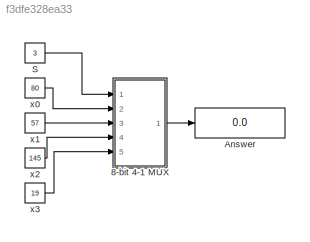
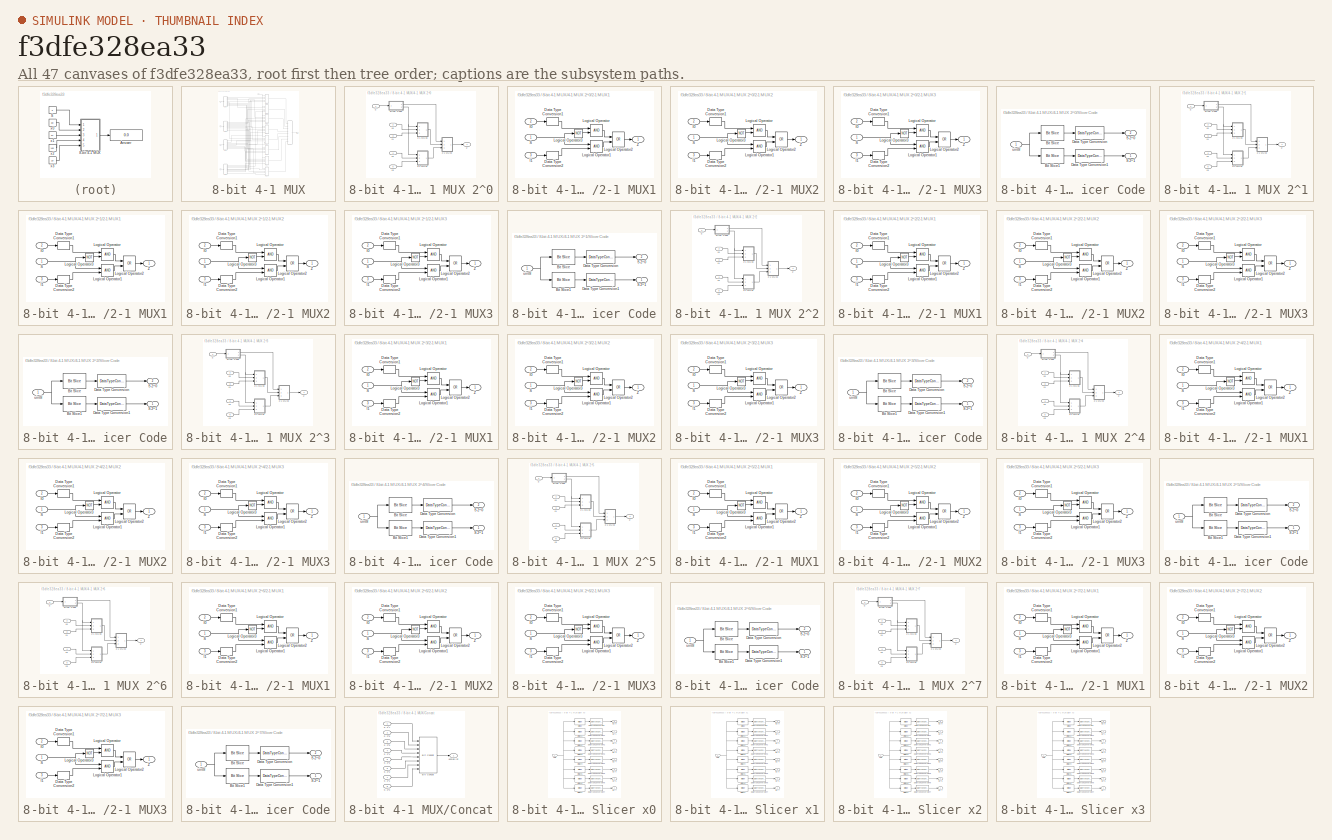
[diagram: thumbnail index - all 47 canvases of the model, root first then tree order]
MODEL slx_f3dfe328ea33
KIND model
CONFIG AbsTol = auto
CONFIG EnableMultiTasking = off
CONFIG FixedStep = 1
CONFIG MaxStep = auto
CONFIG MinStep = auto
CONFIG RelTol = 1e-3
CONFIG SampleTimeConstraint = Unconstrained
CONFIG Solver = FixedStepDiscrete
CONFIG SolverName = FixedStepDiscrete
CONFIG StartTime = 0.0
CONFIG StopTime = 10.0
BLOCK [SubSystem] 8-bit 4-1 MUX
  Ports = [5, 1]
  RequestExecContextInheritance = off
BLOCK [SubSystem] 8-bit 4-1 MUX/4-1 MUX 2^0
  Ports = [5, 1]
  RequestExecContextInheritance = off
BLOCK [SubSystem] 8-bit 4-1 MUX/4-1 MUX 2^0/2-1 MUX1
  Ports = [3, 1]
  RequestExecContextInheritance = off
BLOCK [DataTypeConversion] 8-bit 4-1 MUX/4-1 MUX 2^0/2-1 MUX1/Data Type Conversion1
  OutDataTypeStr = boolean
  RndMeth = Floor
  SaturateOnIntegerOverflow = off
BLOCK [DataTypeConversion] 8-bit 4-1 MUX/4-1 MUX 2^0/2-1 MUX1/Data Type Conversion2
  OutDataTypeStr = boolean
  RndMeth = Floor
  SaturateOnIntegerOverflow = off
BLOCK [Inport] 8-bit 4-1 MUX/4-1 MUX 2^0/2-1 MUX1/I0
  IconDisplay = Port number
  Port = 2
BLOCK [Inport] 8-bit 4-1 MUX/4-1 MUX 2^0/2-1 MUX1/I1
  IconDisplay = Port number
  Port = 3
BLOCK [Logic] 8-bit 4-1 MUX/4-1 MUX 2^0/2-1 MUX1/Logical Operator
  AllPortsSameDT = off
  OutDataTypeStr = boolean
  Ports = [2, 1]
BLOCK [Logic] 8-bit 4-1 MUX/4-1 MUX 2^0/2-1 MUX1/Logical Operator1
  AllPortsSameDT = off
  OutDataTypeStr = boolean
  Ports = [2, 1]
BLOCK [Logic] 8-bit 4-1 MUX/4-1 MUX 2^0/2-1 MUX1/Logical Operator2
  AllPortsSameDT = off
  Operator = OR
  OutDataTypeStr = boolean
  Ports = [2, 1]
BLOCK [Logic] 8-bit 4-1 MUX/4-1 MUX 2^0/2-1 MUX1/Logical Operator3
  AllPortsSameDT = off
  Operator = NOT
  OutDataTypeStr = boolean
  Ports = [1, 1]
BLOCK [Inport] 8-bit 4-1 MUX/4-1 MUX 2^0/2-1 MUX1/S
  IconDisplay = Port number
BLOCK [Outport] 8-bit 4-1 MUX/4-1 MUX 2^0/2-1 MUX1/Z
  IconDisplay = Port number
BLOCK [SubSystem] 8-bit 4-1 MUX/4-1 MUX 2^0/2-1 MUX2
  Ports = [3, 1]
  RequestExecContextInheritance = off
BLOCK [DataTypeConversion] 8-bit 4-1 MUX/4-1 MUX 2^0/2-1 MUX2/Data Type Conversion1
  OutDataTypeStr = boolean
  RndMeth = Floor
  SaturateOnIntegerOverflow = off
BLOCK [DataTypeConversion] 8-bit 4-1 MUX/4-1 MUX 2^0/2-1 MUX2/Data Type Conversion2
  OutDataTypeStr = boolean
  RndMeth = Floor
  SaturateOnIntegerOverflow = off
BLOCK [Inport] 8-bit 4-1 MUX/4-1 MUX 2^0/2-1 MUX2/I0
  IconDisplay = Port number
  Port = 2
BLOCK [Inport] 8-bit 4-1 MUX/4-1 MUX 2^0/2-1 MUX2/I1
  IconDisplay = Port number
  Port = 3
BLOCK [Logic] 8-bit 4-1 MUX/4-1 MUX 2^0/2-1 MUX2/Logical Operator
  AllPortsSameDT = off
  OutDataTypeStr = boolean
  Ports = [2, 1]
BLOCK [Logic] 8-bit 4-1 MUX/4-1 MUX 2^0/2-1 MUX2/Logical Operator1
  AllPortsSameDT = off
  OutDataTypeStr = boolean
  Ports = [2, 1]
BLOCK [Logic] 8-bit 4-1 MUX/4-1 MUX 2^0/2-1 MUX2/Logical Operator2
  AllPortsSameDT = off
  Operator = OR
  OutDataTypeStr = boolean
  Ports = [2, 1]
BLOCK [Logic] 8-bit 4-1 MUX/4-1 MUX 2^0/2-1 MUX2/Logical Operator3
  AllPortsSameDT = off
  Operator = NOT
  OutDataTypeStr = boolean
  Ports = [1, 1]
BLOCK [Inport] 8-bit 4-1 MUX/4-1 MUX 2^0/2-1 MUX2/S
  IconDisplay = Port number
BLOCK [Outport] 8-bit 4-1 MUX/4-1 MUX 2^0/2-1 MUX2/Z
  IconDisplay = Port number
BLOCK [SubSystem] 8-bit 4-1 MUX/4-1 MUX 2^0/2-1 MUX3
  Ports = [3, 1]
  RequestExecContextInheritance = off
BLOCK [DataTypeConversion] 8-bit 4-1 MUX/4-1 MUX 2^0/2-1 MUX3/Data Type Conversion1
  OutDataTypeStr = boolean
  RndMeth = Floor
  SaturateOnIntegerOverflow = off
BLOCK [DataTypeConversion] 8-bit 4-1 MUX/4-1 MUX 2^0/2-1 MUX3/Data Type Conversion2
  OutDataTypeStr = boolean
  RndMeth = Floor
  SaturateOnIntegerOverflow = off
BLOCK [Inport] 8-bit 4-1 MUX/4-1 MUX 2^0/2-1 MUX3/I0
  IconDisplay = Port number
  Port = 2
BLOCK [Inport] 8-bit 4-1 MUX/4-1 MUX 2^0/2-1 MUX3/I1
  IconDisplay = Port number
  Port = 3
BLOCK [Logic] 8-bit 4-1 MUX/4-1 MUX 2^0/2-1 MUX3/Logical Operator
  AllPortsSameDT = off
  OutDataTypeStr = boolean
  Ports = [2, 1]
BLOCK [Logic] 8-bit 4-1 MUX/4-1 MUX 2^0/2-1 MUX3/Logical Operator1
  AllPortsSameDT = off
  OutDataTypeStr = boolean
  Ports = [2, 1]
BLOCK [Logic] 8-bit 4-1 MUX/4-1 MUX 2^0/2-1 MUX3/Logical Operator2
  AllPortsSameDT = off
  Operator = OR
  OutDataTypeStr = boolean
  Ports = [2, 1]
BLOCK [Logic] 8-bit 4-1 MUX/4-1 MUX 2^0/2-1 MUX3/Logical Operator3
  AllPortsSameDT = off
  Operator = NOT
  OutDataTypeStr = boolean
  Ports = [1, 1]
BLOCK [Inport] 8-bit 4-1 MUX/4-1 MUX 2^0/2-1 MUX3/S
  IconDisplay = Port number
BLOCK [Outport] 8-bit 4-1 MUX/4-1 MUX 2^0/2-1 MUX3/Z
  IconDisplay = Port number
BLOCK [Inport] 8-bit 4-1 MUX/4-1 MUX 2^0/S
  IconDisplay = Port number
  OutDataTypeStr = uint8
BLOCK [SubSystem] 8-bit 4-1 MUX/4-1 MUX 2^0/Slicer Code
  Ports = [1, 2]
  RequestExecContextInheritance = off
BLOCK [Reference] 8-bit 4-1 MUX/4-1 MUX 2^0/Slicer Code/Bit Slice  REF=hdlsllib/Logic and Bit
Operations/Bit Slice
  Ports = [1, 1]
  SourceBlock = hdlsllib/Logic and Bit\nOperations/Bit Slice
  SourceProductBaseCode = HD
  SourceProductName = HDL Coder
  SourceType = Bit Slice
BLOCK [Reference] 8-bit 4-1 MUX/4-1 MUX 2^0/Slicer Code/Bit Slice1  REF=hdlsllib/Logic and Bit
Operations/Bit Slice
  Ports = [1, 1]
  SourceBlock = hdlsllib/Logic and Bit\nOperations/Bit Slice
  SourceProductBaseCode = HD
  SourceProductName = HDL Coder
  SourceType = Bit Slice
BLOCK [DataTypeConversion] 8-bit 4-1 MUX/4-1 MUX 2^0/Slicer Code/Data Type Conversion
  OutDataTypeStr = boolean
  RndMeth = Floor
  SaturateOnIntegerOverflow = off
BLOCK [DataTypeConversion] 8-bit 4-1 MUX/4-1 MUX 2^0/Slicer Code/Data Type Conversion1
  OutDataTypeStr = boolean
  RndMeth = Floor
  SaturateOnIntegerOverflow = off
BLOCK [Outport] 8-bit 4-1 MUX/4-1 MUX 2^0/Slicer Code/S 2^0 
  IconDisplay = Port number
  Port = 2
BLOCK [Outport] 8-bit 4-1 MUX/4-1 MUX 2^0/Slicer Code/S 2^1
  IconDisplay = Port number
BLOCK [Inport] 8-bit 4-1 MUX/4-1 MUX 2^0/Slicer Code/uint8
  IconDisplay = Port number
  OutDataTypeStr = uint8
  SampleTime = 1
BLOCK [Outport] 8-bit 4-1 MUX/4-1 MUX 2^0/Z
  IconDisplay = Port number
BLOCK [Inport] 8-bit 4-1 MUX/4-1 MUX 2^0/x0
  IconDisplay = Port number
  OutDataTypeStr = boolean
  Port = 2
BLOCK [Inport] 8-bit 4-1 MUX/4-1 MUX 2^0/x1
  IconDisplay = Port number
  OutDataTypeStr = boolean
  Port = 3
BLOCK [Inport] 8-bit 4-1 MUX/4-1 MUX 2^0/x2
  IconDisplay = Port number
  OutDataTypeStr = boolean
  Port = 4
BLOCK [Inport] 8-bit 4-1 MUX/4-1 MUX 2^0/x3
  IconDisplay = Port number
  OutDataTypeStr = boolean
  Port = 5
BLOCK [SubSystem] 8-bit 4-1 MUX/4-1 MUX 2^1
  Ports = [5, 1]
  RequestExecContextInheritance = off
BLOCK [SubSystem] 8-bit 4-1 MUX/4-1 MUX 2^1/2-1 MUX1
  Ports = [3, 1]
  RequestExecContextInheritance = off
BLOCK [DataTypeConversion] 8-bit 4-1 MUX/4-1 MUX 2^1/2-1 MUX1/Data Type Conversion1
  OutDataTypeStr = boolean
  RndMeth = Floor
  SaturateOnIntegerOverflow = off
BLOCK [DataTypeConversion] 8-bit 4-1 MUX/4-1 MUX 2^1/2-1 MUX1/Data Type Conversion2
  OutDataTypeStr = boolean
  RndMeth = Floor
  SaturateOnIntegerOverflow = off
BLOCK [Inport] 8-bit 4-1 MUX/4-1 MUX 2^1/2-1 MUX1/I0
  IconDisplay = Port number
  Port = 2
BLOCK [Inport] 8-bit 4-1 MUX/4-1 MUX 2^1/2-1 MUX1/I1
  IconDisplay = Port number
  Port = 3
BLOCK [Logic] 8-bit 4-1 MUX/4-1 MUX 2^1/2-1 MUX1/Logical Operator
  AllPortsSameDT = off
  OutDataTypeStr = boolean
  Ports = [2, 1]
BLOCK [Logic] 8-bit 4-1 MUX/4-1 MUX 2^1/2-1 MUX1/Logical Operator1
  AllPortsSameDT = off
  OutDataTypeStr = boolean
  Ports = [2, 1]
BLOCK [Logic] 8-bit 4-1 MUX/4-1 MUX 2^1/2-1 MUX1/Logical Operator2
  AllPortsSameDT = off
  Operator = OR
  OutDataTypeStr = boolean
  Ports = [2, 1]
BLOCK [Logic] 8-bit 4-1 MUX/4-1 MUX 2^1/2-1 MUX1/Logical Operator3
  AllPortsSameDT = off
  Operator = NOT
  OutDataTypeStr = boolean
  Ports = [1, 1]
BLOCK [Inport] 8-bit 4-1 MUX/4-1 MUX 2^1/2-1 MUX1/S
  IconDisplay = Port number
BLOCK [Outport] 8-bit 4-1 MUX/4-1 MUX 2^1/2-1 MUX1/Z
  IconDisplay = Port number
BLOCK [SubSystem] 8-bit 4-1 MUX/4-1 MUX 2^1/2-1 MUX2
  Ports = [3, 1]
  RequestExecContextInheritance = off
BLOCK [DataTypeConversion] 8-bit 4-1 MUX/4-1 MUX 2^1/2-1 MUX2/Data Type Conversion1
  OutDataTypeStr = boolean
  RndMeth = Floor
  SaturateOnIntegerOverflow = off
BLOCK [DataTypeConversion] 8-bit 4-1 MUX/4-1 MUX 2^1/2-1 MUX2/Data Type Conversion2
  OutDataTypeStr = boolean
  RndMeth = Floor
  SaturateOnIntegerOverflow = off
BLOCK [Inport] 8-bit 4-1 MUX/4-1 MUX 2^1/2-1 MUX2/I0
  IconDisplay = Port number
  Port = 2
BLOCK [Inport] 8-bit 4-1 MUX/4-1 MUX 2^1/2-1 MUX2/I1
  IconDisplay = Port number
  Port = 3
BLOCK [Logic] 8-bit 4-1 MUX/4-1 MUX 2^1/2-1 MUX2/Logical Operator
  AllPortsSameDT = off
  OutDataTypeStr = boolean
  Ports = [2, 1]
BLOCK [Logic] 8-bit 4-1 MUX/4-1 MUX 2^1/2-1 MUX2/Logical Operator1
  AllPortsSameDT = off
  OutDataTypeStr = boolean
  Ports = [2, 1]
BLOCK [Logic] 8-bit 4-1 MUX/4-1 MUX 2^1/2-1 MUX2/Logical Operator2
  AllPortsSameDT = off
  Operator = OR
  OutDataTypeStr = boolean
  Ports = [2, 1]
BLOCK [Logic] 8-bit 4-1 MUX/4-1 MUX 2^1/2-1 MUX2/Logical Operator3
  AllPortsSameDT = off
  Operator = NOT
  OutDataTypeStr = boolean
  Ports = [1, 1]
BLOCK [Inport] 8-bit 4-1 MUX/4-1 MUX 2^1/2-1 MUX2/S
  IconDisplay = Port number
BLOCK [Outport] 8-bit 4-1 MUX/4-1 MUX 2^1/2-1 MUX2/Z
  IconDisplay = Port number
BLOCK [SubSystem] 8-bit 4-1 MUX/4-1 MUX 2^1/2-1 MUX3
  Ports = [3, 1]
  RequestExecContextInheritance = off
BLOCK [DataTypeConversion] 8-bit 4-1 MUX/4-1 MUX 2^1/2-1 MUX3/Data Type Conversion1
  OutDataTypeStr = boolean
  RndMeth = Floor
  SaturateOnIntegerOverflow = off
BLOCK [DataTypeConversion] 8-bit 4-1 MUX/4-1 MUX 2^1/2-1 MUX3/Data Type Conversion2
  OutDataTypeStr = boolean
  RndMeth = Floor
  SaturateOnIntegerOverflow = off
BLOCK [Inport] 8-bit 4-1 MUX/4-1 MUX 2^1/2-1 MUX3/I0
  IconDisplay = Port number
  Port = 2
BLOCK [Inport] 8-bit 4-1 MUX/4-1 MUX 2^1/2-1 MUX3/I1
  IconDisplay = Port number
  Port = 3
BLOCK [Logic] 8-bit 4-1 MUX/4-1 MUX 2^1/2-1 MUX3/Logical Operator
  AllPortsSameDT = off
  OutDataTypeStr = boolean
  Ports = [2, 1]
BLOCK [Logic] 8-bit 4-1 MUX/4-1 MUX 2^1/2-1 MUX3/Logical Operator1
  AllPortsSameDT = off
  OutDataTypeStr = boolean
  Ports = [2, 1]
BLOCK [Logic] 8-bit 4-1 MUX/4-1 MUX 2^1/2-1 MUX3/Logical Operator2
  AllPortsSameDT = off
  Operator = OR
  OutDataTypeStr = boolean
  Ports = [2, 1]
BLOCK [Logic] 8-bit 4-1 MUX/4-1 MUX 2^1/2-1 MUX3/Logical Operator3
  AllPortsSameDT = off
  Operator = NOT
  OutDataTypeStr = boolean
  Ports = [1, 1]
BLOCK [Inport] 8-bit 4-1 MUX/4-1 MUX 2^1/2-1 MUX3/S
  IconDisplay = Port number
BLOCK [Outport] 8-bit 4-1 MUX/4-1 MUX 2^1/2-1 MUX3/Z
  IconDisplay = Port number
BLOCK [Inport] 8-bit 4-1 MUX/4-1 MUX 2^1/S
  IconDisplay = Port number
  OutDataTypeStr = uint8
BLOCK [SubSystem] 8-bit 4-1 MUX/4-1 MUX 2^1/Slicer Code
  Ports = [1, 2]
  RequestExecContextInheritance = off
BLOCK [Reference] 8-bit 4-1 MUX/4-1 MUX 2^1/Slicer Code/Bit Slice  REF=hdlsllib/Logic and Bit
Operations/Bit Slice
  Ports = [1, 1]
  SourceBlock = hdlsllib/Logic and Bit\nOperations/Bit Slice
  SourceProductBaseCode = HD
  SourceProductName = HDL Coder
  SourceType = Bit Slice
BLOCK [Reference] 8-bit 4-1 MUX/4-1 MUX 2^1/Slicer Code/Bit Slice1  REF=hdlsllib/Logic and Bit
Operations/Bit Slice
  Ports = [1, 1]
  SourceBlock = hdlsllib/Logic and Bit\nOperations/Bit Slice
  SourceProductBaseCode = HD
  SourceProductName = HDL Coder
  SourceType = Bit Slice
BLOCK [DataTypeConversion] 8-bit 4-1 MUX/4-1 MUX 2^1/Slicer Code/Data Type Conversion
  OutDataTypeStr = boolean
  RndMeth = Floor
  SaturateOnIntegerOverflow = off
BLOCK [DataTypeConversion] 8-bit 4-1 MUX/4-1 MUX 2^1/Slicer Code/Data Type Conversion1
  OutDataTypeStr = boolean
  RndMeth = Floor
  SaturateOnIntegerOverflow = off
BLOCK [Outport] 8-bit 4-1 MUX/4-1 MUX 2^1/Slicer Code/S 2^0 
  IconDisplay = Port number
  Port = 2
BLOCK [Outport] 8-bit 4-1 MUX/4-1 MUX 2^1/Slicer Code/S 2^1
  IconDisplay = Port number
BLOCK [Inport] 8-bit 4-1 MUX/4-1 MUX 2^1/Slicer Code/uint8
  IconDisplay = Port number
  OutDataTypeStr = uint8
  SampleTime = 1
BLOCK [Outport] 8-bit 4-1 MUX/4-1 MUX 2^1/Z
  IconDisplay = Port number
BLOCK [Inport] 8-bit 4-1 MUX/4-1 MUX 2^1/x0
  IconDisplay = Port number
  OutDataTypeStr = boolean
  Port = 2
BLOCK [Inport] 8-bit 4-1 MUX/4-1 MUX 2^1/x1
  IconDisplay = Port number
  OutDataTypeStr = boolean
  Port = 3
BLOCK [Inport] 8-bit 4-1 MUX/4-1 MUX 2^1/x2
  IconDisplay = Port number
  OutDataTypeStr = boolean
  Port = 4
BLOCK [Inport] 8-bit 4-1 MUX/4-1 MUX 2^1/x3
  IconDisplay = Port number
  OutDataTypeStr = boolean
  Port = 5
BLOCK [SubSystem] 8-bit 4-1 MUX/4-1 MUX 2^2
  Ports = [5, 1]
  RequestExecContextInheritance = off
BLOCK [SubSystem] 8-bit 4-1 MUX/4-1 MUX 2^2/2-1 MUX1
  Ports = [3, 1]
  RequestExecContextInheritance = off
BLOCK [DataTypeConversion] 8-bit 4-1 MUX/4-1 MUX 2^2/2-1 MUX1/Data Type Conversion1
  OutDataTypeStr = boolean
  RndMeth = Floor
  SaturateOnIntegerOverflow = off
BLOCK [DataTypeConversion] 8-bit 4-1 MUX/4-1 MUX 2^2/2-1 MUX1/Data Type Conversion2
  OutDataTypeStr = boolean
  RndMeth = Floor
  SaturateOnIntegerOverflow = off
BLOCK [Inport] 8-bit 4-1 MUX/4-1 MUX 2^2/2-1 MUX1/I0
  IconDisplay = Port number
  Port = 2
BLOCK [Inport] 8-bit 4-1 MUX/4-1 MUX 2^2/2-1 MUX1/I1
  IconDisplay = Port number
  Port = 3
BLOCK [Logic] 8-bit 4-1 MUX/4-1 MUX 2^2/2-1 MUX1/Logical Operator
  AllPortsSameDT = off
  OutDataTypeStr = boolean
  Ports = [2, 1]
BLOCK [Logic] 8-bit 4-1 MUX/4-1 MUX 2^2/2-1 MUX1/Logical Operator1
  AllPortsSameDT = off
  OutDataTypeStr = boolean
  Ports = [2, 1]
BLOCK [Logic] 8-bit 4-1 MUX/4-1 MUX 2^2/2-1 MUX1/Logical Operator2
  AllPortsSameDT = off
  Operator = OR
  OutDataTypeStr = boolean
  Ports = [2, 1]
BLOCK [Logic] 8-bit 4-1 MUX/4-1 MUX 2^2/2-1 MUX1/Logical Operator3
  AllPortsSameDT = off
  Operator = NOT
  OutDataTypeStr = boolean
  Ports = [1, 1]
BLOCK [Inport] 8-bit 4-1 MUX/4-1 MUX 2^2/2-1 MUX1/S
  IconDisplay = Port number
BLOCK [Outport] 8-bit 4-1 MUX/4-1 MUX 2^2/2-1 MUX1/Z
  IconDisplay = Port number
BLOCK [SubSystem] 8-bit 4-1 MUX/4-1 MUX 2^2/2-1 MUX2
  Ports = [3, 1]
  RequestExecContextInheritance = off
BLOCK [DataTypeConversion] 8-bit 4-1 MUX/4-1 MUX 2^2/2-1 MUX2/Data Type Conversion1
  OutDataTypeStr = boolean
  RndMeth = Floor
  SaturateOnIntegerOverflow = off
BLOCK [DataTypeConversion] 8-bit 4-1 MUX/4-1 MUX 2^2/2-1 MUX2/Data Type Conversion2
  OutDataTypeStr = boolean
  RndMeth = Floor
  SaturateOnIntegerOverflow = off
BLOCK [Inport] 8-bit 4-1 MUX/4-1 MUX 2^2/2-1 MUX2/I0
  IconDisplay = Port number
  Port = 2
BLOCK [Inport] 8-bit 4-1 MUX/4-1 MUX 2^2/2-1 MUX2/I1
  IconDisplay = Port number
  Port = 3
BLOCK [Logic] 8-bit 4-1 MUX/4-1 MUX 2^2/2-1 MUX2/Logical Operator
  AllPortsSameDT = off
  OutDataTypeStr = boolean
  Ports = [2, 1]
BLOCK [Logic] 8-bit 4-1 MUX/4-1 MUX 2^2/2-1 MUX2/Logical Operator1
  AllPortsSameDT = off
  OutDataTypeStr = boolean
  Ports = [2, 1]
BLOCK [Logic] 8-bit 4-1 MUX/4-1 MUX 2^2/2-1 MUX2/Logical Operator2
  AllPortsSameDT = off
  Operator = OR
  OutDataTypeStr = boolean
  Ports = [2, 1]
BLOCK [Logic] 8-bit 4-1 MUX/4-1 MUX 2^2/2-1 MUX2/Logical Operator3
  AllPortsSameDT = off
  Operator = NOT
  OutDataTypeStr = boolean
  Ports = [1, 1]
BLOCK [Inport] 8-bit 4-1 MUX/4-1 MUX 2^2/2-1 MUX2/S
  IconDisplay = Port number
BLOCK [Outport] 8-bit 4-1 MUX/4-1 MUX 2^2/2-1 MUX2/Z
  IconDisplay = Port number
BLOCK [SubSystem] 8-bit 4-1 MUX/4-1 MUX 2^2/2-1 MUX3
  Ports = [3, 1]
  RequestExecContextInheritance = off
BLOCK [DataTypeConversion] 8-bit 4-1 MUX/4-1 MUX 2^2/2-1 MUX3/Data Type Conversion1
  OutDataTypeStr = boolean
  RndMeth = Floor
  SaturateOnIntegerOverflow = off
BLOCK [DataTypeConversion] 8-bit 4-1 MUX/4-1 MUX 2^2/2-1 MUX3/Data Type Conversion2
  OutDataTypeStr = boolean
  RndMeth = Floor
  SaturateOnIntegerOverflow = off
BLOCK [Inport] 8-bit 4-1 MUX/4-1 MUX 2^2/2-1 MUX3/I0
  IconDisplay = Port number
  Port = 2
BLOCK [Inport] 8-bit 4-1 MUX/4-1 MUX 2^2/2-1 MUX3/I1
  IconDisplay = Port number
  Port = 3
BLOCK [Logic] 8-bit 4-1 MUX/4-1 MUX 2^2/2-1 MUX3/Logical Operator
  AllPortsSameDT = off
  OutDataTypeStr = boolean
  Ports = [2, 1]
BLOCK [Logic] 8-bit 4-1 MUX/4-1 MUX 2^2/2-1 MUX3/Logical Operator1
  AllPortsSameDT = off
  OutDataTypeStr = boolean
  Ports = [2, 1]
BLOCK [Logic] 8-bit 4-1 MUX/4-1 MUX 2^2/2-1 MUX3/Logical Operator2
  AllPortsSameDT = off
  Operator = OR
  OutDataTypeStr = boolean
  Ports = [2, 1]
BLOCK [Logic] 8-bit 4-1 MUX/4-1 MUX 2^2/2-1 MUX3/Logical Operator3
  AllPortsSameDT = off
  Operator = NOT
  OutDataTypeStr = boolean
  Ports = [1, 1]
BLOCK [Inport] 8-bit 4-1 MUX/4-1 MUX 2^2/2-1 MUX3/S
  IconDisplay = Port number
BLOCK [Outport] 8-bit 4-1 MUX/4-1 MUX 2^2/2-1 MUX3/Z
  IconDisplay = Port number
BLOCK [Inport] 8-bit 4-1 MUX/4-1 MUX 2^2/S
  IconDisplay = Port number
  OutDataTypeStr = uint8
BLOCK [SubSystem] 8-bit 4-1 MUX/4-1 MUX 2^2/Slicer Code
  Ports = [1, 2]
  RequestExecContextInheritance = off
BLOCK [Reference] 8-bit 4-1 MUX/4-1 MUX 2^2/Slicer Code/Bit Slice  REF=hdlsllib/Logic and Bit
Operations/Bit Slice
  Ports = [1, 1]
  SourceBlock = hdlsllib/Logic and Bit\nOperations/Bit Slice
  SourceProductBaseCode = HD
  SourceProductName = HDL Coder
  SourceType = Bit Slice
BLOCK [Reference] 8-bit 4-1 MUX/4-1 MUX 2^2/Slicer Code/Bit Slice1  REF=hdlsllib/Logic and Bit
Operations/Bit Slice
  Ports = [1, 1]
  SourceBlock = hdlsllib/Logic and Bit\nOperations/Bit Slice
  SourceProductBaseCode = HD
  SourceProductName = HDL Coder
  SourceType = Bit Slice
BLOCK [DataTypeConversion] 8-bit 4-1 MUX/4-1 MUX 2^2/Slicer Code/Data Type Conversion
  OutDataTypeStr = boolean
  RndMeth = Floor
  SaturateOnIntegerOverflow = off
BLOCK [DataTypeConversion] 8-bit 4-1 MUX/4-1 MUX 2^2/Slicer Code/Data Type Conversion1
  OutDataTypeStr = boolean
  RndMeth = Floor
  SaturateOnIntegerOverflow = off
BLOCK [Outport] 8-bit 4-1 MUX/4-1 MUX 2^2/Slicer Code/S 2^0 
  IconDisplay = Port number
  Port = 2
BLOCK [Outport] 8-bit 4-1 MUX/4-1 MUX 2^2/Slicer Code/S 2^1
  IconDisplay = Port number
BLOCK [Inport] 8-bit 4-1 MUX/4-1 MUX 2^2/Slicer Code/uint8
  IconDisplay = Port number
  OutDataTypeStr = uint8
  SampleTime = 1
BLOCK [Outport] 8-bit 4-1 MUX/4-1 MUX 2^2/Z
  IconDisplay = Port number
BLOCK [Inport] 8-bit 4-1 MUX/4-1 MUX 2^2/x0
  IconDisplay = Port number
  OutDataTypeStr = boolean
  Port = 2
BLOCK [Inport] 8-bit 4-1 MUX/4-1 MUX 2^2/x1
  IconDisplay = Port number
  OutDataTypeStr = boolean
  Port = 3
BLOCK [Inport] 8-bit 4-1 MUX/4-1 MUX 2^2/x2
  IconDisplay = Port number
  OutDataTypeStr = boolean
  Port = 4
BLOCK [Inport] 8-bit 4-1 MUX/4-1 MUX 2^2/x3
  IconDisplay = Port number
  OutDataTypeStr = boolean
  Port = 5
BLOCK [SubSystem] 8-bit 4-1 MUX/4-1 MUX 2^3
  Ports = [5, 1]
  RequestExecContextInheritance = off
BLOCK [SubSystem] 8-bit 4-1 MUX/4-1 MUX 2^3/2-1 MUX1
  Ports = [3, 1]
  RequestExecContextInheritance = off
BLOCK [DataTypeConversion] 8-bit 4-1 MUX/4-1 MUX 2^3/2-1 MUX1/Data Type Conversion1
  OutDataTypeStr = boolean
  RndMeth = Floor
  SaturateOnIntegerOverflow = off
BLOCK [DataTypeConversion] 8-bit 4-1 MUX/4-1 MUX 2^3/2-1 MUX1/Data Type Conversion2
  OutDataTypeStr = boolean
  RndMeth = Floor
  SaturateOnIntegerOverflow = off
BLOCK [Inport] 8-bit 4-1 MUX/4-1 MUX 2^3/2-1 MUX1/I0
  IconDisplay = Port number
  Port = 2
BLOCK [Inport] 8-bit 4-1 MUX/4-1 MUX 2^3/2-1 MUX1/I1
  IconDisplay = Port number
  Port = 3
BLOCK [Logic] 8-bit 4-1 MUX/4-1 MUX 2^3/2-1 MUX1/Logical Operator
  AllPortsSameDT = off
  OutDataTypeStr = boolean
  Ports = [2, 1]
BLOCK [Logic] 8-bit 4-1 MUX/4-1 MUX 2^3/2-1 MUX1/Logical Operator1
  AllPortsSameDT = off
  OutDataTypeStr = boolean
  Ports = [2, 1]
BLOCK [Logic] 8-bit 4-1 MUX/4-1 MUX 2^3/2-1 MUX1/Logical Operator2
  AllPortsSameDT = off
  Operator = OR
  OutDataTypeStr = boolean
  Ports = [2, 1]
BLOCK [Logic] 8-bit 4-1 MUX/4-1 MUX 2^3/2-1 MUX1/Logical Operator3
  AllPortsSameDT = off
  Operator = NOT
  OutDataTypeStr = boolean
  Ports = [1, 1]
BLOCK [Inport] 8-bit 4-1 MUX/4-1 MUX 2^3/2-1 MUX1/S
  IconDisplay = Port number
BLOCK [Outport] 8-bit 4-1 MUX/4-1 MUX 2^3/2-1 MUX1/Z
  IconDisplay = Port number
BLOCK [SubSystem] 8-bit 4-1 MUX/4-1 MUX 2^3/2-1 MUX2
  Ports = [3, 1]
  RequestExecContextInheritance = off
BLOCK [DataTypeConversion] 8-bit 4-1 MUX/4-1 MUX 2^3/2-1 MUX2/Data Type Conversion1
  OutDataTypeStr = boolean
  RndMeth = Floor
  SaturateOnIntegerOverflow = off
BLOCK [DataTypeConversion] 8-bit 4-1 MUX/4-1 MUX 2^3/2-1 MUX2/Data Type Conversion2
  OutDataTypeStr = boolean
  RndMeth = Floor
  SaturateOnIntegerOverflow = off
BLOCK [Inport] 8-bit 4-1 MUX/4-1 MUX 2^3/2-1 MUX2/I0
  IconDisplay = Port number
  Port = 2
BLOCK [Inport] 8-bit 4-1 MUX/4-1 MUX 2^3/2-1 MUX2/I1
  IconDisplay = Port number
  Port = 3
BLOCK [Logic] 8-bit 4-1 MUX/4-1 MUX 2^3/2-1 MUX2/Logical Operator
  AllPortsSameDT = off
  OutDataTypeStr = boolean
  Ports = [2, 1]
BLOCK [Logic] 8-bit 4-1 MUX/4-1 MUX 2^3/2-1 MUX2/Logical Operator1
  AllPortsSameDT = off
  OutDataTypeStr = boolean
  Ports = [2, 1]
BLOCK [Logic] 8-bit 4-1 MUX/4-1 MUX 2^3/2-1 MUX2/Logical Operator2
  AllPortsSameDT = off
  Operator = OR
  OutDataTypeStr = boolean
  Ports = [2, 1]
BLOCK [Logic] 8-bit 4-1 MUX/4-1 MUX 2^3/2-1 MUX2/Logical Operator3
  AllPortsSameDT = off
  Operator = NOT
  OutDataTypeStr = boolean
  Ports = [1, 1]
BLOCK [Inport] 8-bit 4-1 MUX/4-1 MUX 2^3/2-1 MUX2/S
  IconDisplay = Port number
BLOCK [Outport] 8-bit 4-1 MUX/4-1 MUX 2^3/2-1 MUX2/Z
  IconDisplay = Port number
BLOCK [SubSystem] 8-bit 4-1 MUX/4-1 MUX 2^3/2-1 MUX3
  Ports = [3, 1]
  RequestExecContextInheritance = off
BLOCK [DataTypeConversion] 8-bit 4-1 MUX/4-1 MUX 2^3/2-1 MUX3/Data Type Conversion1
  OutDataTypeStr = boolean
  RndMeth = Floor
  SaturateOnIntegerOverflow = off
BLOCK [DataTypeConversion] 8-bit 4-1 MUX/4-1 MUX 2^3/2-1 MUX3/Data Type Conversion2
  OutDataTypeStr = boolean
  RndMeth = Floor
  SaturateOnIntegerOverflow = off
BLOCK [Inport] 8-bit 4-1 MUX/4-1 MUX 2^3/2-1 MUX3/I0
  IconDisplay = Port number
  Port = 2
BLOCK [Inport] 8-bit 4-1 MUX/4-1 MUX 2^3/2-1 MUX3/I1
  IconDisplay = Port number
  Port = 3
BLOCK [Logic] 8-bit 4-1 MUX/4-1 MUX 2^3/2-1 MUX3/Logical Operator
  AllPortsSameDT = off
  OutDataTypeStr = boolean
  Ports = [2, 1]
BLOCK [Logic] 8-bit 4-1 MUX/4-1 MUX 2^3/2-1 MUX3/Logical Operator1
  AllPortsSameDT = off
  OutDataTypeStr = boolean
  Ports = [2, 1]
BLOCK [Logic] 8-bit 4-1 MUX/4-1 MUX 2^3/2-1 MUX3/Logical Operator2
  AllPortsSameDT = off
  Operator = OR
  OutDataTypeStr = boolean
  Ports = [2, 1]
BLOCK [Logic] 8-bit 4-1 MUX/4-1 MUX 2^3/2-1 MUX3/Logical Operator3
  AllPortsSameDT = off
  Operator = NOT
  OutDataTypeStr = boolean
  Ports = [1, 1]
BLOCK [Inport] 8-bit 4-1 MUX/4-1 MUX 2^3/2-1 MUX3/S
  IconDisplay = Port number
BLOCK [Outport] 8-bit 4-1 MUX/4-1 MUX 2^3/2-1 MUX3/Z
  IconDisplay = Port number
BLOCK [Inport] 8-bit 4-1 MUX/4-1 MUX 2^3/S
  IconDisplay = Port number
  OutDataTypeStr = uint8
BLOCK [SubSystem] 8-bit 4-1 MUX/4-1 MUX 2^3/Slicer Code
  Ports = [1, 2]
  RequestExecContextInheritance = off
BLOCK [Reference] 8-bit 4-1 MUX/4-1 MUX 2^3/Slicer Code/Bit Slice  REF=hdlsllib/Logic and Bit
Operations/Bit Slice
  Ports = [1, 1]
  SourceBlock = hdlsllib/Logic and Bit\nOperations/Bit Slice
  SourceProductBaseCode = HD
  SourceProductName = HDL Coder
  SourceType = Bit Slice
BLOCK [Reference] 8-bit 4-1 MUX/4-1 MUX 2^3/Slicer Code/Bit Slice1  REF=hdlsllib/Logic and Bit
Operations/Bit Slice
  Ports = [1, 1]
  SourceBlock = hdlsllib/Logic and Bit\nOperations/Bit Slice
  SourceProductBaseCode = HD
  SourceProductName = HDL Coder
  SourceType = Bit Slice
BLOCK [DataTypeConversion] 8-bit 4-1 MUX/4-1 MUX 2^3/Slicer Code/Data Type Conversion
  OutDataTypeStr = boolean
  RndMeth = Floor
  SaturateOnIntegerOverflow = off
BLOCK [DataTypeConversion] 8-bit 4-1 MUX/4-1 MUX 2^3/Slicer Code/Data Type Conversion1
  OutDataTypeStr = boolean
  RndMeth = Floor
  SaturateOnIntegerOverflow = off
BLOCK [Outport] 8-bit 4-1 MUX/4-1 MUX 2^3/Slicer Code/S 2^0 
  IconDisplay = Port number
  Port = 2
BLOCK [Outport] 8-bit 4-1 MUX/4-1 MUX 2^3/Slicer Code/S 2^1
  IconDisplay = Port number
BLOCK [Inport] 8-bit 4-1 MUX/4-1 MUX 2^3/Slicer Code/uint8
  IconDisplay = Port number
  OutDataTypeStr = uint8
  SampleTime = 1
BLOCK [Outport] 8-bit 4-1 MUX/4-1 MUX 2^3/Z
  IconDisplay = Port number
BLOCK [Inport] 8-bit 4-1 MUX/4-1 MUX 2^3/x0
  IconDisplay = Port number
  OutDataTypeStr = boolean
  Port = 2
BLOCK [Inport] 8-bit 4-1 MUX/4-1 MUX 2^3/x1
  IconDisplay = Port number
  OutDataTypeStr = boolean
  Port = 3
BLOCK [Inport] 8-bit 4-1 MUX/4-1 MUX 2^3/x2
  IconDisplay = Port number
  OutDataTypeStr = boolean
  Port = 4
BLOCK [Inport] 8-bit 4-1 MUX/4-1 MUX 2^3/x3
  IconDisplay = Port number
  OutDataTypeStr = boolean
  Port = 5
BLOCK [SubSystem] 8-bit 4-1 MUX/4-1 MUX 2^4
  Ports = [5, 1]
  RequestExecContextInheritance = off
BLOCK [SubSystem] 8-bit 4-1 MUX/4-1 MUX 2^4/2-1 MUX1
  Ports = [3, 1]
  RequestExecContextInheritance = off
BLOCK [DataTypeConversion] 8-bit 4-1 MUX/4-1 MUX 2^4/2-1 MUX1/Data Type Conversion1
  OutDataTypeStr = boolean
  RndMeth = Floor
  SaturateOnIntegerOverflow = off
BLOCK [DataTypeConversion] 8-bit 4-1 MUX/4-1 MUX 2^4/2-1 MUX1/Data Type Conversion2
  OutDataTypeStr = boolean
  RndMeth = Floor
  SaturateOnIntegerOverflow = off
BLOCK [Inport] 8-bit 4-1 MUX/4-1 MUX 2^4/2-1 MUX1/I0
  IconDisplay = Port number
  Port = 2
BLOCK [Inport] 8-bit 4-1 MUX/4-1 MUX 2^4/2-1 MUX1/I1
  IconDisplay = Port number
  Port = 3
BLOCK [Logic] 8-bit 4-1 MUX/4-1 MUX 2^4/2-1 MUX1/Logical Operator
  AllPortsSameDT = off
  OutDataTypeStr = boolean
  Ports = [2, 1]
BLOCK [Logic] 8-bit 4-1 MUX/4-1 MUX 2^4/2-1 MUX1/Logical Operator1
  AllPortsSameDT = off
  OutDataTypeStr = boolean
  Ports = [2, 1]
BLOCK [Logic] 8-bit 4-1 MUX/4-1 MUX 2^4/2-1 MUX1/Logical Operator2
  AllPortsSameDT = off
  Operator = OR
  OutDataTypeStr = boolean
  Ports = [2, 1]
BLOCK [Logic] 8-bit 4-1 MUX/4-1 MUX 2^4/2-1 MUX1/Logical Operator3
  AllPortsSameDT = off
  Operator = NOT
  OutDataTypeStr = boolean
  Ports = [1, 1]
BLOCK [Inport] 8-bit 4-1 MUX/4-1 MUX 2^4/2-1 MUX1/S
  IconDisplay = Port number
BLOCK [Outport] 8-bit 4-1 MUX/4-1 MUX 2^4/2-1 MUX1/Z
  IconDisplay = Port number
BLOCK [SubSystem] 8-bit 4-1 MUX/4-1 MUX 2^4/2-1 MUX2
  Ports = [3, 1]
  RequestExecContextInheritance = off
BLOCK [DataTypeConversion] 8-bit 4-1 MUX/4-1 MUX 2^4/2-1 MUX2/Data Type Conversion1
  OutDataTypeStr = boolean
  RndMeth = Floor
  SaturateOnIntegerOverflow = off
BLOCK [DataTypeConversion] 8-bit 4-1 MUX/4-1 MUX 2^4/2-1 MUX2/Data Type Conversion2
  OutDataTypeStr = boolean
  RndMeth = Floor
  SaturateOnIntegerOverflow = off
BLOCK [Inport] 8-bit 4-1 MUX/4-1 MUX 2^4/2-1 MUX2/I0
  IconDisplay = Port number
  Port = 2
BLOCK [Inport] 8-bit 4-1 MUX/4-1 MUX 2^4/2-1 MUX2/I1
  IconDisplay = Port number
  Port = 3
BLOCK [Logic] 8-bit 4-1 MUX/4-1 MUX 2^4/2-1 MUX2/Logical Operator
  AllPortsSameDT = off
  OutDataTypeStr = boolean
  Ports = [2, 1]
BLOCK [Logic] 8-bit 4-1 MUX/4-1 MUX 2^4/2-1 MUX2/Logical Operator1
  AllPortsSameDT = off
  OutDataTypeStr = boolean
  Ports = [2, 1]
BLOCK [Logic] 8-bit 4-1 MUX/4-1 MUX 2^4/2-1 MUX2/Logical Operator2
  AllPortsSameDT = off
  Operator = OR
  OutDataTypeStr = boolean
  Ports = [2, 1]
BLOCK [Logic] 8-bit 4-1 MUX/4-1 MUX 2^4/2-1 MUX2/Logical Operator3
  AllPortsSameDT = off
  Operator = NOT
  OutDataTypeStr = boolean
  Ports = [1, 1]
BLOCK [Inport] 8-bit 4-1 MUX/4-1 MUX 2^4/2-1 MUX2/S
  IconDisplay = Port number
BLOCK [Outport] 8-bit 4-1 MUX/4-1 MUX 2^4/2-1 MUX2/Z
  IconDisplay = Port number
BLOCK [SubSystem] 8-bit 4-1 MUX/4-1 MUX 2^4/2-1 MUX3
  Ports = [3, 1]
  RequestExecContextInheritance = off
BLOCK [DataTypeConversion] 8-bit 4-1 MUX/4-1 MUX 2^4/2-1 MUX3/Data Type Conversion1
  OutDataTypeStr = boolean
  RndMeth = Floor
  SaturateOnIntegerOverflow = off
BLOCK [DataTypeConversion] 8-bit 4-1 MUX/4-1 MUX 2^4/2-1 MUX3/Data Type Conversion2
  OutDataTypeStr = boolean
  RndMeth = Floor
  SaturateOnIntegerOverflow = off
BLOCK [Inport] 8-bit 4-1 MUX/4-1 MUX 2^4/2-1 MUX3/I0
  IconDisplay = Port number
  Port = 2
BLOCK [Inport] 8-bit 4-1 MUX/4-1 MUX 2^4/2-1 MUX3/I1
  IconDisplay = Port number
  Port = 3
BLOCK [Logic] 8-bit 4-1 MUX/4-1 MUX 2^4/2-1 MUX3/Logical Operator
  AllPortsSameDT = off
  OutDataTypeStr = boolean
  Ports = [2, 1]
BLOCK [Logic] 8-bit 4-1 MUX/4-1 MUX 2^4/2-1 MUX3/Logical Operator1
  AllPortsSameDT = off
  OutDataTypeStr = boolean
  Ports = [2, 1]
BLOCK [Logic] 8-bit 4-1 MUX/4-1 MUX 2^4/2-1 MUX3/Logical Operator2
  AllPortsSameDT = off
  Operator = OR
  OutDataTypeStr = boolean
  Ports = [2, 1]
BLOCK [Logic] 8-bit 4-1 MUX/4-1 MUX 2^4/2-1 MUX3/Logical Operator3
  AllPortsSameDT = off
  Operator = NOT
  OutDataTypeStr = boolean
  Ports = [1, 1]
BLOCK [Inport] 8-bit 4-1 MUX/4-1 MUX 2^4/2-1 MUX3/S
  IconDisplay = Port number
BLOCK [Outport] 8-bit 4-1 MUX/4-1 MUX 2^4/2-1 MUX3/Z
  IconDisplay = Port number
BLOCK [Inport] 8-bit 4-1 MUX/4-1 MUX 2^4/S
  IconDisplay = Port number
  OutDataTypeStr = uint8
BLOCK [SubSystem] 8-bit 4-1 MUX/4-1 MUX 2^4/Slicer Code
  Ports = [1, 2]
  RequestExecContextInheritance = off
BLOCK [Reference] 8-bit 4-1 MUX/4-1 MUX 2^4/Slicer Code/Bit Slice  REF=hdlsllib/Logic and Bit
Operations/Bit Slice
  Ports = [1, 1]
  SourceBlock = hdlsllib/Logic and Bit\nOperations/Bit Slice
  SourceProductBaseCode = HD
  SourceProductName = HDL Coder
  SourceType = Bit Slice
BLOCK [Reference] 8-bit 4-1 MUX/4-1 MUX 2^4/Slicer Code/Bit Slice1  REF=hdlsllib/Logic and Bit
Operations/Bit Slice
  Ports = [1, 1]
  SourceBlock = hdlsllib/Logic and Bit\nOperations/Bit Slice
  SourceProductBaseCode = HD
  SourceProductName = HDL Coder
  SourceType = Bit Slice
BLOCK [DataTypeConversion] 8-bit 4-1 MUX/4-1 MUX 2^4/Slicer Code/Data Type Conversion
  OutDataTypeStr = boolean
  RndMeth = Floor
  SaturateOnIntegerOverflow = off
BLOCK [DataTypeConversion] 8-bit 4-1 MUX/4-1 MUX 2^4/Slicer Code/Data Type Conversion1
  OutDataTypeStr = boolean
  RndMeth = Floor
  SaturateOnIntegerOverflow = off
BLOCK [Outport] 8-bit 4-1 MUX/4-1 MUX 2^4/Slicer Code/S 2^0 
  IconDisplay = Port number
  Port = 2
BLOCK [Outport] 8-bit 4-1 MUX/4-1 MUX 2^4/Slicer Code/S 2^1
  IconDisplay = Port number
BLOCK [Inport] 8-bit 4-1 MUX/4-1 MUX 2^4/Slicer Code/uint8
  IconDisplay = Port number
  OutDataTypeStr = uint8
  SampleTime = 1
BLOCK [Outport] 8-bit 4-1 MUX/4-1 MUX 2^4/Z
  IconDisplay = Port number
BLOCK [Inport] 8-bit 4-1 MUX/4-1 MUX 2^4/x0
  IconDisplay = Port number
  OutDataTypeStr = boolean
  Port = 2
BLOCK [Inport] 8-bit 4-1 MUX/4-1 MUX 2^4/x1
  IconDisplay = Port number
  OutDataTypeStr = boolean
  Port = 3
BLOCK [Inport] 8-bit 4-1 MUX/4-1 MUX 2^4/x2
  IconDisplay = Port number
  OutDataTypeStr = boolean
  Port = 4
BLOCK [Inport] 8-bit 4-1 MUX/4-1 MUX 2^4/x3
  IconDisplay = Port number
  OutDataTypeStr = boolean
  Port = 5
BLOCK [SubSystem] 8-bit 4-1 MUX/4-1 MUX 2^5
  Ports = [5, 1]
  RequestExecContextInheritance = off
BLOCK [SubSystem] 8-bit 4-1 MUX/4-1 MUX 2^5/2-1 MUX1
  Ports = [3, 1]
  RequestExecContextInheritance = off
BLOCK [DataTypeConversion] 8-bit 4-1 MUX/4-1 MUX 2^5/2-1 MUX1/Data Type Conversion1
  OutDataTypeStr = boolean
  RndMeth = Floor
  SaturateOnIntegerOverflow = off
BLOCK [DataTypeConversion] 8-bit 4-1 MUX/4-1 MUX 2^5/2-1 MUX1/Data Type Conversion2
  OutDataTypeStr = boolean
  RndMeth = Floor
  SaturateOnIntegerOverflow = off
BLOCK [Inport] 8-bit 4-1 MUX/4-1 MUX 2^5/2-1 MUX1/I0
  IconDisplay = Port number
  Port = 2
BLOCK [Inport] 8-bit 4-1 MUX/4-1 MUX 2^5/2-1 MUX1/I1
  IconDisplay = Port number
  Port = 3
BLOCK [Logic] 8-bit 4-1 MUX/4-1 MUX 2^5/2-1 MUX1/Logical Operator
  AllPortsSameDT = off
  OutDataTypeStr = boolean
  Ports = [2, 1]
BLOCK [Logic] 8-bit 4-1 MUX/4-1 MUX 2^5/2-1 MUX1/Logical Operator1
  AllPortsSameDT = off
  OutDataTypeStr = boolean
  Ports = [2, 1]
BLOCK [Logic] 8-bit 4-1 MUX/4-1 MUX 2^5/2-1 MUX1/Logical Operator2
  AllPortsSameDT = off
  Operator = OR
  OutDataTypeStr = boolean
  Ports = [2, 1]
BLOCK [Logic] 8-bit 4-1 MUX/4-1 MUX 2^5/2-1 MUX1/Logical Operator3
  AllPortsSameDT = off
  Operator = NOT
  OutDataTypeStr = boolean
  Ports = [1, 1]
BLOCK [Inport] 8-bit 4-1 MUX/4-1 MUX 2^5/2-1 MUX1/S
  IconDisplay = Port number
BLOCK [Outport] 8-bit 4-1 MUX/4-1 MUX 2^5/2-1 MUX1/Z
  IconDisplay = Port number
BLOCK [SubSystem] 8-bit 4-1 MUX/4-1 MUX 2^5/2-1 MUX2
  Ports = [3, 1]
  RequestExecContextInheritance = off
BLOCK [DataTypeConversion] 8-bit 4-1 MUX/4-1 MUX 2^5/2-1 MUX2/Data Type Conversion1
  OutDataTypeStr = boolean
  RndMeth = Floor
  SaturateOnIntegerOverflow = off
BLOCK [DataTypeConversion] 8-bit 4-1 MUX/4-1 MUX 2^5/2-1 MUX2/Data Type Conversion2
  OutDataTypeStr = boolean
  RndMeth = Floor
  SaturateOnIntegerOverflow = off
BLOCK [Inport] 8-bit 4-1 MUX/4-1 MUX 2^5/2-1 MUX2/I0
  IconDisplay = Port number
  Port = 2
BLOCK [Inport] 8-bit 4-1 MUX/4-1 MUX 2^5/2-1 MUX2/I1
  IconDisplay = Port number
  Port = 3
BLOCK [Logic] 8-bit 4-1 MUX/4-1 MUX 2^5/2-1 MUX2/Logical Operator
  AllPortsSameDT = off
  OutDataTypeStr = boolean
  Ports = [2, 1]
BLOCK [Logic] 8-bit 4-1 MUX/4-1 MUX 2^5/2-1 MUX2/Logical Operator1
  AllPortsSameDT = off
  OutDataTypeStr = boolean
  Ports = [2, 1]
BLOCK [Logic] 8-bit 4-1 MUX/4-1 MUX 2^5/2-1 MUX2/Logical Operator2
  AllPortsSameDT = off
  Operator = OR
  OutDataTypeStr = boolean
  Ports = [2, 1]
BLOCK [Logic] 8-bit 4-1 MUX/4-1 MUX 2^5/2-1 MUX2/Logical Operator3
  AllPortsSameDT = off
  Operator = NOT
  OutDataTypeStr = boolean
  Ports = [1, 1]
BLOCK [Inport] 8-bit 4-1 MUX/4-1 MUX 2^5/2-1 MUX2/S
  IconDisplay = Port number
BLOCK [Outport] 8-bit 4-1 MUX/4-1 MUX 2^5/2-1 MUX2/Z
  IconDisplay = Port number
BLOCK [SubSystem] 8-bit 4-1 MUX/4-1 MUX 2^5/2-1 MUX3
  Ports = [3, 1]
  RequestExecContextInheritance = off
BLOCK [DataTypeConversion] 8-bit 4-1 MUX/4-1 MUX 2^5/2-1 MUX3/Data Type Conversion1
  OutDataTypeStr = boolean
  RndMeth = Floor
  SaturateOnIntegerOverflow = off
BLOCK [DataTypeConversion] 8-bit 4-1 MUX/4-1 MUX 2^5/2-1 MUX3/Data Type Conversion2
  OutDataTypeStr = boolean
  RndMeth = Floor
  SaturateOnIntegerOverflow = off
BLOCK [Inport] 8-bit 4-1 MUX/4-1 MUX 2^5/2-1 MUX3/I0
  IconDisplay = Port number
  Port = 2
BLOCK [Inport] 8-bit 4-1 MUX/4-1 MUX 2^5/2-1 MUX3/I1
  IconDisplay = Port number
  Port = 3
BLOCK [Logic] 8-bit 4-1 MUX/4-1 MUX 2^5/2-1 MUX3/Logical Operator
  AllPortsSameDT = off
  OutDataTypeStr = boolean
  Ports = [2, 1]
BLOCK [Logic] 8-bit 4-1 MUX/4-1 MUX 2^5/2-1 MUX3/Logical Operator1
  AllPortsSameDT = off
  OutDataTypeStr = boolean
  Ports = [2, 1]
BLOCK [Logic] 8-bit 4-1 MUX/4-1 MUX 2^5/2-1 MUX3/Logical Operator2
  AllPortsSameDT = off
  Operator = OR
  OutDataTypeStr = boolean
  Ports = [2, 1]
BLOCK [Logic] 8-bit 4-1 MUX/4-1 MUX 2^5/2-1 MUX3/Logical Operator3
  AllPortsSameDT = off
  Operator = NOT
  OutDataTypeStr = boolean
  Ports = [1, 1]
BLOCK [Inport] 8-bit 4-1 MUX/4-1 MUX 2^5/2-1 MUX3/S
  IconDisplay = Port number
BLOCK [Outport] 8-bit 4-1 MUX/4-1 MUX 2^5/2-1 MUX3/Z
  IconDisplay = Port number
BLOCK [Inport] 8-bit 4-1 MUX/4-1 MUX 2^5/S
  IconDisplay = Port number
  OutDataTypeStr = uint8
BLOCK [SubSystem] 8-bit 4-1 MUX/4-1 MUX 2^5/Slicer Code
  Ports = [1, 2]
  RequestExecContextInheritance = off
BLOCK [Reference] 8-bit 4-1 MUX/4-1 MUX 2^5/Slicer Code/Bit Slice  REF=hdlsllib/Logic and Bit
Operations/Bit Slice
  Ports = [1, 1]
  SourceBlock = hdlsllib/Logic and Bit\nOperations/Bit Slice
  SourceProductBaseCode = HD
  SourceProductName = HDL Coder
  SourceType = Bit Slice
BLOCK [Reference] 8-bit 4-1 MUX/4-1 MUX 2^5/Slicer Code/Bit Slice1  REF=hdlsllib/Logic and Bit
Operations/Bit Slice
  Ports = [1, 1]
  SourceBlock = hdlsllib/Logic and Bit\nOperations/Bit Slice
  SourceProductBaseCode = HD
  SourceProductName = HDL Coder
  SourceType = Bit Slice
BLOCK [DataTypeConversion] 8-bit 4-1 MUX/4-1 MUX 2^5/Slicer Code/Data Type Conversion
  OutDataTypeStr = boolean
  RndMeth = Floor
  SaturateOnIntegerOverflow = off
BLOCK [DataTypeConversion] 8-bit 4-1 MUX/4-1 MUX 2^5/Slicer Code/Data Type Conversion1
  OutDataTypeStr = boolean
  RndMeth = Floor
  SaturateOnIntegerOverflow = off
BLOCK [Outport] 8-bit 4-1 MUX/4-1 MUX 2^5/Slicer Code/S 2^0 
  IconDisplay = Port number
  Port = 2
BLOCK [Outport] 8-bit 4-1 MUX/4-1 MUX 2^5/Slicer Code/S 2^1
  IconDisplay = Port number
BLOCK [Inport] 8-bit 4-1 MUX/4-1 MUX 2^5/Slicer Code/uint8
  IconDisplay = Port number
  OutDataTypeStr = uint8
  SampleTime = 1
BLOCK [Outport] 8-bit 4-1 MUX/4-1 MUX 2^5/Z
  IconDisplay = Port number
BLOCK [Inport] 8-bit 4-1 MUX/4-1 MUX 2^5/x0
  IconDisplay = Port number
  OutDataTypeStr = boolean
  Port = 2
BLOCK [Inport] 8-bit 4-1 MUX/4-1 MUX 2^5/x1
  IconDisplay = Port number
  OutDataTypeStr = boolean
  Port = 3
BLOCK [Inport] 8-bit 4-1 MUX/4-1 MUX 2^5/x2
  IconDisplay = Port number
  OutDataTypeStr = boolean
  Port = 4
BLOCK [Inport] 8-bit 4-1 MUX/4-1 MUX 2^5/x3
  IconDisplay = Port number
  OutDataTypeStr = boolean
  Port = 5
BLOCK [SubSystem] 8-bit 4-1 MUX/4-1 MUX 2^6
  Ports = [5, 1]
  RequestExecContextInheritance = off
BLOCK [SubSystem] 8-bit 4-1 MUX/4-1 MUX 2^6/2-1 MUX1
  Ports = [3, 1]
  RequestExecContextInheritance = off
BLOCK [DataTypeConversion] 8-bit 4-1 MUX/4-1 MUX 2^6/2-1 MUX1/Data Type Conversion1
  OutDataTypeStr = boolean
  RndMeth = Floor
  SaturateOnIntegerOverflow = off
BLOCK [DataTypeConversion] 8-bit 4-1 MUX/4-1 MUX 2^6/2-1 MUX1/Data Type Conversion2
  OutDataTypeStr = boolean
  RndMeth = Floor
  SaturateOnIntegerOverflow = off
BLOCK [Inport] 8-bit 4-1 MUX/4-1 MUX 2^6/2-1 MUX1/I0
  IconDisplay = Port number
  Port = 2
BLOCK [Inport] 8-bit 4-1 MUX/4-1 MUX 2^6/2-1 MUX1/I1
  IconDisplay = Port number
  Port = 3
BLOCK [Logic] 8-bit 4-1 MUX/4-1 MUX 2^6/2-1 MUX1/Logical Operator
  AllPortsSameDT = off
  OutDataTypeStr = boolean
  Ports = [2, 1]
BLOCK [Logic] 8-bit 4-1 MUX/4-1 MUX 2^6/2-1 MUX1/Logical Operator1
  AllPortsSameDT = off
  OutDataTypeStr = boolean
  Ports = [2, 1]
BLOCK [Logic] 8-bit 4-1 MUX/4-1 MUX 2^6/2-1 MUX1/Logical Operator2
  AllPortsSameDT = off
  Operator = OR
  OutDataTypeStr = boolean
  Ports = [2, 1]
BLOCK [Logic] 8-bit 4-1 MUX/4-1 MUX 2^6/2-1 MUX1/Logical Operator3
  AllPortsSameDT = off
  Operator = NOT
  OutDataTypeStr = boolean
  Ports = [1, 1]
BLOCK [Inport] 8-bit 4-1 MUX/4-1 MUX 2^6/2-1 MUX1/S
  IconDisplay = Port number
BLOCK [Outport] 8-bit 4-1 MUX/4-1 MUX 2^6/2-1 MUX1/Z
  IconDisplay = Port number
BLOCK [SubSystem] 8-bit 4-1 MUX/4-1 MUX 2^6/2-1 MUX2
  Ports = [3, 1]
  RequestExecContextInheritance = off
BLOCK [DataTypeConversion] 8-bit 4-1 MUX/4-1 MUX 2^6/2-1 MUX2/Data Type Conversion1
  OutDataTypeStr = boolean
  RndMeth = Floor
  SaturateOnIntegerOverflow = off
BLOCK [DataTypeConversion] 8-bit 4-1 MUX/4-1 MUX 2^6/2-1 MUX2/Data Type Conversion2
  OutDataTypeStr = boolean
  RndMeth = Floor
  SaturateOnIntegerOverflow = off
BLOCK [Inport] 8-bit 4-1 MUX/4-1 MUX 2^6/2-1 MUX2/I0
  IconDisplay = Port number
  Port = 2
BLOCK [Inport] 8-bit 4-1 MUX/4-1 MUX 2^6/2-1 MUX2/I1
  IconDisplay = Port number
  Port = 3
BLOCK [Logic] 8-bit 4-1 MUX/4-1 MUX 2^6/2-1 MUX2/Logical Operator
  AllPortsSameDT = off
  OutDataTypeStr = boolean
  Ports = [2, 1]
BLOCK [Logic] 8-bit 4-1 MUX/4-1 MUX 2^6/2-1 MUX2/Logical Operator1
  AllPortsSameDT = off
  OutDataTypeStr = boolean
  Ports = [2, 1]
BLOCK [Logic] 8-bit 4-1 MUX/4-1 MUX 2^6/2-1 MUX2/Logical Operator2
  AllPortsSameDT = off
  Operator = OR
  OutDataTypeStr = boolean
  Ports = [2, 1]
BLOCK [Logic] 8-bit 4-1 MUX/4-1 MUX 2^6/2-1 MUX2/Logical Operator3
  AllPortsSameDT = off
  Operator = NOT
  OutDataTypeStr = boolean
  Ports = [1, 1]
BLOCK [Inport] 8-bit 4-1 MUX/4-1 MUX 2^6/2-1 MUX2/S
  IconDisplay = Port number
BLOCK [Outport] 8-bit 4-1 MUX/4-1 MUX 2^6/2-1 MUX2/Z
  IconDisplay = Port number
BLOCK [SubSystem] 8-bit 4-1 MUX/4-1 MUX 2^6/2-1 MUX3
  Ports = [3, 1]
  RequestExecContextInheritance = off
BLOCK [DataTypeConversion] 8-bit 4-1 MUX/4-1 MUX 2^6/2-1 MUX3/Data Type Conversion1
  OutDataTypeStr = boolean
  RndMeth = Floor
  SaturateOnIntegerOverflow = off
BLOCK [DataTypeConversion] 8-bit 4-1 MUX/4-1 MUX 2^6/2-1 MUX3/Data Type Conversion2
  OutDataTypeStr = boolean
  RndMeth = Floor
  SaturateOnIntegerOverflow = off
BLOCK [Inport] 8-bit 4-1 MUX/4-1 MUX 2^6/2-1 MUX3/I0
  IconDisplay = Port number
  Port = 2
BLOCK [Inport] 8-bit 4-1 MUX/4-1 MUX 2^6/2-1 MUX3/I1
  IconDisplay = Port number
  Port = 3
BLOCK [Logic] 8-bit 4-1 MUX/4-1 MUX 2^6/2-1 MUX3/Logical Operator
  AllPortsSameDT = off
  OutDataTypeStr = boolean
  Ports = [2, 1]
BLOCK [Logic] 8-bit 4-1 MUX/4-1 MUX 2^6/2-1 MUX3/Logical Operator1
  AllPortsSameDT = off
  OutDataTypeStr = boolean
  Ports = [2, 1]
BLOCK [Logic] 8-bit 4-1 MUX/4-1 MUX 2^6/2-1 MUX3/Logical Operator2
  AllPortsSameDT = off
  Operator = OR
  OutDataTypeStr = boolean
  Ports = [2, 1]
BLOCK [Logic] 8-bit 4-1 MUX/4-1 MUX 2^6/2-1 MUX3/Logical Operator3
  AllPortsSameDT = off
  Operator = NOT
  OutDataTypeStr = boolean
  Ports = [1, 1]
BLOCK [Inport] 8-bit 4-1 MUX/4-1 MUX 2^6/2-1 MUX3/S
  IconDisplay = Port number
BLOCK [Outport] 8-bit 4-1 MUX/4-1 MUX 2^6/2-1 MUX3/Z
  IconDisplay = Port number
BLOCK [Inport] 8-bit 4-1 MUX/4-1 MUX 2^6/S
  IconDisplay = Port number
  OutDataTypeStr = uint8
BLOCK [SubSystem] 8-bit 4-1 MUX/4-1 MUX 2^6/Slicer Code
  Ports = [1, 2]
  RequestExecContextInheritance = off
BLOCK [Reference] 8-bit 4-1 MUX/4-1 MUX 2^6/Slicer Code/Bit Slice  REF=hdlsllib/Logic and Bit
Operations/Bit Slice
  Ports = [1, 1]
  SourceBlock = hdlsllib/Logic and Bit\nOperations/Bit Slice
  SourceProductBaseCode = HD
  SourceProductName = HDL Coder
  SourceType = Bit Slice
BLOCK [Reference] 8-bit 4-1 MUX/4-1 MUX 2^6/Slicer Code/Bit Slice1  REF=hdlsllib/Logic and Bit
Operations/Bit Slice
  Ports = [1, 1]
  SourceBlock = hdlsllib/Logic and Bit\nOperations/Bit Slice
  SourceProductBaseCode = HD
  SourceProductName = HDL Coder
  SourceType = Bit Slice
BLOCK [DataTypeConversion] 8-bit 4-1 MUX/4-1 MUX 2^6/Slicer Code/Data Type Conversion
  OutDataTypeStr = boolean
  RndMeth = Floor
  SaturateOnIntegerOverflow = off
BLOCK [DataTypeConversion] 8-bit 4-1 MUX/4-1 MUX 2^6/Slicer Code/Data Type Conversion1
  OutDataTypeStr = boolean
  RndMeth = Floor
  SaturateOnIntegerOverflow = off
BLOCK [Outport] 8-bit 4-1 MUX/4-1 MUX 2^6/Slicer Code/S 2^0 
  IconDisplay = Port number
  Port = 2
BLOCK [Outport] 8-bit 4-1 MUX/4-1 MUX 2^6/Slicer Code/S 2^1
  IconDisplay = Port number
BLOCK [Inport] 8-bit 4-1 MUX/4-1 MUX 2^6/Slicer Code/uint8
  IconDisplay = Port number
  OutDataTypeStr = uint8
  SampleTime = 1
BLOCK [Outport] 8-bit 4-1 MUX/4-1 MUX 2^6/Z
  IconDisplay = Port number
BLOCK [Inport] 8-bit 4-1 MUX/4-1 MUX 2^6/x0
  IconDisplay = Port number
  OutDataTypeStr = boolean
  Port = 2
BLOCK [Inport] 8-bit 4-1 MUX/4-1 MUX 2^6/x1
  IconDisplay = Port number
  OutDataTypeStr = boolean
  Port = 3
BLOCK [Inport] 8-bit 4-1 MUX/4-1 MUX 2^6/x2
  IconDisplay = Port number
  OutDataTypeStr = boolean
  Port = 4
BLOCK [Inport] 8-bit 4-1 MUX/4-1 MUX 2^6/x3
  IconDisplay = Port number
  OutDataTypeStr = boolean
  Port = 5
BLOCK [SubSystem] 8-bit 4-1 MUX/4-1 MUX 2^7
  Ports = [5, 1]
  RequestExecContextInheritance = off
BLOCK [SubSystem] 8-bit 4-1 MUX/4-1 MUX 2^7/2-1 MUX1
  Ports = [3, 1]
  RequestExecContextInheritance = off
BLOCK [DataTypeConversion] 8-bit 4-1 MUX/4-1 MUX 2^7/2-1 MUX1/Data Type Conversion1
  OutDataTypeStr = boolean
  RndMeth = Floor
  SaturateOnIntegerOverflow = off
BLOCK [DataTypeConversion] 8-bit 4-1 MUX/4-1 MUX 2^7/2-1 MUX1/Data Type Conversion2
  OutDataTypeStr = boolean
  RndMeth = Floor
  SaturateOnIntegerOverflow = off
BLOCK [Inport] 8-bit 4-1 MUX/4-1 MUX 2^7/2-1 MUX1/I0
  IconDisplay = Port number
  Port = 2
BLOCK [Inport] 8-bit 4-1 MUX/4-1 MUX 2^7/2-1 MUX1/I1
  IconDisplay = Port number
  Port = 3
BLOCK [Logic] 8-bit 4-1 MUX/4-1 MUX 2^7/2-1 MUX1/Logical Operator
  AllPortsSameDT = off
  OutDataTypeStr = boolean
  Ports = [2, 1]
BLOCK [Logic] 8-bit 4-1 MUX/4-1 MUX 2^7/2-1 MUX1/Logical Operator1
  AllPortsSameDT = off
  OutDataTypeStr = boolean
  Ports = [2, 1]
BLOCK [Logic] 8-bit 4-1 MUX/4-1 MUX 2^7/2-1 MUX1/Logical Operator2
  AllPortsSameDT = off
  Operator = OR
  OutDataTypeStr = boolean
  Ports = [2, 1]
BLOCK [Logic] 8-bit 4-1 MUX/4-1 MUX 2^7/2-1 MUX1/Logical Operator3
  AllPortsSameDT = off
  Operator = NOT
  OutDataTypeStr = boolean
  Ports = [1, 1]
BLOCK [Inport] 8-bit 4-1 MUX/4-1 MUX 2^7/2-1 MUX1/S
  IconDisplay = Port number
BLOCK [Outport] 8-bit 4-1 MUX/4-1 MUX 2^7/2-1 MUX1/Z
  IconDisplay = Port number
BLOCK [SubSystem] 8-bit 4-1 MUX/4-1 MUX 2^7/2-1 MUX2
  Ports = [3, 1]
  RequestExecContextInheritance = off
BLOCK [DataTypeConversion] 8-bit 4-1 MUX/4-1 MUX 2^7/2-1 MUX2/Data Type Conversion1
  OutDataTypeStr = boolean
  RndMeth = Floor
  SaturateOnIntegerOverflow = off
BLOCK [DataTypeConversion] 8-bit 4-1 MUX/4-1 MUX 2^7/2-1 MUX2/Data Type Conversion2
  OutDataTypeStr = boolean
  RndMeth = Floor
  SaturateOnIntegerOverflow = off
BLOCK [Inport] 8-bit 4-1 MUX/4-1 MUX 2^7/2-1 MUX2/I0
  IconDisplay = Port number
  Port = 2
BLOCK [Inport] 8-bit 4-1 MUX/4-1 MUX 2^7/2-1 MUX2/I1
  IconDisplay = Port number
  Port = 3
BLOCK [Logic] 8-bit 4-1 MUX/4-1 MUX 2^7/2-1 MUX2/Logical Operator
  AllPortsSameDT = off
  OutDataTypeStr = boolean
  Ports = [2, 1]
BLOCK [Logic] 8-bit 4-1 MUX/4-1 MUX 2^7/2-1 MUX2/Logical Operator1
  AllPortsSameDT = off
  OutDataTypeStr = boolean
  Ports = [2, 1]
BLOCK [Logic] 8-bit 4-1 MUX/4-1 MUX 2^7/2-1 MUX2/Logical Operator2
  AllPortsSameDT = off
  Operator = OR
  OutDataTypeStr = boolean
  Ports = [2, 1]
BLOCK [Logic] 8-bit 4-1 MUX/4-1 MUX 2^7/2-1 MUX2/Logical Operator3
  AllPortsSameDT = off
  Operator = NOT
  OutDataTypeStr = boolean
  Ports = [1, 1]
BLOCK [Inport] 8-bit 4-1 MUX/4-1 MUX 2^7/2-1 MUX2/S
  IconDisplay = Port number
BLOCK [Outport] 8-bit 4-1 MUX/4-1 MUX 2^7/2-1 MUX2/Z
  IconDisplay = Port number
BLOCK [SubSystem] 8-bit 4-1 MUX/4-1 MUX 2^7/2-1 MUX3
  Ports = [3, 1]
  RequestExecContextInheritance = off
BLOCK [DataTypeConversion] 8-bit 4-1 MUX/4-1 MUX 2^7/2-1 MUX3/Data Type Conversion1
  OutDataTypeStr = boolean
  RndMeth = Floor
  SaturateOnIntegerOverflow = off
BLOCK [DataTypeConversion] 8-bit 4-1 MUX/4-1 MUX 2^7/2-1 MUX3/Data Type Conversion2
  OutDataTypeStr = boolean
  RndMeth = Floor
  SaturateOnIntegerOverflow = off
BLOCK [Inport] 8-bit 4-1 MUX/4-1 MUX 2^7/2-1 MUX3/I0
  IconDisplay = Port number
  Port = 2
BLOCK [Inport] 8-bit 4-1 MUX/4-1 MUX 2^7/2-1 MUX3/I1
  IconDisplay = Port number
  Port = 3
BLOCK [Logic] 8-bit 4-1 MUX/4-1 MUX 2^7/2-1 MUX3/Logical Operator
  AllPortsSameDT = off
  OutDataTypeStr = boolean
  Ports = [2, 1]
BLOCK [Logic] 8-bit 4-1 MUX/4-1 MUX 2^7/2-1 MUX3/Logical Operator1
  AllPortsSameDT = off
  OutDataTypeStr = boolean
  Ports = [2, 1]
BLOCK [Logic] 8-bit 4-1 MUX/4-1 MUX 2^7/2-1 MUX3/Logical Operator2
  AllPortsSameDT = off
  Operator = OR
  OutDataTypeStr = boolean
  Ports = [2, 1]
BLOCK [Logic] 8-bit 4-1 MUX/4-1 MUX 2^7/2-1 MUX3/Logical Operator3
  AllPortsSameDT = off
  Operator = NOT
  OutDataTypeStr = boolean
  Ports = [1, 1]
BLOCK [Inport] 8-bit 4-1 MUX/4-1 MUX 2^7/2-1 MUX3/S
  IconDisplay = Port number
BLOCK [Outport] 8-bit 4-1 MUX/4-1 MUX 2^7/2-1 MUX3/Z
  IconDisplay = Port number
BLOCK [Inport] 8-bit 4-1 MUX/4-1 MUX 2^7/S
  IconDisplay = Port number
  OutDataTypeStr = uint8
BLOCK [SubSystem] 8-bit 4-1 MUX/4-1 MUX 2^7/Slicer Code
  Ports = [1, 2]
  RequestExecContextInheritance = off
BLOCK [Reference] 8-bit 4-1 MUX/4-1 MUX 2^7/Slicer Code/Bit Slice  REF=hdlsllib/Logic and Bit
Operations/Bit Slice
  Ports = [1, 1]
  SourceBlock = hdlsllib/Logic and Bit\nOperations/Bit Slice
  SourceProductBaseCode = HD
  SourceProductName = HDL Coder
  SourceType = Bit Slice
BLOCK [Reference] 8-bit 4-1 MUX/4-1 MUX 2^7/Slicer Code/Bit Slice1  REF=hdlsllib/Logic and Bit
Operations/Bit Slice
  Ports = [1, 1]
  SourceBlock = hdlsllib/Logic and Bit\nOperations/Bit Slice
  SourceProductBaseCode = HD
  SourceProductName = HDL Coder
  SourceType = Bit Slice
BLOCK [DataTypeConversion] 8-bit 4-1 MUX/4-1 MUX 2^7/Slicer Code/Data Type Conversion
  OutDataTypeStr = boolean
  RndMeth = Floor
  SaturateOnIntegerOverflow = off
BLOCK [DataTypeConversion] 8-bit 4-1 MUX/4-1 MUX 2^7/Slicer Code/Data Type Conversion1
  OutDataTypeStr = boolean
  RndMeth = Floor
  SaturateOnIntegerOverflow = off
BLOCK [Outport] 8-bit 4-1 MUX/4-1 MUX 2^7/Slicer Code/S 2^0 
  IconDisplay = Port number
  Port = 2
BLOCK [Outport] 8-bit 4-1 MUX/4-1 MUX 2^7/Slicer Code/S 2^1
  IconDisplay = Port number
BLOCK [Inport] 8-bit 4-1 MUX/4-1 MUX 2^7/Slicer Code/uint8
  IconDisplay = Port number
  OutDataTypeStr = uint8
  SampleTime = 1
BLOCK [Outport] 8-bit 4-1 MUX/4-1 MUX 2^7/Z
  IconDisplay = Port number
BLOCK [Inport] 8-bit 4-1 MUX/4-1 MUX 2^7/x0
  IconDisplay = Port number
  OutDataTypeStr = boolean
  Port = 2
BLOCK [Inport] 8-bit 4-1 MUX/4-1 MUX 2^7/x1
  IconDisplay = Port number
  OutDataTypeStr = boolean
  Port = 3
BLOCK [Inport] 8-bit 4-1 MUX/4-1 MUX 2^7/x2
  IconDisplay = Port number
  OutDataTypeStr = boolean
  Port = 4
BLOCK [Inport] 8-bit 4-1 MUX/4-1 MUX 2^7/x3
  IconDisplay = Port number
  OutDataTypeStr = boolean
  Port = 5
BLOCK [SubSystem] 8-bit 4-1 MUX/Concat
  Ports = [8, 1]
  RequestExecContextInheritance = off
BLOCK [Reference] 8-bit 4-1 MUX/Concat/Bit Concat  REF=hdlsllib/Logic and Bit
Operations/Bit Concat
  Ports = [8, 1]
  SourceBlock = hdlsllib/Logic and Bit\nOperations/Bit Concat
  SourceProductBaseCode = HD
  SourceProductName = HDL Coder
  SourceType = Bit Concat
BLOCK [Inport] 8-bit 4-1 MUX/Concat/S 2^0
  IconDisplay = Port number
  Port = 8
BLOCK [Inport] 8-bit 4-1 MUX/Concat/S 2^1
  IconDisplay = Port number
  Port = 7
BLOCK [Inport] 8-bit 4-1 MUX/Concat/S 2^2
  IconDisplay = Port number
  Port = 6
BLOCK [Inport] 8-bit 4-1 MUX/Concat/S 2^3
  IconDisplay = Port number
  Port = 5
BLOCK [Inport] 8-bit 4-1 MUX/Concat/S 2^4
  IconDisplay = Port number
  Port = 4
BLOCK [Inport] 8-bit 4-1 MUX/Concat/S 2^5
  IconDisplay = Port number
  Port = 3
BLOCK [Inport] 8-bit 4-1 MUX/Concat/S 2^6
  IconDisplay = Port number
  Port = 2
BLOCK [Inport] 8-bit 4-1 MUX/Concat/S 2^7
  IconDisplay = Port number
BLOCK [Outport] 8-bit 4-1 MUX/Concat/unsign Int
  IconDisplay = Port number
BLOCK [Outport] 8-bit 4-1 MUX/Out1
  IconDisplay = Port number
BLOCK [Inport] 8-bit 4-1 MUX/S
  IconDisplay = Port number
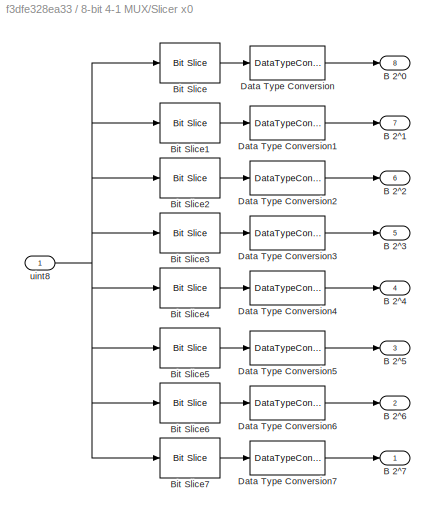
BLOCK [SubSystem] 8-bit 4-1 MUX/Slicer x0
  Ports = [1, 8]
  RequestExecContextInheritance = off
BLOCK [Outport] 8-bit 4-1 MUX/Slicer x0/B 2^0 
  IconDisplay = Port number
  Port = 8
BLOCK [Outport] 8-bit 4-1 MUX/Slicer x0/B 2^1
  IconDisplay = Port number
  Port = 7
BLOCK [Outport] 8-bit 4-1 MUX/Slicer x0/B 2^2
  IconDisplay = Port number
  Port = 6
BLOCK [Outport] 8-bit 4-1 MUX/Slicer x0/B 2^3
  IconDisplay = Port number
  Port = 5
BLOCK [Outport] 8-bit 4-1 MUX/Slicer x0/B 2^4
  IconDisplay = Port number
  Port = 4
BLOCK [Outport] 8-bit 4-1 MUX/Slicer x0/B 2^5
  IconDisplay = Port number
  Port = 3
BLOCK [Outport] 8-bit 4-1 MUX/Slicer x0/B 2^6
  IconDisplay = Port number
  Port = 2
BLOCK [Outport] 8-bit 4-1 MUX/Slicer x0/B 2^7
  IconDisplay = Port number
BLOCK [Reference] 8-bit 4-1 MUX/Slicer x0/Bit Slice  REF=hdlsllib/Logic and Bit
Operations/Bit Slice
  Ports = [1, 1]
  SourceBlock = hdlsllib/Logic and Bit\nOperations/Bit Slice
  SourceProductBaseCode = HD
  SourceProductName = HDL Coder
  SourceType = Bit Slice
BLOCK [Reference] 8-bit 4-1 MUX/Slicer x0/Bit Slice1  REF=hdlsllib/Logic and Bit
Operations/Bit Slice
  Ports = [1, 1]
  SourceBlock = hdlsllib/Logic and Bit\nOperations/Bit Slice
  SourceProductBaseCode = HD
  SourceProductName = HDL Coder
  SourceType = Bit Slice
BLOCK [Reference] 8-bit 4-1 MUX/Slicer x0/Bit Slice2  REF=hdlsllib/Logic and Bit
Operations/Bit Slice
  Ports = [1, 1]
  SourceBlock = hdlsllib/Logic and Bit\nOperations/Bit Slice
  SourceProductBaseCode = HD
  SourceProductName = HDL Coder
  SourceType = Bit Slice
BLOCK [Reference] 8-bit 4-1 MUX/Slicer x0/Bit Slice3  REF=hdlsllib/Logic and Bit
Operations/Bit Slice
  Ports = [1, 1]
  SourceBlock = hdlsllib/Logic and Bit\nOperations/Bit Slice
  SourceProductBaseCode = HD
  SourceProductName = HDL Coder
  SourceType = Bit Slice
BLOCK [Reference] 8-bit 4-1 MUX/Slicer x0/Bit Slice4  REF=hdlsllib/Logic and Bit
Operations/Bit Slice
  Ports = [1, 1]
  SourceBlock = hdlsllib/Logic and Bit\nOperations/Bit Slice
  SourceProductBaseCode = HD
  SourceProductName = HDL Coder
  SourceType = Bit Slice
BLOCK [Reference] 8-bit 4-1 MUX/Slicer x0/Bit Slice5  REF=hdlsllib/Logic and Bit
Operations/Bit Slice
  Ports = [1, 1]
  SourceBlock = hdlsllib/Logic and Bit\nOperations/Bit Slice
  SourceProductBaseCode = HD
  SourceProductName = HDL Coder
  SourceType = Bit Slice
BLOCK [Reference] 8-bit 4-1 MUX/Slicer x0/Bit Slice6  REF=hdlsllib/Logic and Bit
Operations/Bit Slice
  Ports = [1, 1]
  SourceBlock = hdlsllib/Logic and Bit\nOperations/Bit Slice
  SourceProductBaseCode = HD
  SourceProductName = HDL Coder
  SourceType = Bit Slice
BLOCK [Reference] 8-bit 4-1 MUX/Slicer x0/Bit Slice7  REF=hdlsllib/Logic and Bit
Operations/Bit Slice
  Ports = [1, 1]
  SourceBlock = hdlsllib/Logic and Bit\nOperations/Bit Slice
  SourceProductBaseCode = HD
  SourceProductName = HDL Coder
  SourceType = Bit Slice
BLOCK [DataTypeConversion] 8-bit 4-1 MUX/Slicer x0/Data Type Conversion
  OutDataTypeStr = boolean
  RndMeth = Floor
  SaturateOnIntegerOverflow = off
BLOCK [DataTypeConversion] 8-bit 4-1 MUX/Slicer x0/Data Type Conversion1
  OutDataTypeStr = boolean
  RndMeth = Floor
  SaturateOnIntegerOverflow = off
BLOCK [DataTypeConversion] 8-bit 4-1 MUX/Slicer x0/Data Type Conversion2
  OutDataTypeStr = boolean
  RndMeth = Floor
  SaturateOnIntegerOverflow = off
BLOCK [DataTypeConversion] 8-bit 4-1 MUX/Slicer x0/Data Type Conversion3
  OutDataTypeStr = boolean
  RndMeth = Floor
  SaturateOnIntegerOverflow = off
BLOCK [DataTypeConversion] 8-bit 4-1 MUX/Slicer x0/Data Type Conversion4
  OutDataTypeStr = boolean
  RndMeth = Floor
  SaturateOnIntegerOverflow = off
BLOCK [DataTypeConversion] 8-bit 4-1 MUX/Slicer x0/Data Type Conversion5
  OutDataTypeStr = boolean
  RndMeth = Floor
  SaturateOnIntegerOverflow = off
BLOCK [DataTypeConversion] 8-bit 4-1 MUX/Slicer x0/Data Type Conversion6
  OutDataTypeStr = boolean
  RndMeth = Floor
  SaturateOnIntegerOverflow = off
BLOCK [DataTypeConversion] 8-bit 4-1 MUX/Slicer x0/Data Type Conversion7
  OutDataTypeStr = boolean
  RndMeth = Floor
  SaturateOnIntegerOverflow = off
BLOCK [Inport] 8-bit 4-1 MUX/Slicer x0/uint8
  IconDisplay = Port number
  OutDataTypeStr = uint8
  SampleTime = 1
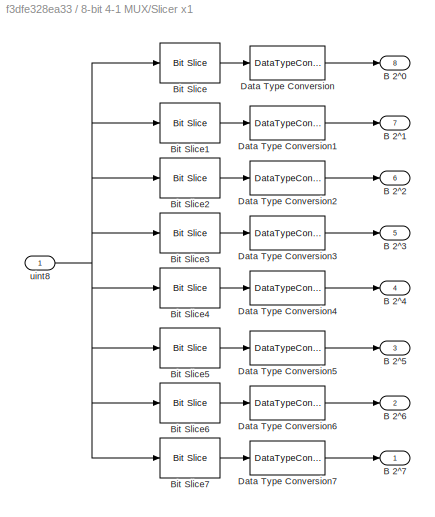
BLOCK [SubSystem] 8-bit 4-1 MUX/Slicer x1
  Ports = [1, 8]
  RequestExecContextInheritance = off
BLOCK [Outport] 8-bit 4-1 MUX/Slicer x1/B 2^0 
  IconDisplay = Port number
  Port = 8
BLOCK [Outport] 8-bit 4-1 MUX/Slicer x1/B 2^1
  IconDisplay = Port number
  Port = 7
BLOCK [Outport] 8-bit 4-1 MUX/Slicer x1/B 2^2
  IconDisplay = Port number
  Port = 6
BLOCK [Outport] 8-bit 4-1 MUX/Slicer x1/B 2^3
  IconDisplay = Port number
  Port = 5
BLOCK [Outport] 8-bit 4-1 MUX/Slicer x1/B 2^4
  IconDisplay = Port number
  Port = 4
BLOCK [Outport] 8-bit 4-1 MUX/Slicer x1/B 2^5
  IconDisplay = Port number
  Port = 3
BLOCK [Outport] 8-bit 4-1 MUX/Slicer x1/B 2^6
  IconDisplay = Port number
  Port = 2
BLOCK [Outport] 8-bit 4-1 MUX/Slicer x1/B 2^7
  IconDisplay = Port number
BLOCK [Reference] 8-bit 4-1 MUX/Slicer x1/Bit Slice  REF=hdlsllib/Logic and Bit
Operations/Bit Slice
  Ports = [1, 1]
  SourceBlock = hdlsllib/Logic and Bit\nOperations/Bit Slice
  SourceProductBaseCode = HD
  SourceProductName = HDL Coder
  SourceType = Bit Slice
BLOCK [Reference] 8-bit 4-1 MUX/Slicer x1/Bit Slice1  REF=hdlsllib/Logic and Bit
Operations/Bit Slice
  Ports = [1, 1]
  SourceBlock = hdlsllib/Logic and Bit\nOperations/Bit Slice
  SourceProductBaseCode = HD
  SourceProductName = HDL Coder
  SourceType = Bit Slice
BLOCK [Reference] 8-bit 4-1 MUX/Slicer x1/Bit Slice2  REF=hdlsllib/Logic and Bit
Operations/Bit Slice
  Ports = [1, 1]
  SourceBlock = hdlsllib/Logic and Bit\nOperations/Bit Slice
  SourceProductBaseCode = HD
  SourceProductName = HDL Coder
  SourceType = Bit Slice
BLOCK [Reference] 8-bit 4-1 MUX/Slicer x1/Bit Slice3  REF=hdlsllib/Logic and Bit
Operations/Bit Slice
  Ports = [1, 1]
  SourceBlock = hdlsllib/Logic and Bit\nOperations/Bit Slice
  SourceProductBaseCode = HD
  SourceProductName = HDL Coder
  SourceType = Bit Slice
BLOCK [Reference] 8-bit 4-1 MUX/Slicer x1/Bit Slice4  REF=hdlsllib/Logic and Bit
Operations/Bit Slice
  Ports = [1, 1]
  SourceBlock = hdlsllib/Logic and Bit\nOperations/Bit Slice
  SourceProductBaseCode = HD
  SourceProductName = HDL Coder
  SourceType = Bit Slice
BLOCK [Reference] 8-bit 4-1 MUX/Slicer x1/Bit Slice5  REF=hdlsllib/Logic and Bit
Operations/Bit Slice
  Ports = [1, 1]
  SourceBlock = hdlsllib/Logic and Bit\nOperations/Bit Slice
  SourceProductBaseCode = HD
  SourceProductName = HDL Coder
  SourceType = Bit Slice
BLOCK [Reference] 8-bit 4-1 MUX/Slicer x1/Bit Slice6  REF=hdlsllib/Logic and Bit
Operations/Bit Slice
  Ports = [1, 1]
  SourceBlock = hdlsllib/Logic and Bit\nOperations/Bit Slice
  SourceProductBaseCode = HD
  SourceProductName = HDL Coder
  SourceType = Bit Slice
BLOCK [Reference] 8-bit 4-1 MUX/Slicer x1/Bit Slice7  REF=hdlsllib/Logic and Bit
Operations/Bit Slice
  Ports = [1, 1]
  SourceBlock = hdlsllib/Logic and Bit\nOperations/Bit Slice
  SourceProductBaseCode = HD
  SourceProductName = HDL Coder
  SourceType = Bit Slice
BLOCK [DataTypeConversion] 8-bit 4-1 MUX/Slicer x1/Data Type Conversion
  OutDataTypeStr = boolean
  RndMeth = Floor
  SaturateOnIntegerOverflow = off
BLOCK [DataTypeConversion] 8-bit 4-1 MUX/Slicer x1/Data Type Conversion1
  OutDataTypeStr = boolean
  RndMeth = Floor
  SaturateOnIntegerOverflow = off
BLOCK [DataTypeConversion] 8-bit 4-1 MUX/Slicer x1/Data Type Conversion2
  OutDataTypeStr = boolean
  RndMeth = Floor
  SaturateOnIntegerOverflow = off
BLOCK [DataTypeConversion] 8-bit 4-1 MUX/Slicer x1/Data Type Conversion3
  OutDataTypeStr = boolean
  RndMeth = Floor
  SaturateOnIntegerOverflow = off
BLOCK [DataTypeConversion] 8-bit 4-1 MUX/Slicer x1/Data Type Conversion4
  OutDataTypeStr = boolean
  RndMeth = Floor
  SaturateOnIntegerOverflow = off
BLOCK [DataTypeConversion] 8-bit 4-1 MUX/Slicer x1/Data Type Conversion5
  OutDataTypeStr = boolean
  RndMeth = Floor
  SaturateOnIntegerOverflow = off
BLOCK [DataTypeConversion] 8-bit 4-1 MUX/Slicer x1/Data Type Conversion6
  OutDataTypeStr = boolean
  RndMeth = Floor
  SaturateOnIntegerOverflow = off
BLOCK [DataTypeConversion] 8-bit 4-1 MUX/Slicer x1/Data Type Conversion7
  OutDataTypeStr = boolean
  RndMeth = Floor
  SaturateOnIntegerOverflow = off
BLOCK [Inport] 8-bit 4-1 MUX/Slicer x1/uint8
  IconDisplay = Port number
  OutDataTypeStr = uint8
  SampleTime = 1
BLOCK [SubSystem] 8-bit 4-1 MUX/Slicer x2
  Ports = [1, 8]
  RequestExecContextInheritance = off
BLOCK [Outport] 8-bit 4-1 MUX/Slicer x2/B 2^0 
  IconDisplay = Port number
  Port = 8
BLOCK [Outport] 8-bit 4-1 MUX/Slicer x2/B 2^1
  IconDisplay = Port number
  Port = 7
BLOCK [Outport] 8-bit 4-1 MUX/Slicer x2/B 2^2
  IconDisplay = Port number
  Port = 6
BLOCK [Outport] 8-bit 4-1 MUX/Slicer x2/B 2^3
  IconDisplay = Port number
  Port = 5
BLOCK [Outport] 8-bit 4-1 MUX/Slicer x2/B 2^4
  IconDisplay = Port number
  Port = 4
BLOCK [Outport] 8-bit 4-1 MUX/Slicer x2/B 2^5
  IconDisplay = Port number
  Port = 3
BLOCK [Outport] 8-bit 4-1 MUX/Slicer x2/B 2^6
  IconDisplay = Port number
  Port = 2
BLOCK [Outport] 8-bit 4-1 MUX/Slicer x2/B 2^7
  IconDisplay = Port number
BLOCK [Reference] 8-bit 4-1 MUX/Slicer x2/Bit Slice  REF=hdlsllib/Logic and Bit
Operations/Bit Slice
  Ports = [1, 1]
  SourceBlock = hdlsllib/Logic and Bit\nOperations/Bit Slice
  SourceProductBaseCode = HD
  SourceProductName = HDL Coder
  SourceType = Bit Slice
BLOCK [Reference] 8-bit 4-1 MUX/Slicer x2/Bit Slice1  REF=hdlsllib/Logic and Bit
Operations/Bit Slice
  Ports = [1, 1]
  SourceBlock = hdlsllib/Logic and Bit\nOperations/Bit Slice
  SourceProductBaseCode = HD
  SourceProductName = HDL Coder
  SourceType = Bit Slice
BLOCK [Reference] 8-bit 4-1 MUX/Slicer x2/Bit Slice2  REF=hdlsllib/Logic and Bit
Operations/Bit Slice
  Ports = [1, 1]
  SourceBlock = hdlsllib/Logic and Bit\nOperations/Bit Slice
  SourceProductBaseCode = HD
  SourceProductName = HDL Coder
  SourceType = Bit Slice
BLOCK [Reference] 8-bit 4-1 MUX/Slicer x2/Bit Slice3  REF=hdlsllib/Logic and Bit
Operations/Bit Slice
  Ports = [1, 1]
  SourceBlock = hdlsllib/Logic and Bit\nOperations/Bit Slice
  SourceProductBaseCode = HD
  SourceProductName = HDL Coder
  SourceType = Bit Slice
BLOCK [Reference] 8-bit 4-1 MUX/Slicer x2/Bit Slice4  REF=hdlsllib/Logic and Bit
Operations/Bit Slice
  Ports = [1, 1]
  SourceBlock = hdlsllib/Logic and Bit\nOperations/Bit Slice
  SourceProductBaseCode = HD
  SourceProductName = HDL Coder
  SourceType = Bit Slice
BLOCK [Reference] 8-bit 4-1 MUX/Slicer x2/Bit Slice5  REF=hdlsllib/Logic and Bit
Operations/Bit Slice
  Ports = [1, 1]
  SourceBlock = hdlsllib/Logic and Bit\nOperations/Bit Slice
  SourceProductBaseCode = HD
  SourceProductName = HDL Coder
  SourceType = Bit Slice
BLOCK [Reference] 8-bit 4-1 MUX/Slicer x2/Bit Slice6  REF=hdlsllib/Logic and Bit
Operations/Bit Slice
  Ports = [1, 1]
  SourceBlock = hdlsllib/Logic and Bit\nOperations/Bit Slice
  SourceProductBaseCode = HD
  SourceProductName = HDL Coder
  SourceType = Bit Slice
BLOCK [Reference] 8-bit 4-1 MUX/Slicer x2/Bit Slice7  REF=hdlsllib/Logic and Bit
Operations/Bit Slice
  Ports = [1, 1]
  SourceBlock = hdlsllib/Logic and Bit\nOperations/Bit Slice
  SourceProductBaseCode = HD
  SourceProductName = HDL Coder
  SourceType = Bit Slice
BLOCK [DataTypeConversion] 8-bit 4-1 MUX/Slicer x2/Data Type Conversion
  OutDataTypeStr = boolean
  RndMeth = Floor
  SaturateOnIntegerOverflow = off
BLOCK [DataTypeConversion] 8-bit 4-1 MUX/Slicer x2/Data Type Conversion1
  OutDataTypeStr = boolean
  RndMeth = Floor
  SaturateOnIntegerOverflow = off
BLOCK [DataTypeConversion] 8-bit 4-1 MUX/Slicer x2/Data Type Conversion2
  OutDataTypeStr = boolean
  RndMeth = Floor
  SaturateOnIntegerOverflow = off
BLOCK [DataTypeConversion] 8-bit 4-1 MUX/Slicer x2/Data Type Conversion3
  OutDataTypeStr = boolean
  RndMeth = Floor
  SaturateOnIntegerOverflow = off
BLOCK [DataTypeConversion] 8-bit 4-1 MUX/Slicer x2/Data Type Conversion4
  OutDataTypeStr = boolean
  RndMeth = Floor
  SaturateOnIntegerOverflow = off
BLOCK [DataTypeConversion] 8-bit 4-1 MUX/Slicer x2/Data Type Conversion5
  OutDataTypeStr = boolean
  RndMeth = Floor
  SaturateOnIntegerOverflow = off
BLOCK [DataTypeConversion] 8-bit 4-1 MUX/Slicer x2/Data Type Conversion6
  OutDataTypeStr = boolean
  RndMeth = Floor
  SaturateOnIntegerOverflow = off
BLOCK [DataTypeConversion] 8-bit 4-1 MUX/Slicer x2/Data Type Conversion7
  OutDataTypeStr = boolean
  RndMeth = Floor
  SaturateOnIntegerOverflow = off
BLOCK [Inport] 8-bit 4-1 MUX/Slicer x2/uint8
  IconDisplay = Port number
  OutDataTypeStr = uint8
  SampleTime = 1
BLOCK [SubSystem] 8-bit 4-1 MUX/Slicer x3
  Ports = [1, 8]
  RequestExecContextInheritance = off
BLOCK [Outport] 8-bit 4-1 MUX/Slicer x3/B 2^0 
  IconDisplay = Port number
  Port = 8
BLOCK [Outport] 8-bit 4-1 MUX/Slicer x3/B 2^1
  IconDisplay = Port number
  Port = 7
BLOCK [Outport] 8-bit 4-1 MUX/Slicer x3/B 2^2
  IconDisplay = Port number
  Port = 6
BLOCK [Outport] 8-bit 4-1 MUX/Slicer x3/B 2^3
  IconDisplay = Port number
  Port = 5
BLOCK [Outport] 8-bit 4-1 MUX/Slicer x3/B 2^4
  IconDisplay = Port number
  Port = 4
BLOCK [Outport] 8-bit 4-1 MUX/Slicer x3/B 2^5
  IconDisplay = Port number
  Port = 3
BLOCK [Outport] 8-bit 4-1 MUX/Slicer x3/B 2^6
  IconDisplay = Port number
  Port = 2
BLOCK [Outport] 8-bit 4-1 MUX/Slicer x3/B 2^7
  IconDisplay = Port number
BLOCK [Reference] 8-bit 4-1 MUX/Slicer x3/Bit Slice  REF=hdlsllib/Logic and Bit
Operations/Bit Slice
  Ports = [1, 1]
  SourceBlock = hdlsllib/Logic and Bit\nOperations/Bit Slice
  SourceProductBaseCode = HD
  SourceProductName = HDL Coder
  SourceType = Bit Slice
BLOCK [Reference] 8-bit 4-1 MUX/Slicer x3/Bit Slice1  REF=hdlsllib/Logic and Bit
Operations/Bit Slice
  Ports = [1, 1]
  SourceBlock = hdlsllib/Logic and Bit\nOperations/Bit Slice
  SourceProductBaseCode = HD
  SourceProductName = HDL Coder
  SourceType = Bit Slice
BLOCK [Reference] 8-bit 4-1 MUX/Slicer x3/Bit Slice2  REF=hdlsllib/Logic and Bit
Operations/Bit Slice
  Ports = [1, 1]
  SourceBlock = hdlsllib/Logic and Bit\nOperations/Bit Slice
  SourceProductBaseCode = HD
  SourceProductName = HDL Coder
  SourceType = Bit Slice
BLOCK [Reference] 8-bit 4-1 MUX/Slicer x3/Bit Slice3  REF=hdlsllib/Logic and Bit
Operations/Bit Slice
  Ports = [1, 1]
  SourceBlock = hdlsllib/Logic and Bit\nOperations/Bit Slice
  SourceProductBaseCode = HD
  SourceProductName = HDL Coder
  SourceType = Bit Slice
BLOCK [Reference] 8-bit 4-1 MUX/Slicer x3/Bit Slice4  REF=hdlsllib/Logic and Bit
Operations/Bit Slice
  Ports = [1, 1]
  SourceBlock = hdlsllib/Logic and Bit\nOperations/Bit Slice
  SourceProductBaseCode = HD
  SourceProductName = HDL Coder
  SourceType = Bit Slice
BLOCK [Reference] 8-bit 4-1 MUX/Slicer x3/Bit Slice5  REF=hdlsllib/Logic and Bit
Operations/Bit Slice
  Ports = [1, 1]
  SourceBlock = hdlsllib/Logic and Bit\nOperations/Bit Slice
  SourceProductBaseCode = HD
  SourceProductName = HDL Coder
  SourceType = Bit Slice
BLOCK [Reference] 8-bit 4-1 MUX/Slicer x3/Bit Slice6  REF=hdlsllib/Logic and Bit
Operations/Bit Slice
  Ports = [1, 1]
  SourceBlock = hdlsllib/Logic and Bit\nOperations/Bit Slice
  SourceProductBaseCode = HD
  SourceProductName = HDL Coder
  SourceType = Bit Slice
BLOCK [Reference] 8-bit 4-1 MUX/Slicer x3/Bit Slice7  REF=hdlsllib/Logic and Bit
Operations/Bit Slice
  Ports = [1, 1]
  SourceBlock = hdlsllib/Logic and Bit\nOperations/Bit Slice
  SourceProductBaseCode = HD
  SourceProductName = HDL Coder
  SourceType = Bit Slice
BLOCK [DataTypeConversion] 8-bit 4-1 MUX/Slicer x3/Data Type Conversion
  OutDataTypeStr = boolean
  RndMeth = Floor
  SaturateOnIntegerOverflow = off
BLOCK [DataTypeConversion] 8-bit 4-1 MUX/Slicer x3/Data Type Conversion1
  OutDataTypeStr = boolean
  RndMeth = Floor
  SaturateOnIntegerOverflow = off
BLOCK [DataTypeConversion] 8-bit 4-1 MUX/Slicer x3/Data Type Conversion2
  OutDataTypeStr = boolean
  RndMeth = Floor
  SaturateOnIntegerOverflow = off
BLOCK [DataTypeConversion] 8-bit 4-1 MUX/Slicer x3/Data Type Conversion3
  OutDataTypeStr = boolean
  RndMeth = Floor
  SaturateOnIntegerOverflow = off
BLOCK [DataTypeConversion] 8-bit 4-1 MUX/Slicer x3/Data Type Conversion4
  OutDataTypeStr = boolean
  RndMeth = Floor
  SaturateOnIntegerOverflow = off
BLOCK [DataTypeConversion] 8-bit 4-1 MUX/Slicer x3/Data Type Conversion5
  OutDataTypeStr = boolean
  RndMeth = Floor
  SaturateOnIntegerOverflow = off
BLOCK [DataTypeConversion] 8-bit 4-1 MUX/Slicer x3/Data Type Conversion6
  OutDataTypeStr = boolean
  RndMeth = Floor
  SaturateOnIntegerOverflow = off
BLOCK [DataTypeConversion] 8-bit 4-1 MUX/Slicer x3/Data Type Conversion7
  OutDataTypeStr = boolean
  RndMeth = Floor
  SaturateOnIntegerOverflow = off
BLOCK [Inport] 8-bit 4-1 MUX/Slicer x3/uint8
  IconDisplay = Port number
  OutDataTypeStr = uint8
  SampleTime = 1
BLOCK [Inport] 8-bit 4-1 MUX/x0
  IconDisplay = Port number
  Port = 2
BLOCK [Inport] 8-bit 4-1 MUX/x1
  IconDisplay = Port number
  Port = 3
BLOCK [Inport] 8-bit 4-1 MUX/x2
  IconDisplay = Port number
  Port = 4
BLOCK [Inport] 8-bit 4-1 MUX/x3
  IconDisplay = Port number
  Port = 5
BLOCK [Display] Answer
  Decimation = 1
  Ports = [1]
BLOCK [Constant] S
  OutDataTypeStr = uint8
  SampleTime = 1
  Value = 3
BLOCK [Constant] x0
  OutDataTypeStr = uint8
  SampleTime = 1
  Value = 80
BLOCK [Constant] x1
  OutDataTypeStr = uint8
  SampleTime = 1
  Value = 57
BLOCK [Constant] x2
  OutDataTypeStr = uint8
  SampleTime = 1
  Value = 145
BLOCK [Constant] x3
  OutDataTypeStr = uint8
  SampleTime = 1
  Value = 19
LINE 8-bit 4-1 MUX/4-1 MUX 2^0/2-1 MUX1/Data Type Conversion1:1 -> 8-bit 4-1 MUX/4-1 MUX 2^0/2-1 MUX1/Logical Operator:1
LINE 8-bit 4-1 MUX/4-1 MUX 2^0/2-1 MUX1/Data Type Conversion2:1 -> 8-bit 4-1 MUX/4-1 MUX 2^0/2-1 MUX1/Logical Operator1:2
LINE 8-bit 4-1 MUX/4-1 MUX 2^0/2-1 MUX1/I0:1 -> 8-bit 4-1 MUX/4-1 MUX 2^0/2-1 MUX1/Data Type Conversion1:1
LINE 8-bit 4-1 MUX/4-1 MUX 2^0/2-1 MUX1/I1:1 -> 8-bit 4-1 MUX/4-1 MUX 2^0/2-1 MUX1/Data Type Conversion2:1
LINE 8-bit 4-1 MUX/4-1 MUX 2^0/2-1 MUX1/Logical Operator1:1 -> 8-bit 4-1 MUX/4-1 MUX 2^0/2-1 MUX1/Logical Operator2:2
LINE 8-bit 4-1 MUX/4-1 MUX 2^0/2-1 MUX1/Logical Operator2:1 -> 8-bit 4-1 MUX/4-1 MUX 2^0/2-1 MUX1/Z:1
LINE 8-bit 4-1 MUX/4-1 MUX 2^0/2-1 MUX1/Logical Operator3:1 -> 8-bit 4-1 MUX/4-1 MUX 2^0/2-1 MUX1/Logical Operator:2
LINE 8-bit 4-1 MUX/4-1 MUX 2^0/2-1 MUX1/Logical Operator:1 -> 8-bit 4-1 MUX/4-1 MUX 2^0/2-1 MUX1/Logical Operator2:1
NET 8-bit 4-1 MUX/4-1 MUX 2^0/2-1 MUX1/S:1 -> 8-bit 4-1 MUX/4-1 MUX 2^0/2-1 MUX1/Logical Operator1:1, 8-bit 4-1 MUX/4-1 MUX 2^0/2-1 MUX1/Logical Operator3:1
LINE 8-bit 4-1 MUX/4-1 MUX 2^0/2-1 MUX1:1 -> 8-bit 4-1 MUX/4-1 MUX 2^0/2-1 MUX2:3
LINE 8-bit 4-1 MUX/4-1 MUX 2^0/2-1 MUX2/Data Type Conversion1:1 -> 8-bit 4-1 MUX/4-1 MUX 2^0/2-1 MUX2/Logical Operator:1
LINE 8-bit 4-1 MUX/4-1 MUX 2^0/2-1 MUX2/Data Type Conversion2:1 -> 8-bit 4-1 MUX/4-1 MUX 2^0/2-1 MUX2/Logical Operator1:2
LINE 8-bit 4-1 MUX/4-1 MUX 2^0/2-1 MUX2/I0:1 -> 8-bit 4-1 MUX/4-1 MUX 2^0/2-1 MUX2/Data Type Conversion1:1
LINE 8-bit 4-1 MUX/4-1 MUX 2^0/2-1 MUX2/I1:1 -> 8-bit 4-1 MUX/4-1 MUX 2^0/2-1 MUX2/Data Type Conversion2:1
LINE 8-bit 4-1 MUX/4-1 MUX 2^0/2-1 MUX2/Logical Operator1:1 -> 8-bit 4-1 MUX/4-1 MUX 2^0/2-1 MUX2/Logical Operator2:2
LINE 8-bit 4-1 MUX/4-1 MUX 2^0/2-1 MUX2/Logical Operator2:1 -> 8-bit 4-1 MUX/4-1 MUX 2^0/2-1 MUX2/Z:1
LINE 8-bit 4-1 MUX/4-1 MUX 2^0/2-1 MUX2/Logical Operator3:1 -> 8-bit 4-1 MUX/4-1 MUX 2^0/2-1 MUX2/Logical Operator:2
LINE 8-bit 4-1 MUX/4-1 MUX 2^0/2-1 MUX2/Logical Operator:1 -> 8-bit 4-1 MUX/4-1 MUX 2^0/2-1 MUX2/Logical Operator2:1
NET 8-bit 4-1 MUX/4-1 MUX 2^0/2-1 MUX2/S:1 -> 8-bit 4-1 MUX/4-1 MUX 2^0/2-1 MUX2/Logical Operator1:1, 8-bit 4-1 MUX/4-1 MUX 2^0/2-1 MUX2/Logical Operator3:1
LINE 8-bit 4-1 MUX/4-1 MUX 2^0/2-1 MUX2:1 -> 8-bit 4-1 MUX/4-1 MUX 2^0/Z:1
LINE 8-bit 4-1 MUX/4-1 MUX 2^0/2-1 MUX3/Data Type Conversion1:1 -> 8-bit 4-1 MUX/4-1 MUX 2^0/2-1 MUX3/Logical Operator:1
LINE 8-bit 4-1 MUX/4-1 MUX 2^0/2-1 MUX3/Data Type Conversion2:1 -> 8-bit 4-1 MUX/4-1 MUX 2^0/2-1 MUX3/Logical Operator1:2
LINE 8-bit 4-1 MUX/4-1 MUX 2^0/2-1 MUX3/I0:1 -> 8-bit 4-1 MUX/4-1 MUX 2^0/2-1 MUX3/Data Type Conversion1:1
LINE 8-bit 4-1 MUX/4-1 MUX 2^0/2-1 MUX3/I1:1 -> 8-bit 4-1 MUX/4-1 MUX 2^0/2-1 MUX3/Data Type Conversion2:1
LINE 8-bit 4-1 MUX/4-1 MUX 2^0/2-1 MUX3/Logical Operator1:1 -> 8-bit 4-1 MUX/4-1 MUX 2^0/2-1 MUX3/Logical Operator2:2
LINE 8-bit 4-1 MUX/4-1 MUX 2^0/2-1 MUX3/Logical Operator2:1 -> 8-bit 4-1 MUX/4-1 MUX 2^0/2-1 MUX3/Z:1
LINE 8-bit 4-1 MUX/4-1 MUX 2^0/2-1 MUX3/Logical Operator3:1 -> 8-bit 4-1 MUX/4-1 MUX 2^0/2-1 MUX3/Logical Operator:2
LINE 8-bit 4-1 MUX/4-1 MUX 2^0/2-1 MUX3/Logical Operator:1 -> 8-bit 4-1 MUX/4-1 MUX 2^0/2-1 MUX3/Logical Operator2:1
NET 8-bit 4-1 MUX/4-1 MUX 2^0/2-1 MUX3/S:1 -> 8-bit 4-1 MUX/4-1 MUX 2^0/2-1 MUX3/Logical Operator1:1, 8-bit 4-1 MUX/4-1 MUX 2^0/2-1 MUX3/Logical Operator3:1
LINE 8-bit 4-1 MUX/4-1 MUX 2^0/2-1 MUX3:1 -> 8-bit 4-1 MUX/4-1 MUX 2^0/2-1 MUX2:2
LINE 8-bit 4-1 MUX/4-1 MUX 2^0/S:1 -> 8-bit 4-1 MUX/4-1 MUX 2^0/Slicer Code:1
LINE 8-bit 4-1 MUX/4-1 MUX 2^0/Slicer Code/Bit Slice1:1 -> 8-bit 4-1 MUX/4-1 MUX 2^0/Slicer Code/Data Type Conversion1:1
LINE 8-bit 4-1 MUX/4-1 MUX 2^0/Slicer Code/Bit Slice:1 -> 8-bit 4-1 MUX/4-1 MUX 2^0/Slicer Code/Data Type Conversion:1
LINE 8-bit 4-1 MUX/4-1 MUX 2^0/Slicer Code/Data Type Conversion1:1 -> 8-bit 4-1 MUX/4-1 MUX 2^0/Slicer Code/S 2^1:1
LINE 8-bit 4-1 MUX/4-1 MUX 2^0/Slicer Code/Data Type Conversion:1 -> 8-bit 4-1 MUX/4-1 MUX 2^0/Slicer Code/S 2^0 :1
NET 8-bit 4-1 MUX/4-1 MUX 2^0/Slicer Code/uint8:1 -> 8-bit 4-1 MUX/4-1 MUX 2^0/Slicer Code/Bit Slice1:1, 8-bit 4-1 MUX/4-1 MUX 2^0/Slicer Code/Bit Slice:1
LINE 8-bit 4-1 MUX/4-1 MUX 2^0/Slicer Code:1 -> 8-bit 4-1 MUX/4-1 MUX 2^0/2-1 MUX2:1
NET 8-bit 4-1 MUX/4-1 MUX 2^0/Slicer Code:2 -> 8-bit 4-1 MUX/4-1 MUX 2^0/2-1 MUX1:1, 8-bit 4-1 MUX/4-1 MUX 2^0/2-1 MUX3:1
LINE 8-bit 4-1 MUX/4-1 MUX 2^0/x0:1 -> 8-bit 4-1 MUX/4-1 MUX 2^0/2-1 MUX3:2
LINE 8-bit 4-1 MUX/4-1 MUX 2^0/x1:1 -> 8-bit 4-1 MUX/4-1 MUX 2^0/2-1 MUX3:3
LINE 8-bit 4-1 MUX/4-1 MUX 2^0/x2:1 -> 8-bit 4-1 MUX/4-1 MUX 2^0/2-1 MUX1:2
LINE 8-bit 4-1 MUX/4-1 MUX 2^0/x3:1 -> 8-bit 4-1 MUX/4-1 MUX 2^0/2-1 MUX1:3
LINE 8-bit 4-1 MUX/4-1 MUX 2^0:1 -> 8-bit 4-1 MUX/Concat:8
LINE 8-bit 4-1 MUX/4-1 MUX 2^1/2-1 MUX1/Data Type Conversion1:1 -> 8-bit 4-1 MUX/4-1 MUX 2^1/2-1 MUX1/Logical Operator:1
LINE 8-bit 4-1 MUX/4-1 MUX 2^1/2-1 MUX1/Data Type Conversion2:1 -> 8-bit 4-1 MUX/4-1 MUX 2^1/2-1 MUX1/Logical Operator1:2
LINE 8-bit 4-1 MUX/4-1 MUX 2^1/2-1 MUX1/I0:1 -> 8-bit 4-1 MUX/4-1 MUX 2^1/2-1 MUX1/Data Type Conversion1:1
LINE 8-bit 4-1 MUX/4-1 MUX 2^1/2-1 MUX1/I1:1 -> 8-bit 4-1 MUX/4-1 MUX 2^1/2-1 MUX1/Data Type Conversion2:1
LINE 8-bit 4-1 MUX/4-1 MUX 2^1/2-1 MUX1/Logical Operator1:1 -> 8-bit 4-1 MUX/4-1 MUX 2^1/2-1 MUX1/Logical Operator2:2
LINE 8-bit 4-1 MUX/4-1 MUX 2^1/2-1 MUX1/Logical Operator2:1 -> 8-bit 4-1 MUX/4-1 MUX 2^1/2-1 MUX1/Z:1
LINE 8-bit 4-1 MUX/4-1 MUX 2^1/2-1 MUX1/Logical Operator3:1 -> 8-bit 4-1 MUX/4-1 MUX 2^1/2-1 MUX1/Logical Operator:2
LINE 8-bit 4-1 MUX/4-1 MUX 2^1/2-1 MUX1/Logical Operator:1 -> 8-bit 4-1 MUX/4-1 MUX 2^1/2-1 MUX1/Logical Operator2:1
NET 8-bit 4-1 MUX/4-1 MUX 2^1/2-1 MUX1/S:1 -> 8-bit 4-1 MUX/4-1 MUX 2^1/2-1 MUX1/Logical Operator1:1, 8-bit 4-1 MUX/4-1 MUX 2^1/2-1 MUX1/Logical Operator3:1
LINE 8-bit 4-1 MUX/4-1 MUX 2^1/2-1 MUX1:1 -> 8-bit 4-1 MUX/4-1 MUX 2^1/2-1 MUX2:3
LINE 8-bit 4-1 MUX/4-1 MUX 2^1/2-1 MUX2/Data Type Conversion1:1 -> 8-bit 4-1 MUX/4-1 MUX 2^1/2-1 MUX2/Logical Operator:1
LINE 8-bit 4-1 MUX/4-1 MUX 2^1/2-1 MUX2/Data Type Conversion2:1 -> 8-bit 4-1 MUX/4-1 MUX 2^1/2-1 MUX2/Logical Operator1:2
LINE 8-bit 4-1 MUX/4-1 MUX 2^1/2-1 MUX2/I0:1 -> 8-bit 4-1 MUX/4-1 MUX 2^1/2-1 MUX2/Data Type Conversion1:1
LINE 8-bit 4-1 MUX/4-1 MUX 2^1/2-1 MUX2/I1:1 -> 8-bit 4-1 MUX/4-1 MUX 2^1/2-1 MUX2/Data Type Conversion2:1
LINE 8-bit 4-1 MUX/4-1 MUX 2^1/2-1 MUX2/Logical Operator1:1 -> 8-bit 4-1 MUX/4-1 MUX 2^1/2-1 MUX2/Logical Operator2:2
LINE 8-bit 4-1 MUX/4-1 MUX 2^1/2-1 MUX2/Logical Operator2:1 -> 8-bit 4-1 MUX/4-1 MUX 2^1/2-1 MUX2/Z:1
LINE 8-bit 4-1 MUX/4-1 MUX 2^1/2-1 MUX2/Logical Operator3:1 -> 8-bit 4-1 MUX/4-1 MUX 2^1/2-1 MUX2/Logical Operator:2
LINE 8-bit 4-1 MUX/4-1 MUX 2^1/2-1 MUX2/Logical Operator:1 -> 8-bit 4-1 MUX/4-1 MUX 2^1/2-1 MUX2/Logical Operator2:1
NET 8-bit 4-1 MUX/4-1 MUX 2^1/2-1 MUX2/S:1 -> 8-bit 4-1 MUX/4-1 MUX 2^1/2-1 MUX2/Logical Operator1:1, 8-bit 4-1 MUX/4-1 MUX 2^1/2-1 MUX2/Logical Operator3:1
LINE 8-bit 4-1 MUX/4-1 MUX 2^1/2-1 MUX2:1 -> 8-bit 4-1 MUX/4-1 MUX 2^1/Z:1
LINE 8-bit 4-1 MUX/4-1 MUX 2^1/2-1 MUX3/Data Type Conversion1:1 -> 8-bit 4-1 MUX/4-1 MUX 2^1/2-1 MUX3/Logical Operator:1
LINE 8-bit 4-1 MUX/4-1 MUX 2^1/2-1 MUX3/Data Type Conversion2:1 -> 8-bit 4-1 MUX/4-1 MUX 2^1/2-1 MUX3/Logical Operator1:2
LINE 8-bit 4-1 MUX/4-1 MUX 2^1/2-1 MUX3/I0:1 -> 8-bit 4-1 MUX/4-1 MUX 2^1/2-1 MUX3/Data Type Conversion1:1
LINE 8-bit 4-1 MUX/4-1 MUX 2^1/2-1 MUX3/I1:1 -> 8-bit 4-1 MUX/4-1 MUX 2^1/2-1 MUX3/Data Type Conversion2:1
LINE 8-bit 4-1 MUX/4-1 MUX 2^1/2-1 MUX3/Logical Operator1:1 -> 8-bit 4-1 MUX/4-1 MUX 2^1/2-1 MUX3/Logical Operator2:2
LINE 8-bit 4-1 MUX/4-1 MUX 2^1/2-1 MUX3/Logical Operator2:1 -> 8-bit 4-1 MUX/4-1 MUX 2^1/2-1 MUX3/Z:1
LINE 8-bit 4-1 MUX/4-1 MUX 2^1/2-1 MUX3/Logical Operator3:1 -> 8-bit 4-1 MUX/4-1 MUX 2^1/2-1 MUX3/Logical Operator:2
LINE 8-bit 4-1 MUX/4-1 MUX 2^1/2-1 MUX3/Logical Operator:1 -> 8-bit 4-1 MUX/4-1 MUX 2^1/2-1 MUX3/Logical Operator2:1
NET 8-bit 4-1 MUX/4-1 MUX 2^1/2-1 MUX3/S:1 -> 8-bit 4-1 MUX/4-1 MUX 2^1/2-1 MUX3/Logical Operator1:1, 8-bit 4-1 MUX/4-1 MUX 2^1/2-1 MUX3/Logical Operator3:1
LINE 8-bit 4-1 MUX/4-1 MUX 2^1/2-1 MUX3:1 -> 8-bit 4-1 MUX/4-1 MUX 2^1/2-1 MUX2:2
LINE 8-bit 4-1 MUX/4-1 MUX 2^1/S:1 -> 8-bit 4-1 MUX/4-1 MUX 2^1/Slicer Code:1
LINE 8-bit 4-1 MUX/4-1 MUX 2^1/Slicer Code/Bit Slice1:1 -> 8-bit 4-1 MUX/4-1 MUX 2^1/Slicer Code/Data Type Conversion1:1
LINE 8-bit 4-1 MUX/4-1 MUX 2^1/Slicer Code/Bit Slice:1 -> 8-bit 4-1 MUX/4-1 MUX 2^1/Slicer Code/Data Type Conversion:1
LINE 8-bit 4-1 MUX/4-1 MUX 2^1/Slicer Code/Data Type Conversion1:1 -> 8-bit 4-1 MUX/4-1 MUX 2^1/Slicer Code/S 2^1:1
LINE 8-bit 4-1 MUX/4-1 MUX 2^1/Slicer Code/Data Type Conversion:1 -> 8-bit 4-1 MUX/4-1 MUX 2^1/Slicer Code/S 2^0 :1
NET 8-bit 4-1 MUX/4-1 MUX 2^1/Slicer Code/uint8:1 -> 8-bit 4-1 MUX/4-1 MUX 2^1/Slicer Code/Bit Slice1:1, 8-bit 4-1 MUX/4-1 MUX 2^1/Slicer Code/Bit Slice:1
LINE 8-bit 4-1 MUX/4-1 MUX 2^1/Slicer Code:1 -> 8-bit 4-1 MUX/4-1 MUX 2^1/2-1 MUX2:1
NET 8-bit 4-1 MUX/4-1 MUX 2^1/Slicer Code:2 -> 8-bit 4-1 MUX/4-1 MUX 2^1/2-1 MUX1:1, 8-bit 4-1 MUX/4-1 MUX 2^1/2-1 MUX3:1
LINE 8-bit 4-1 MUX/4-1 MUX 2^1/x0:1 -> 8-bit 4-1 MUX/4-1 MUX 2^1/2-1 MUX3:2
LINE 8-bit 4-1 MUX/4-1 MUX 2^1/x1:1 -> 8-bit 4-1 MUX/4-1 MUX 2^1/2-1 MUX3:3
LINE 8-bit 4-1 MUX/4-1 MUX 2^1/x2:1 -> 8-bit 4-1 MUX/4-1 MUX 2^1/2-1 MUX1:2
LINE 8-bit 4-1 MUX/4-1 MUX 2^1/x3:1 -> 8-bit 4-1 MUX/4-1 MUX 2^1/2-1 MUX1:3
LINE 8-bit 4-1 MUX/4-1 MUX 2^1:1 -> 8-bit 4-1 MUX/Concat:7
LINE 8-bit 4-1 MUX/4-1 MUX 2^2/2-1 MUX1/Data Type Conversion1:1 -> 8-bit 4-1 MUX/4-1 MUX 2^2/2-1 MUX1/Logical Operator:1
LINE 8-bit 4-1 MUX/4-1 MUX 2^2/2-1 MUX1/Data Type Conversion2:1 -> 8-bit 4-1 MUX/4-1 MUX 2^2/2-1 MUX1/Logical Operator1:2
LINE 8-bit 4-1 MUX/4-1 MUX 2^2/2-1 MUX1/I0:1 -> 8-bit 4-1 MUX/4-1 MUX 2^2/2-1 MUX1/Data Type Conversion1:1
LINE 8-bit 4-1 MUX/4-1 MUX 2^2/2-1 MUX1/I1:1 -> 8-bit 4-1 MUX/4-1 MUX 2^2/2-1 MUX1/Data Type Conversion2:1
LINE 8-bit 4-1 MUX/4-1 MUX 2^2/2-1 MUX1/Logical Operator1:1 -> 8-bit 4-1 MUX/4-1 MUX 2^2/2-1 MUX1/Logical Operator2:2
LINE 8-bit 4-1 MUX/4-1 MUX 2^2/2-1 MUX1/Logical Operator2:1 -> 8-bit 4-1 MUX/4-1 MUX 2^2/2-1 MUX1/Z:1
LINE 8-bit 4-1 MUX/4-1 MUX 2^2/2-1 MUX1/Logical Operator3:1 -> 8-bit 4-1 MUX/4-1 MUX 2^2/2-1 MUX1/Logical Operator:2
LINE 8-bit 4-1 MUX/4-1 MUX 2^2/2-1 MUX1/Logical Operator:1 -> 8-bit 4-1 MUX/4-1 MUX 2^2/2-1 MUX1/Logical Operator2:1
NET 8-bit 4-1 MUX/4-1 MUX 2^2/2-1 MUX1/S:1 -> 8-bit 4-1 MUX/4-1 MUX 2^2/2-1 MUX1/Logical Operator1:1, 8-bit 4-1 MUX/4-1 MUX 2^2/2-1 MUX1/Logical Operator3:1
LINE 8-bit 4-1 MUX/4-1 MUX 2^2/2-1 MUX1:1 -> 8-bit 4-1 MUX/4-1 MUX 2^2/2-1 MUX2:3
LINE 8-bit 4-1 MUX/4-1 MUX 2^2/2-1 MUX2/Data Type Conversion1:1 -> 8-bit 4-1 MUX/4-1 MUX 2^2/2-1 MUX2/Logical Operator:1
LINE 8-bit 4-1 MUX/4-1 MUX 2^2/2-1 MUX2/Data Type Conversion2:1 -> 8-bit 4-1 MUX/4-1 MUX 2^2/2-1 MUX2/Logical Operator1:2
LINE 8-bit 4-1 MUX/4-1 MUX 2^2/2-1 MUX2/I0:1 -> 8-bit 4-1 MUX/4-1 MUX 2^2/2-1 MUX2/Data Type Conversion1:1
LINE 8-bit 4-1 MUX/4-1 MUX 2^2/2-1 MUX2/I1:1 -> 8-bit 4-1 MUX/4-1 MUX 2^2/2-1 MUX2/Data Type Conversion2:1
LINE 8-bit 4-1 MUX/4-1 MUX 2^2/2-1 MUX2/Logical Operator1:1 -> 8-bit 4-1 MUX/4-1 MUX 2^2/2-1 MUX2/Logical Operator2:2
LINE 8-bit 4-1 MUX/4-1 MUX 2^2/2-1 MUX2/Logical Operator2:1 -> 8-bit 4-1 MUX/4-1 MUX 2^2/2-1 MUX2/Z:1
LINE 8-bit 4-1 MUX/4-1 MUX 2^2/2-1 MUX2/Logical Operator3:1 -> 8-bit 4-1 MUX/4-1 MUX 2^2/2-1 MUX2/Logical Operator:2
LINE 8-bit 4-1 MUX/4-1 MUX 2^2/2-1 MUX2/Logical Operator:1 -> 8-bit 4-1 MUX/4-1 MUX 2^2/2-1 MUX2/Logical Operator2:1
NET 8-bit 4-1 MUX/4-1 MUX 2^2/2-1 MUX2/S:1 -> 8-bit 4-1 MUX/4-1 MUX 2^2/2-1 MUX2/Logical Operator1:1, 8-bit 4-1 MUX/4-1 MUX 2^2/2-1 MUX2/Logical Operator3:1
LINE 8-bit 4-1 MUX/4-1 MUX 2^2/2-1 MUX2:1 -> 8-bit 4-1 MUX/4-1 MUX 2^2/Z:1
LINE 8-bit 4-1 MUX/4-1 MUX 2^2/2-1 MUX3/Data Type Conversion1:1 -> 8-bit 4-1 MUX/4-1 MUX 2^2/2-1 MUX3/Logical Operator:1
LINE 8-bit 4-1 MUX/4-1 MUX 2^2/2-1 MUX3/Data Type Conversion2:1 -> 8-bit 4-1 MUX/4-1 MUX 2^2/2-1 MUX3/Logical Operator1:2
LINE 8-bit 4-1 MUX/4-1 MUX 2^2/2-1 MUX3/I0:1 -> 8-bit 4-1 MUX/4-1 MUX 2^2/2-1 MUX3/Data Type Conversion1:1
LINE 8-bit 4-1 MUX/4-1 MUX 2^2/2-1 MUX3/I1:1 -> 8-bit 4-1 MUX/4-1 MUX 2^2/2-1 MUX3/Data Type Conversion2:1
LINE 8-bit 4-1 MUX/4-1 MUX 2^2/2-1 MUX3/Logical Operator1:1 -> 8-bit 4-1 MUX/4-1 MUX 2^2/2-1 MUX3/Logical Operator2:2
LINE 8-bit 4-1 MUX/4-1 MUX 2^2/2-1 MUX3/Logical Operator2:1 -> 8-bit 4-1 MUX/4-1 MUX 2^2/2-1 MUX3/Z:1
LINE 8-bit 4-1 MUX/4-1 MUX 2^2/2-1 MUX3/Logical Operator3:1 -> 8-bit 4-1 MUX/4-1 MUX 2^2/2-1 MUX3/Logical Operator:2
LINE 8-bit 4-1 MUX/4-1 MUX 2^2/2-1 MUX3/Logical Operator:1 -> 8-bit 4-1 MUX/4-1 MUX 2^2/2-1 MUX3/Logical Operator2:1
NET 8-bit 4-1 MUX/4-1 MUX 2^2/2-1 MUX3/S:1 -> 8-bit 4-1 MUX/4-1 MUX 2^2/2-1 MUX3/Logical Operator1:1, 8-bit 4-1 MUX/4-1 MUX 2^2/2-1 MUX3/Logical Operator3:1
LINE 8-bit 4-1 MUX/4-1 MUX 2^2/2-1 MUX3:1 -> 8-bit 4-1 MUX/4-1 MUX 2^2/2-1 MUX2:2
LINE 8-bit 4-1 MUX/4-1 MUX 2^2/S:1 -> 8-bit 4-1 MUX/4-1 MUX 2^2/Slicer Code:1
LINE 8-bit 4-1 MUX/4-1 MUX 2^2/Slicer Code/Bit Slice1:1 -> 8-bit 4-1 MUX/4-1 MUX 2^2/Slicer Code/Data Type Conversion1:1
LINE 8-bit 4-1 MUX/4-1 MUX 2^2/Slicer Code/Bit Slice:1 -> 8-bit 4-1 MUX/4-1 MUX 2^2/Slicer Code/Data Type Conversion:1
LINE 8-bit 4-1 MUX/4-1 MUX 2^2/Slicer Code/Data Type Conversion1:1 -> 8-bit 4-1 MUX/4-1 MUX 2^2/Slicer Code/S 2^1:1
LINE 8-bit 4-1 MUX/4-1 MUX 2^2/Slicer Code/Data Type Conversion:1 -> 8-bit 4-1 MUX/4-1 MUX 2^2/Slicer Code/S 2^0 :1
NET 8-bit 4-1 MUX/4-1 MUX 2^2/Slicer Code/uint8:1 -> 8-bit 4-1 MUX/4-1 MUX 2^2/Slicer Code/Bit Slice1:1, 8-bit 4-1 MUX/4-1 MUX 2^2/Slicer Code/Bit Slice:1
LINE 8-bit 4-1 MUX/4-1 MUX 2^2/Slicer Code:1 -> 8-bit 4-1 MUX/4-1 MUX 2^2/2-1 MUX2:1
NET 8-bit 4-1 MUX/4-1 MUX 2^2/Slicer Code:2 -> 8-bit 4-1 MUX/4-1 MUX 2^2/2-1 MUX1:1, 8-bit 4-1 MUX/4-1 MUX 2^2/2-1 MUX3:1
LINE 8-bit 4-1 MUX/4-1 MUX 2^2/x0:1 -> 8-bit 4-1 MUX/4-1 MUX 2^2/2-1 MUX3:2
LINE 8-bit 4-1 MUX/4-1 MUX 2^2/x1:1 -> 8-bit 4-1 MUX/4-1 MUX 2^2/2-1 MUX3:3
LINE 8-bit 4-1 MUX/4-1 MUX 2^2/x2:1 -> 8-bit 4-1 MUX/4-1 MUX 2^2/2-1 MUX1:2
LINE 8-bit 4-1 MUX/4-1 MUX 2^2/x3:1 -> 8-bit 4-1 MUX/4-1 MUX 2^2/2-1 MUX1:3
LINE 8-bit 4-1 MUX/4-1 MUX 2^2:1 -> 8-bit 4-1 MUX/Concat:6
LINE 8-bit 4-1 MUX/4-1 MUX 2^3/2-1 MUX1/Data Type Conversion1:1 -> 8-bit 4-1 MUX/4-1 MUX 2^3/2-1 MUX1/Logical Operator:1
LINE 8-bit 4-1 MUX/4-1 MUX 2^3/2-1 MUX1/Data Type Conversion2:1 -> 8-bit 4-1 MUX/4-1 MUX 2^3/2-1 MUX1/Logical Operator1:2
LINE 8-bit 4-1 MUX/4-1 MUX 2^3/2-1 MUX1/I0:1 -> 8-bit 4-1 MUX/4-1 MUX 2^3/2-1 MUX1/Data Type Conversion1:1
LINE 8-bit 4-1 MUX/4-1 MUX 2^3/2-1 MUX1/I1:1 -> 8-bit 4-1 MUX/4-1 MUX 2^3/2-1 MUX1/Data Type Conversion2:1
LINE 8-bit 4-1 MUX/4-1 MUX 2^3/2-1 MUX1/Logical Operator1:1 -> 8-bit 4-1 MUX/4-1 MUX 2^3/2-1 MUX1/Logical Operator2:2
LINE 8-bit 4-1 MUX/4-1 MUX 2^3/2-1 MUX1/Logical Operator2:1 -> 8-bit 4-1 MUX/4-1 MUX 2^3/2-1 MUX1/Z:1
LINE 8-bit 4-1 MUX/4-1 MUX 2^3/2-1 MUX1/Logical Operator3:1 -> 8-bit 4-1 MUX/4-1 MUX 2^3/2-1 MUX1/Logical Operator:2
LINE 8-bit 4-1 MUX/4-1 MUX 2^3/2-1 MUX1/Logical Operator:1 -> 8-bit 4-1 MUX/4-1 MUX 2^3/2-1 MUX1/Logical Operator2:1
NET 8-bit 4-1 MUX/4-1 MUX 2^3/2-1 MUX1/S:1 -> 8-bit 4-1 MUX/4-1 MUX 2^3/2-1 MUX1/Logical Operator1:1, 8-bit 4-1 MUX/4-1 MUX 2^3/2-1 MUX1/Logical Operator3:1
LINE 8-bit 4-1 MUX/4-1 MUX 2^3/2-1 MUX1:1 -> 8-bit 4-1 MUX/4-1 MUX 2^3/2-1 MUX2:3
LINE 8-bit 4-1 MUX/4-1 MUX 2^3/2-1 MUX2/Data Type Conversion1:1 -> 8-bit 4-1 MUX/4-1 MUX 2^3/2-1 MUX2/Logical Operator:1
LINE 8-bit 4-1 MUX/4-1 MUX 2^3/2-1 MUX2/Data Type Conversion2:1 -> 8-bit 4-1 MUX/4-1 MUX 2^3/2-1 MUX2/Logical Operator1:2
LINE 8-bit 4-1 MUX/4-1 MUX 2^3/2-1 MUX2/I0:1 -> 8-bit 4-1 MUX/4-1 MUX 2^3/2-1 MUX2/Data Type Conversion1:1
LINE 8-bit 4-1 MUX/4-1 MUX 2^3/2-1 MUX2/I1:1 -> 8-bit 4-1 MUX/4-1 MUX 2^3/2-1 MUX2/Data Type Conversion2:1
LINE 8-bit 4-1 MUX/4-1 MUX 2^3/2-1 MUX2/Logical Operator1:1 -> 8-bit 4-1 MUX/4-1 MUX 2^3/2-1 MUX2/Logical Operator2:2
LINE 8-bit 4-1 MUX/4-1 MUX 2^3/2-1 MUX2/Logical Operator2:1 -> 8-bit 4-1 MUX/4-1 MUX 2^3/2-1 MUX2/Z:1
LINE 8-bit 4-1 MUX/4-1 MUX 2^3/2-1 MUX2/Logical Operator3:1 -> 8-bit 4-1 MUX/4-1 MUX 2^3/2-1 MUX2/Logical Operator:2
LINE 8-bit 4-1 MUX/4-1 MUX 2^3/2-1 MUX2/Logical Operator:1 -> 8-bit 4-1 MUX/4-1 MUX 2^3/2-1 MUX2/Logical Operator2:1
NET 8-bit 4-1 MUX/4-1 MUX 2^3/2-1 MUX2/S:1 -> 8-bit 4-1 MUX/4-1 MUX 2^3/2-1 MUX2/Logical Operator1:1, 8-bit 4-1 MUX/4-1 MUX 2^3/2-1 MUX2/Logical Operator3:1
LINE 8-bit 4-1 MUX/4-1 MUX 2^3/2-1 MUX2:1 -> 8-bit 4-1 MUX/4-1 MUX 2^3/Z:1
LINE 8-bit 4-1 MUX/4-1 MUX 2^3/2-1 MUX3/Data Type Conversion1:1 -> 8-bit 4-1 MUX/4-1 MUX 2^3/2-1 MUX3/Logical Operator:1
LINE 8-bit 4-1 MUX/4-1 MUX 2^3/2-1 MUX3/Data Type Conversion2:1 -> 8-bit 4-1 MUX/4-1 MUX 2^3/2-1 MUX3/Logical Operator1:2
LINE 8-bit 4-1 MUX/4-1 MUX 2^3/2-1 MUX3/I0:1 -> 8-bit 4-1 MUX/4-1 MUX 2^3/2-1 MUX3/Data Type Conversion1:1
LINE 8-bit 4-1 MUX/4-1 MUX 2^3/2-1 MUX3/I1:1 -> 8-bit 4-1 MUX/4-1 MUX 2^3/2-1 MUX3/Data Type Conversion2:1
LINE 8-bit 4-1 MUX/4-1 MUX 2^3/2-1 MUX3/Logical Operator1:1 -> 8-bit 4-1 MUX/4-1 MUX 2^3/2-1 MUX3/Logical Operator2:2
LINE 8-bit 4-1 MUX/4-1 MUX 2^3/2-1 MUX3/Logical Operator2:1 -> 8-bit 4-1 MUX/4-1 MUX 2^3/2-1 MUX3/Z:1
LINE 8-bit 4-1 MUX/4-1 MUX 2^3/2-1 MUX3/Logical Operator3:1 -> 8-bit 4-1 MUX/4-1 MUX 2^3/2-1 MUX3/Logical Operator:2
LINE 8-bit 4-1 MUX/4-1 MUX 2^3/2-1 MUX3/Logical Operator:1 -> 8-bit 4-1 MUX/4-1 MUX 2^3/2-1 MUX3/Logical Operator2:1
NET 8-bit 4-1 MUX/4-1 MUX 2^3/2-1 MUX3/S:1 -> 8-bit 4-1 MUX/4-1 MUX 2^3/2-1 MUX3/Logical Operator1:1, 8-bit 4-1 MUX/4-1 MUX 2^3/2-1 MUX3/Logical Operator3:1
LINE 8-bit 4-1 MUX/4-1 MUX 2^3/2-1 MUX3:1 -> 8-bit 4-1 MUX/4-1 MUX 2^3/2-1 MUX2:2
LINE 8-bit 4-1 MUX/4-1 MUX 2^3/S:1 -> 8-bit 4-1 MUX/4-1 MUX 2^3/Slicer Code:1
LINE 8-bit 4-1 MUX/4-1 MUX 2^3/Slicer Code/Bit Slice1:1 -> 8-bit 4-1 MUX/4-1 MUX 2^3/Slicer Code/Data Type Conversion1:1
LINE 8-bit 4-1 MUX/4-1 MUX 2^3/Slicer Code/Bit Slice:1 -> 8-bit 4-1 MUX/4-1 MUX 2^3/Slicer Code/Data Type Conversion:1
LINE 8-bit 4-1 MUX/4-1 MUX 2^3/Slicer Code/Data Type Conversion1:1 -> 8-bit 4-1 MUX/4-1 MUX 2^3/Slicer Code/S 2^1:1
LINE 8-bit 4-1 MUX/4-1 MUX 2^3/Slicer Code/Data Type Conversion:1 -> 8-bit 4-1 MUX/4-1 MUX 2^3/Slicer Code/S 2^0 :1
NET 8-bit 4-1 MUX/4-1 MUX 2^3/Slicer Code/uint8:1 -> 8-bit 4-1 MUX/4-1 MUX 2^3/Slicer Code/Bit Slice1:1, 8-bit 4-1 MUX/4-1 MUX 2^3/Slicer Code/Bit Slice:1
LINE 8-bit 4-1 MUX/4-1 MUX 2^3/Slicer Code:1 -> 8-bit 4-1 MUX/4-1 MUX 2^3/2-1 MUX2:1
NET 8-bit 4-1 MUX/4-1 MUX 2^3/Slicer Code:2 -> 8-bit 4-1 MUX/4-1 MUX 2^3/2-1 MUX1:1, 8-bit 4-1 MUX/4-1 MUX 2^3/2-1 MUX3:1
LINE 8-bit 4-1 MUX/4-1 MUX 2^3/x0:1 -> 8-bit 4-1 MUX/4-1 MUX 2^3/2-1 MUX3:2
LINE 8-bit 4-1 MUX/4-1 MUX 2^3/x1:1 -> 8-bit 4-1 MUX/4-1 MUX 2^3/2-1 MUX3:3
LINE 8-bit 4-1 MUX/4-1 MUX 2^3/x2:1 -> 8-bit 4-1 MUX/4-1 MUX 2^3/2-1 MUX1:2
LINE 8-bit 4-1 MUX/4-1 MUX 2^3/x3:1 -> 8-bit 4-1 MUX/4-1 MUX 2^3/2-1 MUX1:3
LINE 8-bit 4-1 MUX/4-1 MUX 2^3:1 -> 8-bit 4-1 MUX/Concat:5
LINE 8-bit 4-1 MUX/4-1 MUX 2^4/2-1 MUX1/Data Type Conversion1:1 -> 8-bit 4-1 MUX/4-1 MUX 2^4/2-1 MUX1/Logical Operator:1
LINE 8-bit 4-1 MUX/4-1 MUX 2^4/2-1 MUX1/Data Type Conversion2:1 -> 8-bit 4-1 MUX/4-1 MUX 2^4/2-1 MUX1/Logical Operator1:2
LINE 8-bit 4-1 MUX/4-1 MUX 2^4/2-1 MUX1/I0:1 -> 8-bit 4-1 MUX/4-1 MUX 2^4/2-1 MUX1/Data Type Conversion1:1
LINE 8-bit 4-1 MUX/4-1 MUX 2^4/2-1 MUX1/I1:1 -> 8-bit 4-1 MUX/4-1 MUX 2^4/2-1 MUX1/Data Type Conversion2:1
LINE 8-bit 4-1 MUX/4-1 MUX 2^4/2-1 MUX1/Logical Operator1:1 -> 8-bit 4-1 MUX/4-1 MUX 2^4/2-1 MUX1/Logical Operator2:2
LINE 8-bit 4-1 MUX/4-1 MUX 2^4/2-1 MUX1/Logical Operator2:1 -> 8-bit 4-1 MUX/4-1 MUX 2^4/2-1 MUX1/Z:1
LINE 8-bit 4-1 MUX/4-1 MUX 2^4/2-1 MUX1/Logical Operator3:1 -> 8-bit 4-1 MUX/4-1 MUX 2^4/2-1 MUX1/Logical Operator:2
LINE 8-bit 4-1 MUX/4-1 MUX 2^4/2-1 MUX1/Logical Operator:1 -> 8-bit 4-1 MUX/4-1 MUX 2^4/2-1 MUX1/Logical Operator2:1
NET 8-bit 4-1 MUX/4-1 MUX 2^4/2-1 MUX1/S:1 -> 8-bit 4-1 MUX/4-1 MUX 2^4/2-1 MUX1/Logical Operator1:1, 8-bit 4-1 MUX/4-1 MUX 2^4/2-1 MUX1/Logical Operator3:1
LINE 8-bit 4-1 MUX/4-1 MUX 2^4/2-1 MUX1:1 -> 8-bit 4-1 MUX/4-1 MUX 2^4/2-1 MUX2:3
LINE 8-bit 4-1 MUX/4-1 MUX 2^4/2-1 MUX2/Data Type Conversion1:1 -> 8-bit 4-1 MUX/4-1 MUX 2^4/2-1 MUX2/Logical Operator:1
LINE 8-bit 4-1 MUX/4-1 MUX 2^4/2-1 MUX2/Data Type Conversion2:1 -> 8-bit 4-1 MUX/4-1 MUX 2^4/2-1 MUX2/Logical Operator1:2
LINE 8-bit 4-1 MUX/4-1 MUX 2^4/2-1 MUX2/I0:1 -> 8-bit 4-1 MUX/4-1 MUX 2^4/2-1 MUX2/Data Type Conversion1:1
LINE 8-bit 4-1 MUX/4-1 MUX 2^4/2-1 MUX2/I1:1 -> 8-bit 4-1 MUX/4-1 MUX 2^4/2-1 MUX2/Data Type Conversion2:1
LINE 8-bit 4-1 MUX/4-1 MUX 2^4/2-1 MUX2/Logical Operator1:1 -> 8-bit 4-1 MUX/4-1 MUX 2^4/2-1 MUX2/Logical Operator2:2
LINE 8-bit 4-1 MUX/4-1 MUX 2^4/2-1 MUX2/Logical Operator2:1 -> 8-bit 4-1 MUX/4-1 MUX 2^4/2-1 MUX2/Z:1
LINE 8-bit 4-1 MUX/4-1 MUX 2^4/2-1 MUX2/Logical Operator3:1 -> 8-bit 4-1 MUX/4-1 MUX 2^4/2-1 MUX2/Logical Operator:2
LINE 8-bit 4-1 MUX/4-1 MUX 2^4/2-1 MUX2/Logical Operator:1 -> 8-bit 4-1 MUX/4-1 MUX 2^4/2-1 MUX2/Logical Operator2:1
NET 8-bit 4-1 MUX/4-1 MUX 2^4/2-1 MUX2/S:1 -> 8-bit 4-1 MUX/4-1 MUX 2^4/2-1 MUX2/Logical Operator1:1, 8-bit 4-1 MUX/4-1 MUX 2^4/2-1 MUX2/Logical Operator3:1
LINE 8-bit 4-1 MUX/4-1 MUX 2^4/2-1 MUX2:1 -> 8-bit 4-1 MUX/4-1 MUX 2^4/Z:1
LINE 8-bit 4-1 MUX/4-1 MUX 2^4/2-1 MUX3/Data Type Conversion1:1 -> 8-bit 4-1 MUX/4-1 MUX 2^4/2-1 MUX3/Logical Operator:1
LINE 8-bit 4-1 MUX/4-1 MUX 2^4/2-1 MUX3/Data Type Conversion2:1 -> 8-bit 4-1 MUX/4-1 MUX 2^4/2-1 MUX3/Logical Operator1:2
LINE 8-bit 4-1 MUX/4-1 MUX 2^4/2-1 MUX3/I0:1 -> 8-bit 4-1 MUX/4-1 MUX 2^4/2-1 MUX3/Data Type Conversion1:1
LINE 8-bit 4-1 MUX/4-1 MUX 2^4/2-1 MUX3/I1:1 -> 8-bit 4-1 MUX/4-1 MUX 2^4/2-1 MUX3/Data Type Conversion2:1
LINE 8-bit 4-1 MUX/4-1 MUX 2^4/2-1 MUX3/Logical Operator1:1 -> 8-bit 4-1 MUX/4-1 MUX 2^4/2-1 MUX3/Logical Operator2:2
LINE 8-bit 4-1 MUX/4-1 MUX 2^4/2-1 MUX3/Logical Operator2:1 -> 8-bit 4-1 MUX/4-1 MUX 2^4/2-1 MUX3/Z:1
LINE 8-bit 4-1 MUX/4-1 MUX 2^4/2-1 MUX3/Logical Operator3:1 -> 8-bit 4-1 MUX/4-1 MUX 2^4/2-1 MUX3/Logical Operator:2
LINE 8-bit 4-1 MUX/4-1 MUX 2^4/2-1 MUX3/Logical Operator:1 -> 8-bit 4-1 MUX/4-1 MUX 2^4/2-1 MUX3/Logical Operator2:1
NET 8-bit 4-1 MUX/4-1 MUX 2^4/2-1 MUX3/S:1 -> 8-bit 4-1 MUX/4-1 MUX 2^4/2-1 MUX3/Logical Operator1:1, 8-bit 4-1 MUX/4-1 MUX 2^4/2-1 MUX3/Logical Operator3:1
LINE 8-bit 4-1 MUX/4-1 MUX 2^4/2-1 MUX3:1 -> 8-bit 4-1 MUX/4-1 MUX 2^4/2-1 MUX2:2
LINE 8-bit 4-1 MUX/4-1 MUX 2^4/S:1 -> 8-bit 4-1 MUX/4-1 MUX 2^4/Slicer Code:1
LINE 8-bit 4-1 MUX/4-1 MUX 2^4/Slicer Code/Bit Slice1:1 -> 8-bit 4-1 MUX/4-1 MUX 2^4/Slicer Code/Data Type Conversion1:1
LINE 8-bit 4-1 MUX/4-1 MUX 2^4/Slicer Code/Bit Slice:1 -> 8-bit 4-1 MUX/4-1 MUX 2^4/Slicer Code/Data Type Conversion:1
LINE 8-bit 4-1 MUX/4-1 MUX 2^4/Slicer Code/Data Type Conversion1:1 -> 8-bit 4-1 MUX/4-1 MUX 2^4/Slicer Code/S 2^1:1
LINE 8-bit 4-1 MUX/4-1 MUX 2^4/Slicer Code/Data Type Conversion:1 -> 8-bit 4-1 MUX/4-1 MUX 2^4/Slicer Code/S 2^0 :1
NET 8-bit 4-1 MUX/4-1 MUX 2^4/Slicer Code/uint8:1 -> 8-bit 4-1 MUX/4-1 MUX 2^4/Slicer Code/Bit Slice1:1, 8-bit 4-1 MUX/4-1 MUX 2^4/Slicer Code/Bit Slice:1
LINE 8-bit 4-1 MUX/4-1 MUX 2^4/Slicer Code:1 -> 8-bit 4-1 MUX/4-1 MUX 2^4/2-1 MUX2:1
NET 8-bit 4-1 MUX/4-1 MUX 2^4/Slicer Code:2 -> 8-bit 4-1 MUX/4-1 MUX 2^4/2-1 MUX1:1, 8-bit 4-1 MUX/4-1 MUX 2^4/2-1 MUX3:1
LINE 8-bit 4-1 MUX/4-1 MUX 2^4/x0:1 -> 8-bit 4-1 MUX/4-1 MUX 2^4/2-1 MUX3:2
LINE 8-bit 4-1 MUX/4-1 MUX 2^4/x1:1 -> 8-bit 4-1 MUX/4-1 MUX 2^4/2-1 MUX3:3
LINE 8-bit 4-1 MUX/4-1 MUX 2^4/x2:1 -> 8-bit 4-1 MUX/4-1 MUX 2^4/2-1 MUX1:2
LINE 8-bit 4-1 MUX/4-1 MUX 2^4/x3:1 -> 8-bit 4-1 MUX/4-1 MUX 2^4/2-1 MUX1:3
LINE 8-bit 4-1 MUX/4-1 MUX 2^4:1 -> 8-bit 4-1 MUX/Concat:4
LINE 8-bit 4-1 MUX/4-1 MUX 2^5/2-1 MUX1/Data Type Conversion1:1 -> 8-bit 4-1 MUX/4-1 MUX 2^5/2-1 MUX1/Logical Operator:1
LINE 8-bit 4-1 MUX/4-1 MUX 2^5/2-1 MUX1/Data Type Conversion2:1 -> 8-bit 4-1 MUX/4-1 MUX 2^5/2-1 MUX1/Logical Operator1:2
LINE 8-bit 4-1 MUX/4-1 MUX 2^5/2-1 MUX1/I0:1 -> 8-bit 4-1 MUX/4-1 MUX 2^5/2-1 MUX1/Data Type Conversion1:1
LINE 8-bit 4-1 MUX/4-1 MUX 2^5/2-1 MUX1/I1:1 -> 8-bit 4-1 MUX/4-1 MUX 2^5/2-1 MUX1/Data Type Conversion2:1
LINE 8-bit 4-1 MUX/4-1 MUX 2^5/2-1 MUX1/Logical Operator1:1 -> 8-bit 4-1 MUX/4-1 MUX 2^5/2-1 MUX1/Logical Operator2:2
LINE 8-bit 4-1 MUX/4-1 MUX 2^5/2-1 MUX1/Logical Operator2:1 -> 8-bit 4-1 MUX/4-1 MUX 2^5/2-1 MUX1/Z:1
LINE 8-bit 4-1 MUX/4-1 MUX 2^5/2-1 MUX1/Logical Operator3:1 -> 8-bit 4-1 MUX/4-1 MUX 2^5/2-1 MUX1/Logical Operator:2
LINE 8-bit 4-1 MUX/4-1 MUX 2^5/2-1 MUX1/Logical Operator:1 -> 8-bit 4-1 MUX/4-1 MUX 2^5/2-1 MUX1/Logical Operator2:1
NET 8-bit 4-1 MUX/4-1 MUX 2^5/2-1 MUX1/S:1 -> 8-bit 4-1 MUX/4-1 MUX 2^5/2-1 MUX1/Logical Operator1:1, 8-bit 4-1 MUX/4-1 MUX 2^5/2-1 MUX1/Logical Operator3:1
LINE 8-bit 4-1 MUX/4-1 MUX 2^5/2-1 MUX1:1 -> 8-bit 4-1 MUX/4-1 MUX 2^5/2-1 MUX2:3
LINE 8-bit 4-1 MUX/4-1 MUX 2^5/2-1 MUX2/Data Type Conversion1:1 -> 8-bit 4-1 MUX/4-1 MUX 2^5/2-1 MUX2/Logical Operator:1
LINE 8-bit 4-1 MUX/4-1 MUX 2^5/2-1 MUX2/Data Type Conversion2:1 -> 8-bit 4-1 MUX/4-1 MUX 2^5/2-1 MUX2/Logical Operator1:2
LINE 8-bit 4-1 MUX/4-1 MUX 2^5/2-1 MUX2/I0:1 -> 8-bit 4-1 MUX/4-1 MUX 2^5/2-1 MUX2/Data Type Conversion1:1
LINE 8-bit 4-1 MUX/4-1 MUX 2^5/2-1 MUX2/I1:1 -> 8-bit 4-1 MUX/4-1 MUX 2^5/2-1 MUX2/Data Type Conversion2:1
LINE 8-bit 4-1 MUX/4-1 MUX 2^5/2-1 MUX2/Logical Operator1:1 -> 8-bit 4-1 MUX/4-1 MUX 2^5/2-1 MUX2/Logical Operator2:2
LINE 8-bit 4-1 MUX/4-1 MUX 2^5/2-1 MUX2/Logical Operator2:1 -> 8-bit 4-1 MUX/4-1 MUX 2^5/2-1 MUX2/Z:1
LINE 8-bit 4-1 MUX/4-1 MUX 2^5/2-1 MUX2/Logical Operator3:1 -> 8-bit 4-1 MUX/4-1 MUX 2^5/2-1 MUX2/Logical Operator:2
LINE 8-bit 4-1 MUX/4-1 MUX 2^5/2-1 MUX2/Logical Operator:1 -> 8-bit 4-1 MUX/4-1 MUX 2^5/2-1 MUX2/Logical Operator2:1
NET 8-bit 4-1 MUX/4-1 MUX 2^5/2-1 MUX2/S:1 -> 8-bit 4-1 MUX/4-1 MUX 2^5/2-1 MUX2/Logical Operator1:1, 8-bit 4-1 MUX/4-1 MUX 2^5/2-1 MUX2/Logical Operator3:1
LINE 8-bit 4-1 MUX/4-1 MUX 2^5/2-1 MUX2:1 -> 8-bit 4-1 MUX/4-1 MUX 2^5/Z:1
LINE 8-bit 4-1 MUX/4-1 MUX 2^5/2-1 MUX3/Data Type Conversion1:1 -> 8-bit 4-1 MUX/4-1 MUX 2^5/2-1 MUX3/Logical Operator:1
LINE 8-bit 4-1 MUX/4-1 MUX 2^5/2-1 MUX3/Data Type Conversion2:1 -> 8-bit 4-1 MUX/4-1 MUX 2^5/2-1 MUX3/Logical Operator1:2
LINE 8-bit 4-1 MUX/4-1 MUX 2^5/2-1 MUX3/I0:1 -> 8-bit 4-1 MUX/4-1 MUX 2^5/2-1 MUX3/Data Type Conversion1:1
LINE 8-bit 4-1 MUX/4-1 MUX 2^5/2-1 MUX3/I1:1 -> 8-bit 4-1 MUX/4-1 MUX 2^5/2-1 MUX3/Data Type Conversion2:1
LINE 8-bit 4-1 MUX/4-1 MUX 2^5/2-1 MUX3/Logical Operator1:1 -> 8-bit 4-1 MUX/4-1 MUX 2^5/2-1 MUX3/Logical Operator2:2
LINE 8-bit 4-1 MUX/4-1 MUX 2^5/2-1 MUX3/Logical Operator2:1 -> 8-bit 4-1 MUX/4-1 MUX 2^5/2-1 MUX3/Z:1
LINE 8-bit 4-1 MUX/4-1 MUX 2^5/2-1 MUX3/Logical Operator3:1 -> 8-bit 4-1 MUX/4-1 MUX 2^5/2-1 MUX3/Logical Operator:2
LINE 8-bit 4-1 MUX/4-1 MUX 2^5/2-1 MUX3/Logical Operator:1 -> 8-bit 4-1 MUX/4-1 MUX 2^5/2-1 MUX3/Logical Operator2:1
NET 8-bit 4-1 MUX/4-1 MUX 2^5/2-1 MUX3/S:1 -> 8-bit 4-1 MUX/4-1 MUX 2^5/2-1 MUX3/Logical Operator1:1, 8-bit 4-1 MUX/4-1 MUX 2^5/2-1 MUX3/Logical Operator3:1
LINE 8-bit 4-1 MUX/4-1 MUX 2^5/2-1 MUX3:1 -> 8-bit 4-1 MUX/4-1 MUX 2^5/2-1 MUX2:2
LINE 8-bit 4-1 MUX/4-1 MUX 2^5/S:1 -> 8-bit 4-1 MUX/4-1 MUX 2^5/Slicer Code:1
LINE 8-bit 4-1 MUX/4-1 MUX 2^5/Slicer Code/Bit Slice1:1 -> 8-bit 4-1 MUX/4-1 MUX 2^5/Slicer Code/Data Type Conversion1:1
LINE 8-bit 4-1 MUX/4-1 MUX 2^5/Slicer Code/Bit Slice:1 -> 8-bit 4-1 MUX/4-1 MUX 2^5/Slicer Code/Data Type Conversion:1
LINE 8-bit 4-1 MUX/4-1 MUX 2^5/Slicer Code/Data Type Conversion1:1 -> 8-bit 4-1 MUX/4-1 MUX 2^5/Slicer Code/S 2^1:1
LINE 8-bit 4-1 MUX/4-1 MUX 2^5/Slicer Code/Data Type Conversion:1 -> 8-bit 4-1 MUX/4-1 MUX 2^5/Slicer Code/S 2^0 :1
NET 8-bit 4-1 MUX/4-1 MUX 2^5/Slicer Code/uint8:1 -> 8-bit 4-1 MUX/4-1 MUX 2^5/Slicer Code/Bit Slice1:1, 8-bit 4-1 MUX/4-1 MUX 2^5/Slicer Code/Bit Slice:1
LINE 8-bit 4-1 MUX/4-1 MUX 2^5/Slicer Code:1 -> 8-bit 4-1 MUX/4-1 MUX 2^5/2-1 MUX2:1
NET 8-bit 4-1 MUX/4-1 MUX 2^5/Slicer Code:2 -> 8-bit 4-1 MUX/4-1 MUX 2^5/2-1 MUX1:1, 8-bit 4-1 MUX/4-1 MUX 2^5/2-1 MUX3:1
LINE 8-bit 4-1 MUX/4-1 MUX 2^5/x0:1 -> 8-bit 4-1 MUX/4-1 MUX 2^5/2-1 MUX3:2
LINE 8-bit 4-1 MUX/4-1 MUX 2^5/x1:1 -> 8-bit 4-1 MUX/4-1 MUX 2^5/2-1 MUX3:3
LINE 8-bit 4-1 MUX/4-1 MUX 2^5/x2:1 -> 8-bit 4-1 MUX/4-1 MUX 2^5/2-1 MUX1:2
LINE 8-bit 4-1 MUX/4-1 MUX 2^5/x3:1 -> 8-bit 4-1 MUX/4-1 MUX 2^5/2-1 MUX1:3
LINE 8-bit 4-1 MUX/4-1 MUX 2^5:1 -> 8-bit 4-1 MUX/Concat:3
LINE 8-bit 4-1 MUX/4-1 MUX 2^6/2-1 MUX1/Data Type Conversion1:1 -> 8-bit 4-1 MUX/4-1 MUX 2^6/2-1 MUX1/Logical Operator:1
LINE 8-bit 4-1 MUX/4-1 MUX 2^6/2-1 MUX1/Data Type Conversion2:1 -> 8-bit 4-1 MUX/4-1 MUX 2^6/2-1 MUX1/Logical Operator1:2
LINE 8-bit 4-1 MUX/4-1 MUX 2^6/2-1 MUX1/I0:1 -> 8-bit 4-1 MUX/4-1 MUX 2^6/2-1 MUX1/Data Type Conversion1:1
LINE 8-bit 4-1 MUX/4-1 MUX 2^6/2-1 MUX1/I1:1 -> 8-bit 4-1 MUX/4-1 MUX 2^6/2-1 MUX1/Data Type Conversion2:1
LINE 8-bit 4-1 MUX/4-1 MUX 2^6/2-1 MUX1/Logical Operator1:1 -> 8-bit 4-1 MUX/4-1 MUX 2^6/2-1 MUX1/Logical Operator2:2
LINE 8-bit 4-1 MUX/4-1 MUX 2^6/2-1 MUX1/Logical Operator2:1 -> 8-bit 4-1 MUX/4-1 MUX 2^6/2-1 MUX1/Z:1
LINE 8-bit 4-1 MUX/4-1 MUX 2^6/2-1 MUX1/Logical Operator3:1 -> 8-bit 4-1 MUX/4-1 MUX 2^6/2-1 MUX1/Logical Operator:2
LINE 8-bit 4-1 MUX/4-1 MUX 2^6/2-1 MUX1/Logical Operator:1 -> 8-bit 4-1 MUX/4-1 MUX 2^6/2-1 MUX1/Logical Operator2:1
NET 8-bit 4-1 MUX/4-1 MUX 2^6/2-1 MUX1/S:1 -> 8-bit 4-1 MUX/4-1 MUX 2^6/2-1 MUX1/Logical Operator1:1, 8-bit 4-1 MUX/4-1 MUX 2^6/2-1 MUX1/Logical Operator3:1
LINE 8-bit 4-1 MUX/4-1 MUX 2^6/2-1 MUX1:1 -> 8-bit 4-1 MUX/4-1 MUX 2^6/2-1 MUX2:3
LINE 8-bit 4-1 MUX/4-1 MUX 2^6/2-1 MUX2/Data Type Conversion1:1 -> 8-bit 4-1 MUX/4-1 MUX 2^6/2-1 MUX2/Logical Operator:1
LINE 8-bit 4-1 MUX/4-1 MUX 2^6/2-1 MUX2/Data Type Conversion2:1 -> 8-bit 4-1 MUX/4-1 MUX 2^6/2-1 MUX2/Logical Operator1:2
LINE 8-bit 4-1 MUX/4-1 MUX 2^6/2-1 MUX2/I0:1 -> 8-bit 4-1 MUX/4-1 MUX 2^6/2-1 MUX2/Data Type Conversion1:1
LINE 8-bit 4-1 MUX/4-1 MUX 2^6/2-1 MUX2/I1:1 -> 8-bit 4-1 MUX/4-1 MUX 2^6/2-1 MUX2/Data Type Conversion2:1
LINE 8-bit 4-1 MUX/4-1 MUX 2^6/2-1 MUX2/Logical Operator1:1 -> 8-bit 4-1 MUX/4-1 MUX 2^6/2-1 MUX2/Logical Operator2:2
LINE 8-bit 4-1 MUX/4-1 MUX 2^6/2-1 MUX2/Logical Operator2:1 -> 8-bit 4-1 MUX/4-1 MUX 2^6/2-1 MUX2/Z:1
LINE 8-bit 4-1 MUX/4-1 MUX 2^6/2-1 MUX2/Logical Operator3:1 -> 8-bit 4-1 MUX/4-1 MUX 2^6/2-1 MUX2/Logical Operator:2
LINE 8-bit 4-1 MUX/4-1 MUX 2^6/2-1 MUX2/Logical Operator:1 -> 8-bit 4-1 MUX/4-1 MUX 2^6/2-1 MUX2/Logical Operator2:1
NET 8-bit 4-1 MUX/4-1 MUX 2^6/2-1 MUX2/S:1 -> 8-bit 4-1 MUX/4-1 MUX 2^6/2-1 MUX2/Logical Operator1:1, 8-bit 4-1 MUX/4-1 MUX 2^6/2-1 MUX2/Logical Operator3:1
LINE 8-bit 4-1 MUX/4-1 MUX 2^6/2-1 MUX2:1 -> 8-bit 4-1 MUX/4-1 MUX 2^6/Z:1
LINE 8-bit 4-1 MUX/4-1 MUX 2^6/2-1 MUX3/Data Type Conversion1:1 -> 8-bit 4-1 MUX/4-1 MUX 2^6/2-1 MUX3/Logical Operator:1
LINE 8-bit 4-1 MUX/4-1 MUX 2^6/2-1 MUX3/Data Type Conversion2:1 -> 8-bit 4-1 MUX/4-1 MUX 2^6/2-1 MUX3/Logical Operator1:2
LINE 8-bit 4-1 MUX/4-1 MUX 2^6/2-1 MUX3/I0:1 -> 8-bit 4-1 MUX/4-1 MUX 2^6/2-1 MUX3/Data Type Conversion1:1
LINE 8-bit 4-1 MUX/4-1 MUX 2^6/2-1 MUX3/I1:1 -> 8-bit 4-1 MUX/4-1 MUX 2^6/2-1 MUX3/Data Type Conversion2:1
LINE 8-bit 4-1 MUX/4-1 MUX 2^6/2-1 MUX3/Logical Operator1:1 -> 8-bit 4-1 MUX/4-1 MUX 2^6/2-1 MUX3/Logical Operator2:2
LINE 8-bit 4-1 MUX/4-1 MUX 2^6/2-1 MUX3/Logical Operator2:1 -> 8-bit 4-1 MUX/4-1 MUX 2^6/2-1 MUX3/Z:1
LINE 8-bit 4-1 MUX/4-1 MUX 2^6/2-1 MUX3/Logical Operator3:1 -> 8-bit 4-1 MUX/4-1 MUX 2^6/2-1 MUX3/Logical Operator:2
LINE 8-bit 4-1 MUX/4-1 MUX 2^6/2-1 MUX3/Logical Operator:1 -> 8-bit 4-1 MUX/4-1 MUX 2^6/2-1 MUX3/Logical Operator2:1
NET 8-bit 4-1 MUX/4-1 MUX 2^6/2-1 MUX3/S:1 -> 8-bit 4-1 MUX/4-1 MUX 2^6/2-1 MUX3/Logical Operator1:1, 8-bit 4-1 MUX/4-1 MUX 2^6/2-1 MUX3/Logical Operator3:1
LINE 8-bit 4-1 MUX/4-1 MUX 2^6/2-1 MUX3:1 -> 8-bit 4-1 MUX/4-1 MUX 2^6/2-1 MUX2:2
LINE 8-bit 4-1 MUX/4-1 MUX 2^6/S:1 -> 8-bit 4-1 MUX/4-1 MUX 2^6/Slicer Code:1
LINE 8-bit 4-1 MUX/4-1 MUX 2^6/Slicer Code/Bit Slice1:1 -> 8-bit 4-1 MUX/4-1 MUX 2^6/Slicer Code/Data Type Conversion1:1
LINE 8-bit 4-1 MUX/4-1 MUX 2^6/Slicer Code/Bit Slice:1 -> 8-bit 4-1 MUX/4-1 MUX 2^6/Slicer Code/Data Type Conversion:1
LINE 8-bit 4-1 MUX/4-1 MUX 2^6/Slicer Code/Data Type Conversion1:1 -> 8-bit 4-1 MUX/4-1 MUX 2^6/Slicer Code/S 2^1:1
LINE 8-bit 4-1 MUX/4-1 MUX 2^6/Slicer Code/Data Type Conversion:1 -> 8-bit 4-1 MUX/4-1 MUX 2^6/Slicer Code/S 2^0 :1
NET 8-bit 4-1 MUX/4-1 MUX 2^6/Slicer Code/uint8:1 -> 8-bit 4-1 MUX/4-1 MUX 2^6/Slicer Code/Bit Slice1:1, 8-bit 4-1 MUX/4-1 MUX 2^6/Slicer Code/Bit Slice:1
LINE 8-bit 4-1 MUX/4-1 MUX 2^6/Slicer Code:1 -> 8-bit 4-1 MUX/4-1 MUX 2^6/2-1 MUX2:1
NET 8-bit 4-1 MUX/4-1 MUX 2^6/Slicer Code:2 -> 8-bit 4-1 MUX/4-1 MUX 2^6/2-1 MUX1:1, 8-bit 4-1 MUX/4-1 MUX 2^6/2-1 MUX3:1
LINE 8-bit 4-1 MUX/4-1 MUX 2^6/x0:1 -> 8-bit 4-1 MUX/4-1 MUX 2^6/2-1 MUX3:2
LINE 8-bit 4-1 MUX/4-1 MUX 2^6/x1:1 -> 8-bit 4-1 MUX/4-1 MUX 2^6/2-1 MUX3:3
LINE 8-bit 4-1 MUX/4-1 MUX 2^6/x2:1 -> 8-bit 4-1 MUX/4-1 MUX 2^6/2-1 MUX1:2
LINE 8-bit 4-1 MUX/4-1 MUX 2^6/x3:1 -> 8-bit 4-1 MUX/4-1 MUX 2^6/2-1 MUX1:3
LINE 8-bit 4-1 MUX/4-1 MUX 2^6:1 -> 8-bit 4-1 MUX/Concat:2
LINE 8-bit 4-1 MUX/4-1 MUX 2^7/2-1 MUX1/Data Type Conversion1:1 -> 8-bit 4-1 MUX/4-1 MUX 2^7/2-1 MUX1/Logical Operator:1
LINE 8-bit 4-1 MUX/4-1 MUX 2^7/2-1 MUX1/Data Type Conversion2:1 -> 8-bit 4-1 MUX/4-1 MUX 2^7/2-1 MUX1/Logical Operator1:2
LINE 8-bit 4-1 MUX/4-1 MUX 2^7/2-1 MUX1/I0:1 -> 8-bit 4-1 MUX/4-1 MUX 2^7/2-1 MUX1/Data Type Conversion1:1
LINE 8-bit 4-1 MUX/4-1 MUX 2^7/2-1 MUX1/I1:1 -> 8-bit 4-1 MUX/4-1 MUX 2^7/2-1 MUX1/Data Type Conversion2:1
LINE 8-bit 4-1 MUX/4-1 MUX 2^7/2-1 MUX1/Logical Operator1:1 -> 8-bit 4-1 MUX/4-1 MUX 2^7/2-1 MUX1/Logical Operator2:2
LINE 8-bit 4-1 MUX/4-1 MUX 2^7/2-1 MUX1/Logical Operator2:1 -> 8-bit 4-1 MUX/4-1 MUX 2^7/2-1 MUX1/Z:1
LINE 8-bit 4-1 MUX/4-1 MUX 2^7/2-1 MUX1/Logical Operator3:1 -> 8-bit 4-1 MUX/4-1 MUX 2^7/2-1 MUX1/Logical Operator:2
LINE 8-bit 4-1 MUX/4-1 MUX 2^7/2-1 MUX1/Logical Operator:1 -> 8-bit 4-1 MUX/4-1 MUX 2^7/2-1 MUX1/Logical Operator2:1
NET 8-bit 4-1 MUX/4-1 MUX 2^7/2-1 MUX1/S:1 -> 8-bit 4-1 MUX/4-1 MUX 2^7/2-1 MUX1/Logical Operator1:1, 8-bit 4-1 MUX/4-1 MUX 2^7/2-1 MUX1/Logical Operator3:1
LINE 8-bit 4-1 MUX/4-1 MUX 2^7/2-1 MUX1:1 -> 8-bit 4-1 MUX/4-1 MUX 2^7/2-1 MUX2:3
LINE 8-bit 4-1 MUX/4-1 MUX 2^7/2-1 MUX2/Data Type Conversion1:1 -> 8-bit 4-1 MUX/4-1 MUX 2^7/2-1 MUX2/Logical Operator:1
LINE 8-bit 4-1 MUX/4-1 MUX 2^7/2-1 MUX2/Data Type Conversion2:1 -> 8-bit 4-1 MUX/4-1 MUX 2^7/2-1 MUX2/Logical Operator1:2
LINE 8-bit 4-1 MUX/4-1 MUX 2^7/2-1 MUX2/I0:1 -> 8-bit 4-1 MUX/4-1 MUX 2^7/2-1 MUX2/Data Type Conversion1:1
LINE 8-bit 4-1 MUX/4-1 MUX 2^7/2-1 MUX2/I1:1 -> 8-bit 4-1 MUX/4-1 MUX 2^7/2-1 MUX2/Data Type Conversion2:1
LINE 8-bit 4-1 MUX/4-1 MUX 2^7/2-1 MUX2/Logical Operator1:1 -> 8-bit 4-1 MUX/4-1 MUX 2^7/2-1 MUX2/Logical Operator2:2
LINE 8-bit 4-1 MUX/4-1 MUX 2^7/2-1 MUX2/Logical Operator2:1 -> 8-bit 4-1 MUX/4-1 MUX 2^7/2-1 MUX2/Z:1
LINE 8-bit 4-1 MUX/4-1 MUX 2^7/2-1 MUX2/Logical Operator3:1 -> 8-bit 4-1 MUX/4-1 MUX 2^7/2-1 MUX2/Logical Operator:2
LINE 8-bit 4-1 MUX/4-1 MUX 2^7/2-1 MUX2/Logical Operator:1 -> 8-bit 4-1 MUX/4-1 MUX 2^7/2-1 MUX2/Logical Operator2:1
NET 8-bit 4-1 MUX/4-1 MUX 2^7/2-1 MUX2/S:1 -> 8-bit 4-1 MUX/4-1 MUX 2^7/2-1 MUX2/Logical Operator1:1, 8-bit 4-1 MUX/4-1 MUX 2^7/2-1 MUX2/Logical Operator3:1
LINE 8-bit 4-1 MUX/4-1 MUX 2^7/2-1 MUX2:1 -> 8-bit 4-1 MUX/4-1 MUX 2^7/Z:1
LINE 8-bit 4-1 MUX/4-1 MUX 2^7/2-1 MUX3/Data Type Conversion1:1 -> 8-bit 4-1 MUX/4-1 MUX 2^7/2-1 MUX3/Logical Operator:1
LINE 8-bit 4-1 MUX/4-1 MUX 2^7/2-1 MUX3/Data Type Conversion2:1 -> 8-bit 4-1 MUX/4-1 MUX 2^7/2-1 MUX3/Logical Operator1:2
LINE 8-bit 4-1 MUX/4-1 MUX 2^7/2-1 MUX3/I0:1 -> 8-bit 4-1 MUX/4-1 MUX 2^7/2-1 MUX3/Data Type Conversion1:1
LINE 8-bit 4-1 MUX/4-1 MUX 2^7/2-1 MUX3/I1:1 -> 8-bit 4-1 MUX/4-1 MUX 2^7/2-1 MUX3/Data Type Conversion2:1
LINE 8-bit 4-1 MUX/4-1 MUX 2^7/2-1 MUX3/Logical Operator1:1 -> 8-bit 4-1 MUX/4-1 MUX 2^7/2-1 MUX3/Logical Operator2:2
LINE 8-bit 4-1 MUX/4-1 MUX 2^7/2-1 MUX3/Logical Operator2:1 -> 8-bit 4-1 MUX/4-1 MUX 2^7/2-1 MUX3/Z:1
LINE 8-bit 4-1 MUX/4-1 MUX 2^7/2-1 MUX3/Logical Operator3:1 -> 8-bit 4-1 MUX/4-1 MUX 2^7/2-1 MUX3/Logical Operator:2
LINE 8-bit 4-1 MUX/4-1 MUX 2^7/2-1 MUX3/Logical Operator:1 -> 8-bit 4-1 MUX/4-1 MUX 2^7/2-1 MUX3/Logical Operator2:1
NET 8-bit 4-1 MUX/4-1 MUX 2^7/2-1 MUX3/S:1 -> 8-bit 4-1 MUX/4-1 MUX 2^7/2-1 MUX3/Logical Operator1:1, 8-bit 4-1 MUX/4-1 MUX 2^7/2-1 MUX3/Logical Operator3:1
LINE 8-bit 4-1 MUX/4-1 MUX 2^7/2-1 MUX3:1 -> 8-bit 4-1 MUX/4-1 MUX 2^7/2-1 MUX2:2
LINE 8-bit 4-1 MUX/4-1 MUX 2^7/S:1 -> 8-bit 4-1 MUX/4-1 MUX 2^7/Slicer Code:1
LINE 8-bit 4-1 MUX/4-1 MUX 2^7/Slicer Code/Bit Slice1:1 -> 8-bit 4-1 MUX/4-1 MUX 2^7/Slicer Code/Data Type Conversion1:1
LINE 8-bit 4-1 MUX/4-1 MUX 2^7/Slicer Code/Bit Slice:1 -> 8-bit 4-1 MUX/4-1 MUX 2^7/Slicer Code/Data Type Conversion:1
LINE 8-bit 4-1 MUX/4-1 MUX 2^7/Slicer Code/Data Type Conversion1:1 -> 8-bit 4-1 MUX/4-1 MUX 2^7/Slicer Code/S 2^1:1
LINE 8-bit 4-1 MUX/4-1 MUX 2^7/Slicer Code/Data Type Conversion:1 -> 8-bit 4-1 MUX/4-1 MUX 2^7/Slicer Code/S 2^0 :1
NET 8-bit 4-1 MUX/4-1 MUX 2^7/Slicer Code/uint8:1 -> 8-bit 4-1 MUX/4-1 MUX 2^7/Slicer Code/Bit Slice1:1, 8-bit 4-1 MUX/4-1 MUX 2^7/Slicer Code/Bit Slice:1
LINE 8-bit 4-1 MUX/4-1 MUX 2^7/Slicer Code:1 -> 8-bit 4-1 MUX/4-1 MUX 2^7/2-1 MUX2:1
NET 8-bit 4-1 MUX/4-1 MUX 2^7/Slicer Code:2 -> 8-bit 4-1 MUX/4-1 MUX 2^7/2-1 MUX1:1, 8-bit 4-1 MUX/4-1 MUX 2^7/2-1 MUX3:1
LINE 8-bit 4-1 MUX/4-1 MUX 2^7/x0:1 -> 8-bit 4-1 MUX/4-1 MUX 2^7/2-1 MUX3:2
LINE 8-bit 4-1 MUX/4-1 MUX 2^7/x1:1 -> 8-bit 4-1 MUX/4-1 MUX 2^7/2-1 MUX3:3
LINE 8-bit 4-1 MUX/4-1 MUX 2^7/x2:1 -> 8-bit 4-1 MUX/4-1 MUX 2^7/2-1 MUX1:2
LINE 8-bit 4-1 MUX/4-1 MUX 2^7/x3:1 -> 8-bit 4-1 MUX/4-1 MUX 2^7/2-1 MUX1:3
LINE 8-bit 4-1 MUX/4-1 MUX 2^7:1 -> 8-bit 4-1 MUX/Concat:1
LINE 8-bit 4-1 MUX/Concat/Bit Concat:1 -> 8-bit 4-1 MUX/Concat/unsign Int:1
LINE 8-bit 4-1 MUX/Concat/S 2^0:1 -> 8-bit 4-1 MUX/Concat/Bit Concat:8
LINE 8-bit 4-1 MUX/Concat/S 2^1:1 -> 8-bit 4-1 MUX/Concat/Bit Concat:7
LINE 8-bit 4-1 MUX/Concat/S 2^2:1 -> 8-bit 4-1 MUX/Concat/Bit Concat:6
LINE 8-bit 4-1 MUX/Concat/S 2^3:1 -> 8-bit 4-1 MUX/Concat/Bit Concat:5
LINE 8-bit 4-1 MUX/Concat/S 2^4:1 -> 8-bit 4-1 MUX/Concat/Bit Concat:4
LINE 8-bit 4-1 MUX/Concat/S 2^5:1 -> 8-bit 4-1 MUX/Concat/Bit Concat:3
LINE 8-bit 4-1 MUX/Concat/S 2^6:1 -> 8-bit 4-1 MUX/Concat/Bit Concat:2
LINE 8-bit 4-1 MUX/Concat/S 2^7:1 -> 8-bit 4-1 MUX/Concat/Bit Concat:1
LINE 8-bit 4-1 MUX/Concat:1 -> 8-bit 4-1 MUX/Out1:1
NET 8-bit 4-1 MUX/S:1 -> 8-bit 4-1 MUX/4-1 MUX 2^0:1, 8-bit 4-1 MUX/4-1 MUX 2^1:1, 8-bit 4-1 MUX/4-1 MUX 2^2:1, 8-bit 4-1 MUX/4-1 MUX 2^3:1, 8-bit 4-1 MUX/4-1 MUX 2^4:1, 8-bit 4-1 MUX/4-1 MUX 2^5:1, 8-bit 4-1 MUX/4-1 MUX 2^6:1, 8-bit 4-1 MUX/4-1 MUX 2^7:1
LINE 8-bit 4-1 MUX/Slicer x0/Bit Slice1:1 -> 8-bit 4-1 MUX/Slicer x0/Data Type Conversion1:1
LINE 8-bit 4-1 MUX/Slicer x0/Bit Slice2:1 -> 8-bit 4-1 MUX/Slicer x0/Data Type Conversion2:1
LINE 8-bit 4-1 MUX/Slicer x0/Bit Slice3:1 -> 8-bit 4-1 MUX/Slicer x0/Data Type Conversion3:1
LINE 8-bit 4-1 MUX/Slicer x0/Bit Slice4:1 -> 8-bit 4-1 MUX/Slicer x0/Data Type Conversion4:1
LINE 8-bit 4-1 MUX/Slicer x0/Bit Slice5:1 -> 8-bit 4-1 MUX/Slicer x0/Data Type Conversion5:1
LINE 8-bit 4-1 MUX/Slicer x0/Bit Slice6:1 -> 8-bit 4-1 MUX/Slicer x0/Data Type Conversion6:1
LINE 8-bit 4-1 MUX/Slicer x0/Bit Slice7:1 -> 8-bit 4-1 MUX/Slicer x0/Data Type Conversion7:1
LINE 8-bit 4-1 MUX/Slicer x0/Bit Slice:1 -> 8-bit 4-1 MUX/Slicer x0/Data Type Conversion:1
LINE 8-bit 4-1 MUX/Slicer x0/Data Type Conversion1:1 -> 8-bit 4-1 MUX/Slicer x0/B 2^1:1
LINE 8-bit 4-1 MUX/Slicer x0/Data Type Conversion2:1 -> 8-bit 4-1 MUX/Slicer x0/B 2^2:1
LINE 8-bit 4-1 MUX/Slicer x0/Data Type Conversion3:1 -> 8-bit 4-1 MUX/Slicer x0/B 2^3:1
LINE 8-bit 4-1 MUX/Slicer x0/Data Type Conversion4:1 -> 8-bit 4-1 MUX/Slicer x0/B 2^4:1
LINE 8-bit 4-1 MUX/Slicer x0/Data Type Conversion5:1 -> 8-bit 4-1 MUX/Slicer x0/B 2^5:1
LINE 8-bit 4-1 MUX/Slicer x0/Data Type Conversion6:1 -> 8-bit 4-1 MUX/Slicer x0/B 2^6:1
LINE 8-bit 4-1 MUX/Slicer x0/Data Type Conversion7:1 -> 8-bit 4-1 MUX/Slicer x0/B 2^7:1
LINE 8-bit 4-1 MUX/Slicer x0/Data Type Conversion:1 -> 8-bit 4-1 MUX/Slicer x0/B 2^0 :1
NET 8-bit 4-1 MUX/Slicer x0/uint8:1 -> 8-bit 4-1 MUX/Slicer x0/Bit Slice1:1, 8-bit 4-1 MUX/Slicer x0/Bit Slice2:1, 8-bit 4-1 MUX/Slicer x0/Bit Slice3:1, 8-bit 4-1 MUX/Slicer x0/Bit Slice4:1, 8-bit 4-1 MUX/Slicer x0/Bit Slice5:1, 8-bit 4-1 MUX/Slicer x0/Bit Slice6:1, 8-bit 4-1 MUX/Slicer x0/Bit Slice7:1, 8-bit 4-1 MUX/Slicer x0/Bit Slice:1
LINE 8-bit 4-1 MUX/Slicer x0:1 -> 8-bit 4-1 MUX/4-1 MUX 2^7:2
LINE 8-bit 4-1 MUX/Slicer x0:2 -> 8-bit 4-1 MUX/4-1 MUX 2^6:2
LINE 8-bit 4-1 MUX/Slicer x0:3 -> 8-bit 4-1 MUX/4-1 MUX 2^5:2
LINE 8-bit 4-1 MUX/Slicer x0:4 -> 8-bit 4-1 MUX/4-1 MUX 2^4:2
LINE 8-bit 4-1 MUX/Slicer x0:5 -> 8-bit 4-1 MUX/4-1 MUX 2^3:2
LINE 8-bit 4-1 MUX/Slicer x0:6 -> 8-bit 4-1 MUX/4-1 MUX 2^2:2
LINE 8-bit 4-1 MUX/Slicer x0:7 -> 8-bit 4-1 MUX/4-1 MUX 2^1:2
LINE 8-bit 4-1 MUX/Slicer x0:8 -> 8-bit 4-1 MUX/4-1 MUX 2^0:2
LINE 8-bit 4-1 MUX/Slicer x1/Bit Slice1:1 -> 8-bit 4-1 MUX/Slicer x1/Data Type Conversion1:1
LINE 8-bit 4-1 MUX/Slicer x1/Bit Slice2:1 -> 8-bit 4-1 MUX/Slicer x1/Data Type Conversion2:1
LINE 8-bit 4-1 MUX/Slicer x1/Bit Slice3:1 -> 8-bit 4-1 MUX/Slicer x1/Data Type Conversion3:1
LINE 8-bit 4-1 MUX/Slicer x1/Bit Slice4:1 -> 8-bit 4-1 MUX/Slicer x1/Data Type Conversion4:1
LINE 8-bit 4-1 MUX/Slicer x1/Bit Slice5:1 -> 8-bit 4-1 MUX/Slicer x1/Data Type Conversion5:1
LINE 8-bit 4-1 MUX/Slicer x1/Bit Slice6:1 -> 8-bit 4-1 MUX/Slicer x1/Data Type Conversion6:1
LINE 8-bit 4-1 MUX/Slicer x1/Bit Slice7:1 -> 8-bit 4-1 MUX/Slicer x1/Data Type Conversion7:1
LINE 8-bit 4-1 MUX/Slicer x1/Bit Slice:1 -> 8-bit 4-1 MUX/Slicer x1/Data Type Conversion:1
LINE 8-bit 4-1 MUX/Slicer x1/Data Type Conversion1:1 -> 8-bit 4-1 MUX/Slicer x1/B 2^1:1
LINE 8-bit 4-1 MUX/Slicer x1/Data Type Conversion2:1 -> 8-bit 4-1 MUX/Slicer x1/B 2^2:1
LINE 8-bit 4-1 MUX/Slicer x1/Data Type Conversion3:1 -> 8-bit 4-1 MUX/Slicer x1/B 2^3:1
LINE 8-bit 4-1 MUX/Slicer x1/Data Type Conversion4:1 -> 8-bit 4-1 MUX/Slicer x1/B 2^4:1
LINE 8-bit 4-1 MUX/Slicer x1/Data Type Conversion5:1 -> 8-bit 4-1 MUX/Slicer x1/B 2^5:1
LINE 8-bit 4-1 MUX/Slicer x1/Data Type Conversion6:1 -> 8-bit 4-1 MUX/Slicer x1/B 2^6:1
LINE 8-bit 4-1 MUX/Slicer x1/Data Type Conversion7:1 -> 8-bit 4-1 MUX/Slicer x1/B 2^7:1
LINE 8-bit 4-1 MUX/Slicer x1/Data Type Conversion:1 -> 8-bit 4-1 MUX/Slicer x1/B 2^0 :1
NET 8-bit 4-1 MUX/Slicer x1/uint8:1 -> 8-bit 4-1 MUX/Slicer x1/Bit Slice1:1, 8-bit 4-1 MUX/Slicer x1/Bit Slice2:1, 8-bit 4-1 MUX/Slicer x1/Bit Slice3:1, 8-bit 4-1 MUX/Slicer x1/Bit Slice4:1, 8-bit 4-1 MUX/Slicer x1/Bit Slice5:1, 8-bit 4-1 MUX/Slicer x1/Bit Slice6:1, 8-bit 4-1 MUX/Slicer x1/Bit Slice7:1, 8-bit 4-1 MUX/Slicer x1/Bit Slice:1
LINE 8-bit 4-1 MUX/Slicer x1:1 -> 8-bit 4-1 MUX/4-1 MUX 2^7:3
LINE 8-bit 4-1 MUX/Slicer x1:2 -> 8-bit 4-1 MUX/4-1 MUX 2^6:3
LINE 8-bit 4-1 MUX/Slicer x1:3 -> 8-bit 4-1 MUX/4-1 MUX 2^5:3
LINE 8-bit 4-1 MUX/Slicer x1:4 -> 8-bit 4-1 MUX/4-1 MUX 2^4:3
LINE 8-bit 4-1 MUX/Slicer x1:5 -> 8-bit 4-1 MUX/4-1 MUX 2^3:3
LINE 8-bit 4-1 MUX/Slicer x1:6 -> 8-bit 4-1 MUX/4-1 MUX 2^2:3
LINE 8-bit 4-1 MUX/Slicer x1:7 -> 8-bit 4-1 MUX/4-1 MUX 2^1:3
LINE 8-bit 4-1 MUX/Slicer x1:8 -> 8-bit 4-1 MUX/4-1 MUX 2^0:3
LINE 8-bit 4-1 MUX/Slicer x2/Bit Slice1:1 -> 8-bit 4-1 MUX/Slicer x2/Data Type Conversion1:1
LINE 8-bit 4-1 MUX/Slicer x2/Bit Slice2:1 -> 8-bit 4-1 MUX/Slicer x2/Data Type Conversion2:1
LINE 8-bit 4-1 MUX/Slicer x2/Bit Slice3:1 -> 8-bit 4-1 MUX/Slicer x2/Data Type Conversion3:1
LINE 8-bit 4-1 MUX/Slicer x2/Bit Slice4:1 -> 8-bit 4-1 MUX/Slicer x2/Data Type Conversion4:1
LINE 8-bit 4-1 MUX/Slicer x2/Bit Slice5:1 -> 8-bit 4-1 MUX/Slicer x2/Data Type Conversion5:1
LINE 8-bit 4-1 MUX/Slicer x2/Bit Slice6:1 -> 8-bit 4-1 MUX/Slicer x2/Data Type Conversion6:1
LINE 8-bit 4-1 MUX/Slicer x2/Bit Slice7:1 -> 8-bit 4-1 MUX/Slicer x2/Data Type Conversion7:1
LINE 8-bit 4-1 MUX/Slicer x2/Bit Slice:1 -> 8-bit 4-1 MUX/Slicer x2/Data Type Conversion:1
LINE 8-bit 4-1 MUX/Slicer x2/Data Type Conversion1:1 -> 8-bit 4-1 MUX/Slicer x2/B 2^1:1
LINE 8-bit 4-1 MUX/Slicer x2/Data Type Conversion2:1 -> 8-bit 4-1 MUX/Slicer x2/B 2^2:1
LINE 8-bit 4-1 MUX/Slicer x2/Data Type Conversion3:1 -> 8-bit 4-1 MUX/Slicer x2/B 2^3:1
LINE 8-bit 4-1 MUX/Slicer x2/Data Type Conversion4:1 -> 8-bit 4-1 MUX/Slicer x2/B 2^4:1
LINE 8-bit 4-1 MUX/Slicer x2/Data Type Conversion5:1 -> 8-bit 4-1 MUX/Slicer x2/B 2^5:1
LINE 8-bit 4-1 MUX/Slicer x2/Data Type Conversion6:1 -> 8-bit 4-1 MUX/Slicer x2/B 2^6:1
LINE 8-bit 4-1 MUX/Slicer x2/Data Type Conversion7:1 -> 8-bit 4-1 MUX/Slicer x2/B 2^7:1
LINE 8-bit 4-1 MUX/Slicer x2/Data Type Conversion:1 -> 8-bit 4-1 MUX/Slicer x2/B 2^0 :1
NET 8-bit 4-1 MUX/Slicer x2/uint8:1 -> 8-bit 4-1 MUX/Slicer x2/Bit Slice1:1, 8-bit 4-1 MUX/Slicer x2/Bit Slice2:1, 8-bit 4-1 MUX/Slicer x2/Bit Slice3:1, 8-bit 4-1 MUX/Slicer x2/Bit Slice4:1, 8-bit 4-1 MUX/Slicer x2/Bit Slice5:1, 8-bit 4-1 MUX/Slicer x2/Bit Slice6:1, 8-bit 4-1 MUX/Slicer x2/Bit Slice7:1, 8-bit 4-1 MUX/Slicer x2/Bit Slice:1
LINE 8-bit 4-1 MUX/Slicer x2:1 -> 8-bit 4-1 MUX/4-1 MUX 2^7:4
LINE 8-bit 4-1 MUX/Slicer x2:2 -> 8-bit 4-1 MUX/4-1 MUX 2^6:4
LINE 8-bit 4-1 MUX/Slicer x2:3 -> 8-bit 4-1 MUX/4-1 MUX 2^5:4
LINE 8-bit 4-1 MUX/Slicer x2:4 -> 8-bit 4-1 MUX/4-1 MUX 2^4:4
LINE 8-bit 4-1 MUX/Slicer x2:5 -> 8-bit 4-1 MUX/4-1 MUX 2^3:4
LINE 8-bit 4-1 MUX/Slicer x2:6 -> 8-bit 4-1 MUX/4-1 MUX 2^2:4
LINE 8-bit 4-1 MUX/Slicer x2:7 -> 8-bit 4-1 MUX/4-1 MUX 2^1:4
LINE 8-bit 4-1 MUX/Slicer x2:8 -> 8-bit 4-1 MUX/4-1 MUX 2^0:4
LINE 8-bit 4-1 MUX/Slicer x3/Bit Slice1:1 -> 8-bit 4-1 MUX/Slicer x3/Data Type Conversion1:1
LINE 8-bit 4-1 MUX/Slicer x3/Bit Slice2:1 -> 8-bit 4-1 MUX/Slicer x3/Data Type Conversion2:1
LINE 8-bit 4-1 MUX/Slicer x3/Bit Slice3:1 -> 8-bit 4-1 MUX/Slicer x3/Data Type Conversion3:1
LINE 8-bit 4-1 MUX/Slicer x3/Bit Slice4:1 -> 8-bit 4-1 MUX/Slicer x3/Data Type Conversion4:1
LINE 8-bit 4-1 MUX/Slicer x3/Bit Slice5:1 -> 8-bit 4-1 MUX/Slicer x3/Data Type Conversion5:1
LINE 8-bit 4-1 MUX/Slicer x3/Bit Slice6:1 -> 8-bit 4-1 MUX/Slicer x3/Data Type Conversion6:1
LINE 8-bit 4-1 MUX/Slicer x3/Bit Slice7:1 -> 8-bit 4-1 MUX/Slicer x3/Data Type Conversion7:1
LINE 8-bit 4-1 MUX/Slicer x3/Bit Slice:1 -> 8-bit 4-1 MUX/Slicer x3/Data Type Conversion:1
LINE 8-bit 4-1 MUX/Slicer x3/Data Type Conversion1:1 -> 8-bit 4-1 MUX/Slicer x3/B 2^1:1
LINE 8-bit 4-1 MUX/Slicer x3/Data Type Conversion2:1 -> 8-bit 4-1 MUX/Slicer x3/B 2^2:1
LINE 8-bit 4-1 MUX/Slicer x3/Data Type Conversion3:1 -> 8-bit 4-1 MUX/Slicer x3/B 2^3:1
LINE 8-bit 4-1 MUX/Slicer x3/Data Type Conversion4:1 -> 8-bit 4-1 MUX/Slicer x3/B 2^4:1
LINE 8-bit 4-1 MUX/Slicer x3/Data Type Conversion5:1 -> 8-bit 4-1 MUX/Slicer x3/B 2^5:1
LINE 8-bit 4-1 MUX/Slicer x3/Data Type Conversion6:1 -> 8-bit 4-1 MUX/Slicer x3/B 2^6:1
LINE 8-bit 4-1 MUX/Slicer x3/Data Type Conversion7:1 -> 8-bit 4-1 MUX/Slicer x3/B 2^7:1
LINE 8-bit 4-1 MUX/Slicer x3/Data Type Conversion:1 -> 8-bit 4-1 MUX/Slicer x3/B 2^0 :1
NET 8-bit 4-1 MUX/Slicer x3/uint8:1 -> 8-bit 4-1 MUX/Slicer x3/Bit Slice1:1, 8-bit 4-1 MUX/Slicer x3/Bit Slice2:1, 8-bit 4-1 MUX/Slicer x3/Bit Slice3:1, 8-bit 4-1 MUX/Slicer x3/Bit Slice4:1, 8-bit 4-1 MUX/Slicer x3/Bit Slice5:1, 8-bit 4-1 MUX/Slicer x3/Bit Slice6:1, 8-bit 4-1 MUX/Slicer x3/Bit Slice7:1, 8-bit 4-1 MUX/Slicer x3/Bit Slice:1
LINE 8-bit 4-1 MUX/Slicer x3:1 -> 8-bit 4-1 MUX/4-1 MUX 2^7:5
LINE 8-bit 4-1 MUX/Slicer x3:2 -> 8-bit 4-1 MUX/4-1 MUX 2^6:5
LINE 8-bit 4-1 MUX/Slicer x3:3 -> 8-bit 4-1 MUX/4-1 MUX 2^5:5
LINE 8-bit 4-1 MUX/Slicer x3:4 -> 8-bit 4-1 MUX/4-1 MUX 2^4:5
LINE 8-bit 4-1 MUX/Slicer x3:5 -> 8-bit 4-1 MUX/4-1 MUX 2^3:5
LINE 8-bit 4-1 MUX/Slicer x3:6 -> 8-bit 4-1 MUX/4-1 MUX 2^2:5
LINE 8-bit 4-1 MUX/Slicer x3:7 -> 8-bit 4-1 MUX/4-1 MUX 2^1:5
LINE 8-bit 4-1 MUX/Slicer x3:8 -> 8-bit 4-1 MUX/4-1 MUX 2^0:5
LINE 8-bit 4-1 MUX/x0:1 -> 8-bit 4-1 MUX/Slicer x0:1
LINE 8-bit 4-1 MUX/x1:1 -> 8-bit 4-1 MUX/Slicer x1:1
LINE 8-bit 4-1 MUX/x2:1 -> 8-bit 4-1 MUX/Slicer x2:1
LINE 8-bit 4-1 MUX/x3:1 -> 8-bit 4-1 MUX/Slicer x3:1
LINE 8-bit 4-1 MUX:1 -> Answer:1
LINE S:1 -> 8-bit 4-1 MUX:1
LINE x0:1 -> 8-bit 4-1 MUX:2
LINE x1:1 -> 8-bit 4-1 MUX:3
LINE x2:1 -> 8-bit 4-1 MUX:4
LINE x3:1 -> 8-bit 4-1 MUX:5
note: NET lines group one-source signal fan-out (src -> all destinations, sorted); 1:1 wires keep LINE
